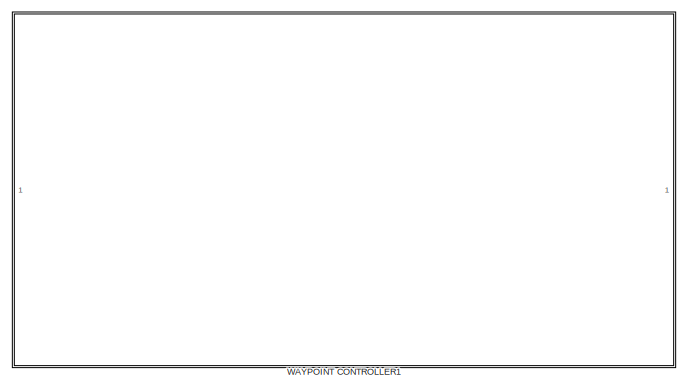
[diagram: root canvas - part 1/4, top center region]
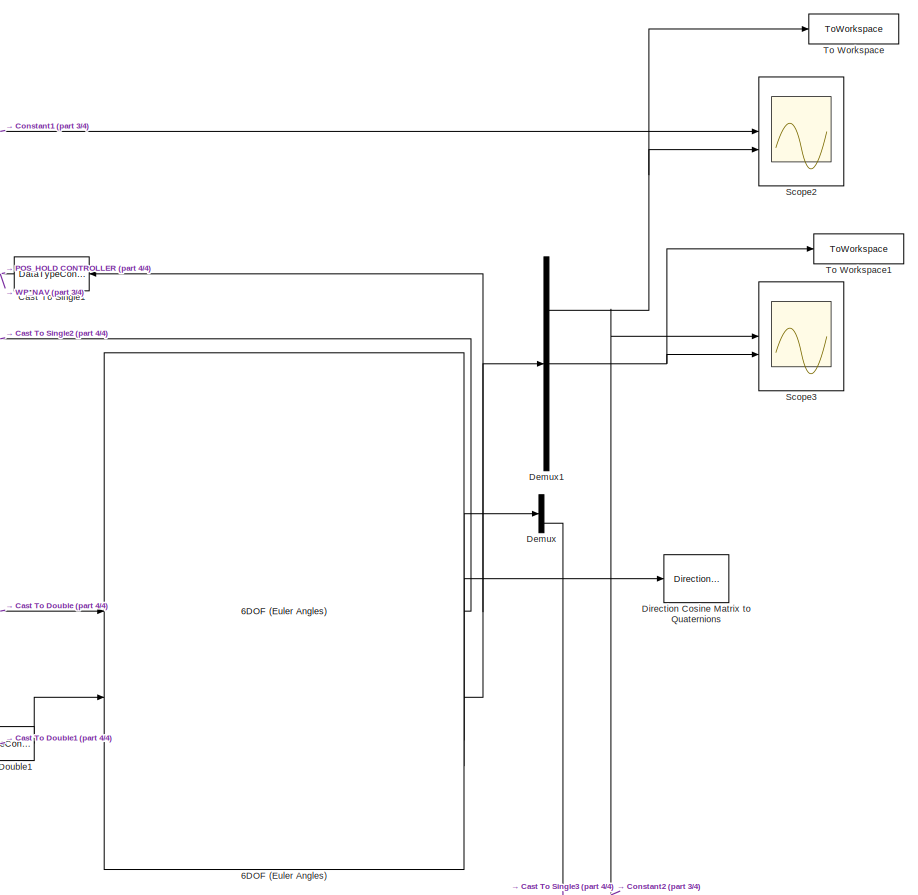
[diagram: root canvas - part 2/4, bottom right region]
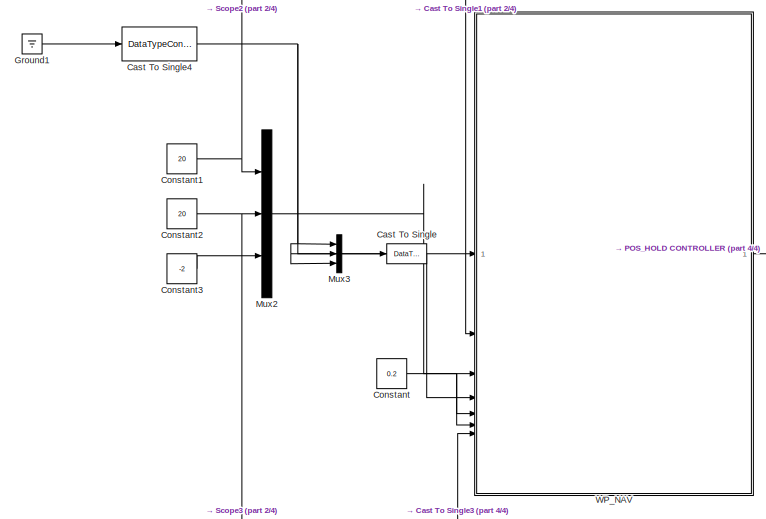
[diagram: root canvas - part 3/4, bottom left region]
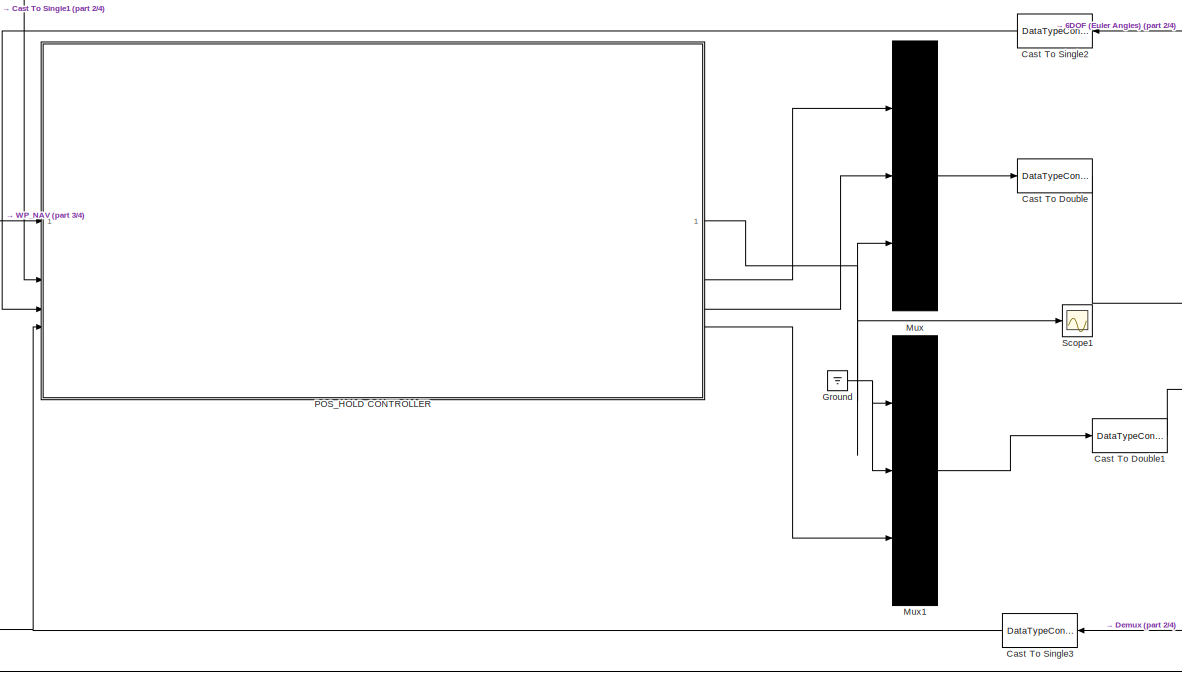
[diagram: root canvas - part 4/4, bottom center region]
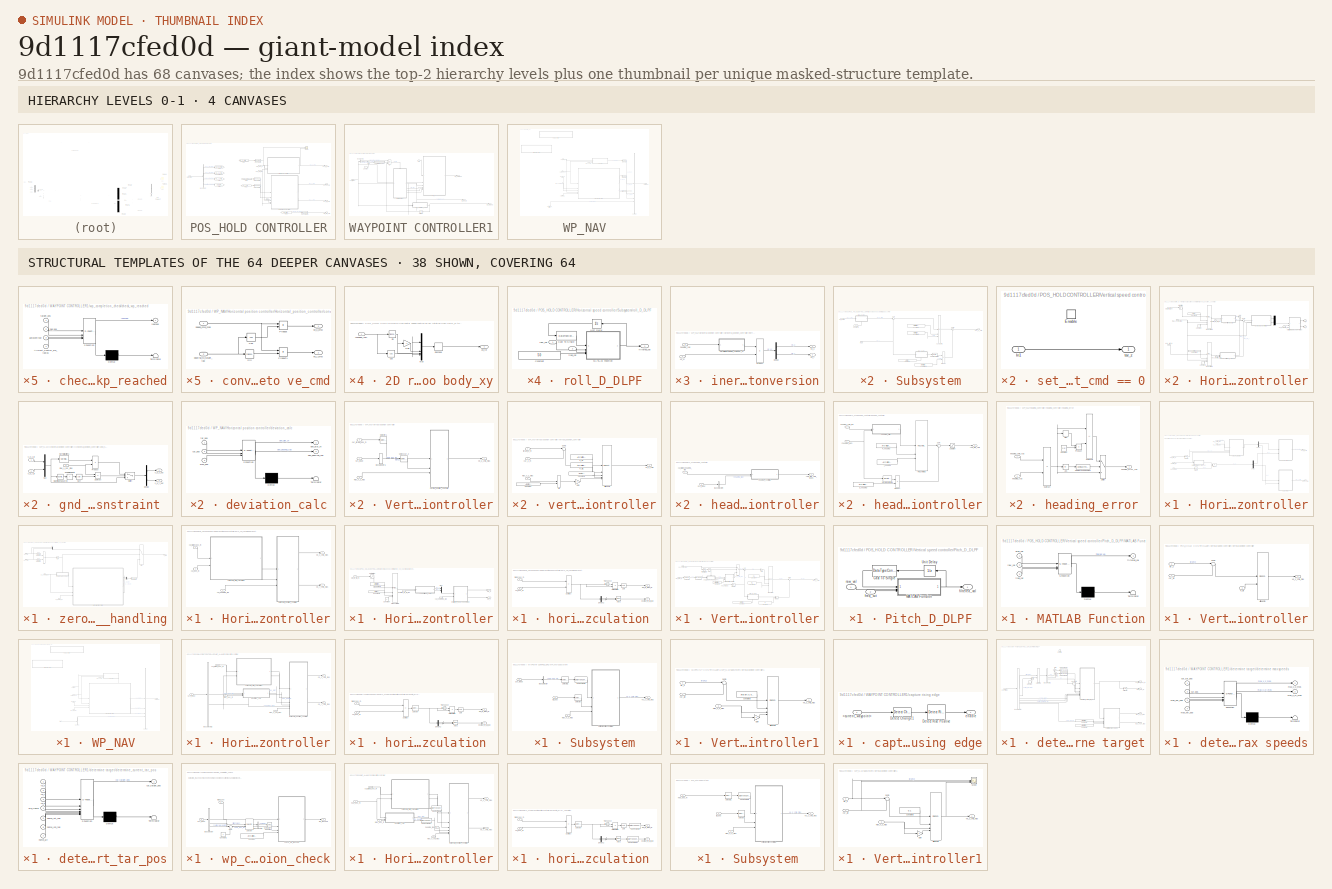
[diagram: thumbnail index - top-2 hierarchy levels (4 canvases) + 38 structural-template representatives of the remaining 64 canvases]
MODEL slx_9d1117cfed0d
KIND model
CONFIG AbsTol = auto
CONFIG EnableMultiTasking = off
CONFIG FixedStep = 0.0001
CONFIG MaxStep = auto
CONFIG MinStep = auto
CONFIG RelTol = 1e-9
CONFIG SampleTimeConstraint = Unconstrained
CONFIG SolverName = VariableStepAuto
CONFIG StartTime = 0.0
CONFIG StopTime = 200
BLOCK [Reference] 6DOF (Euler Angles)  REF=shared6dof/6DOF (Euler Angles)
  SourceBlock = shared6dof/6DOF (Euler Angles)
  SourceType = 6DOF EoM (Body Axis)
BLOCK [DataTypeConversion] Cast To Double
  OutDataTypeStr = double
  RndMeth = Floor
  SaturateOnIntegerOverflow = off
BLOCK [DataTypeConversion] Cast To Double1
  OutDataTypeStr = double
  RndMeth = Floor
  SaturateOnIntegerOverflow = off
BLOCK [DataTypeConversion] Cast To Single
  OutDataTypeStr = single
  RndMeth = Floor
  SaturateOnIntegerOverflow = off
BLOCK [DataTypeConversion] Cast To Single1
  NameLocation = top
  OutDataTypeStr = single
  RndMeth = Floor
  SaturateOnIntegerOverflow = off
BLOCK [DataTypeConversion] Cast To Single2
  NameLocation = top
  OutDataTypeStr = single
  RndMeth = Floor
  SaturateOnIntegerOverflow = off
BLOCK [DataTypeConversion] Cast To Single3
  NameLocation = top
  OutDataTypeStr = single
  RndMeth = Floor
  SaturateOnIntegerOverflow = off
BLOCK [DataTypeConversion] Cast To Single4
  OutDataTypeStr = single
  RndMeth = Floor
  SaturateOnIntegerOverflow = off
BLOCK [Constant] Constant
  OutDataTypeStr = single
  Value = 0.2
BLOCK [Constant] Constant1
  OutDataTypeStr = single
  Value = 20
BLOCK [Constant] Constant2
  OutDataTypeStr = single
  Value = 20
BLOCK [Constant] Constant3
  OutDataTypeStr = single
  Value = -2
BLOCK [Demux] Demux
  Outputs = 3
BLOCK [Demux] Demux1
  Outputs = 3
BLOCK [Reference] Direction Cosine Matrix to Quaternions  REF=sharedtransform/Direction Cosine Matrix 
to Quaternions
  SourceBlock = sharedtransform/Direction Cosine Matrix \nto Quaternions
  SourceType = DCM2Quaternion
BLOCK [Ground] Ground
BLOCK [Ground] Ground1
BLOCK [Mux] Mux
  DisplayOption = bar
  Inputs = 3
BLOCK [Mux] Mux1
  DisplayOption = bar
  Inputs = 3
BLOCK [Mux] Mux2
  DisplayOption = bar
  Inputs = 3
BLOCK [Mux] Mux3
  DisplayOption = bar
  Inputs = 3
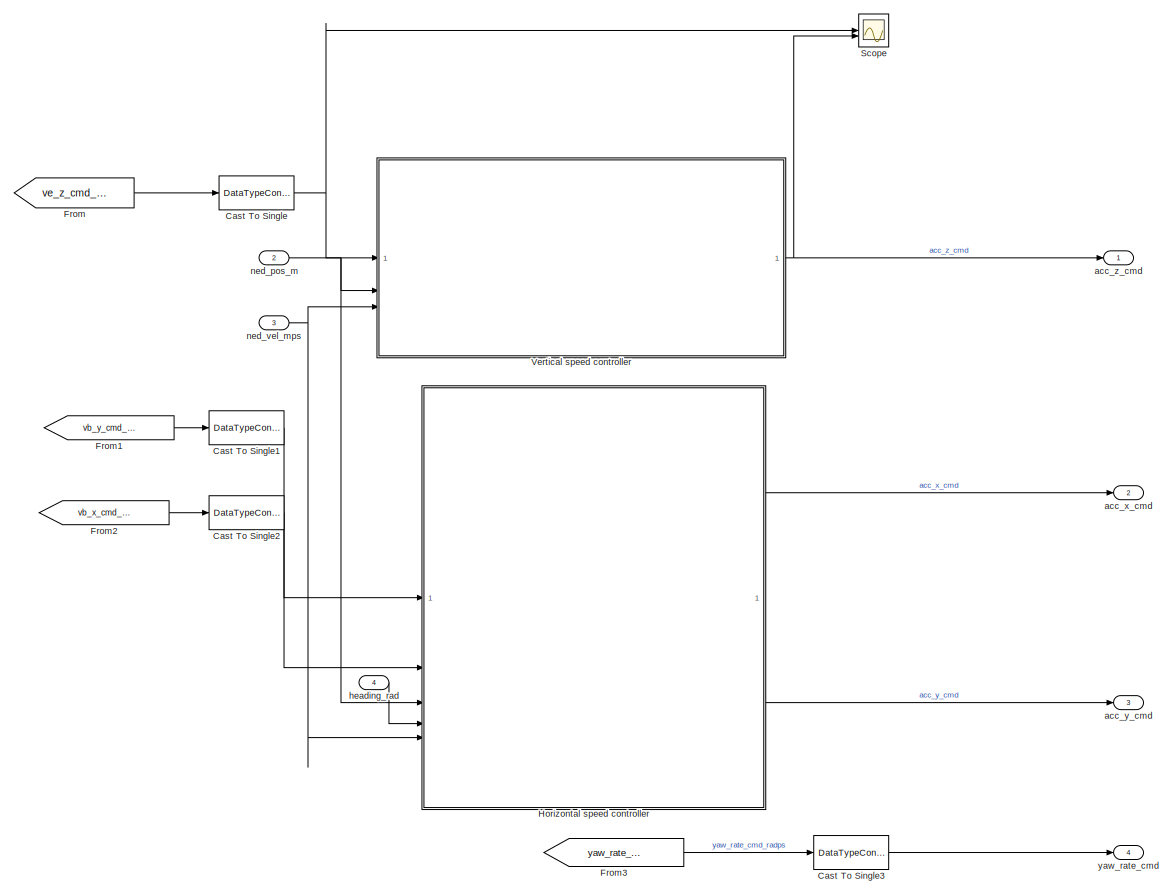
[diagram: POS_HOLD CONTROLLER - part 1/2, right side, full height]
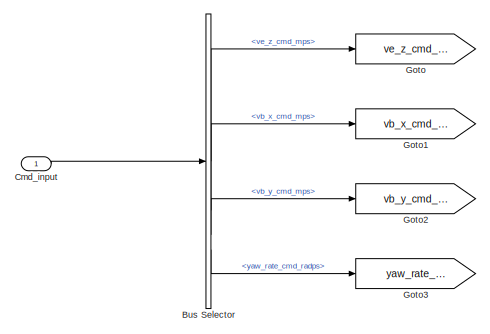
[diagram: POS_HOLD CONTROLLER - part 2/2, middle left region]
BLOCK [SubSystem] POS_HOLD CONTROLLER
BLOCK [BusSelector] POS_HOLD CONTROLLER/Bus Selector
  OutputSignals = ve_z_cmd_mps,vb_x_cmd_mps,vb_y_cmd_mps,yaw_rate_cmd_radps
BLOCK [DataTypeConversion] POS_HOLD CONTROLLER/Cast To Single
  OutDataTypeStr = single
  RndMeth = Floor
  SaturateOnIntegerOverflow = off
BLOCK [DataTypeConversion] POS_HOLD CONTROLLER/Cast To Single1
  OutDataTypeStr = single
  RndMeth = Floor
  SaturateOnIntegerOverflow = off
BLOCK [DataTypeConversion] POS_HOLD CONTROLLER/Cast To Single2
  OutDataTypeStr = single
  RndMeth = Floor
  SaturateOnIntegerOverflow = off
BLOCK [DataTypeConversion] POS_HOLD CONTROLLER/Cast To Single3
  OutDataTypeStr = single
  RndMeth = Floor
  SaturateOnIntegerOverflow = off
BLOCK [Inport] POS_HOLD CONTROLLER/Cmd_input
BLOCK [From] POS_HOLD CONTROLLER/From
  GotoTag = ve_z_cmd_mps
BLOCK [From] POS_HOLD CONTROLLER/From1
  GotoTag = vb_y_cmd_mps
BLOCK [From] POS_HOLD CONTROLLER/From2
  GotoTag = vb_x_cmd_mps
BLOCK [From] POS_HOLD CONTROLLER/From3
  GotoTag = yaw_rate_cmd_radps
BLOCK [Goto] POS_HOLD CONTROLLER/Goto
  GotoTag = ve_z_cmd_mps
BLOCK [Goto] POS_HOLD CONTROLLER/Goto1
  GotoTag = vb_x_cmd_mps
BLOCK [Goto] POS_HOLD CONTROLLER/Goto2
  GotoTag = vb_y_cmd_mps
BLOCK [Goto] POS_HOLD CONTROLLER/Goto3
  GotoTag = yaw_rate_cmd_radps
BLOCK [SubSystem] POS_HOLD CONTROLLER/Horizontal speed controller
BLOCK [SubSystem] POS_HOLD CONTROLLER/Horizontal speed controller/2D rotation from NED_xy to body_xy
BLOCK [Outport] POS_HOLD CONTROLLER/Horizontal speed controller/2D rotation from NED_xy to body_xy/2D_rot
BLOCK [Inport] POS_HOLD CONTROLLER/Horizontal speed controller/2D rotation from NED_xy to body_xy/<heading_rad>
BLOCK [Trigonometry] POS_HOLD CONTROLLER/Horizontal speed controller/2D rotation from NED_xy to body_xy/Cos
  Operator = cos
  OutputSignalType = real
BLOCK [Gain] POS_HOLD CONTROLLER/Horizontal speed controller/2D rotation from NED_xy to body_xy/Gain
  Gain = -1
BLOCK [Mux] POS_HOLD CONTROLLER/Horizontal speed controller/2D rotation from NED_xy to body_xy/Mux
  DisplayOption = bar
BLOCK [Reshape] POS_HOLD CONTROLLER/Horizontal speed controller/2D rotation from NED_xy to body_xy/Reshape
  OutputDimensionality = Customize
  OutputDimensions = [2,2]
BLOCK [Trigonometry] POS_HOLD CONTROLLER/Horizontal speed controller/2D rotation from NED_xy to body_xy/Sin
  OutputSignalType = real
BLOCK [Demux] POS_HOLD CONTROLLER/Horizontal speed controller/Demux
  Outputs = 2
BLOCK [Demux] POS_HOLD CONTROLLER/Horizontal speed controller/Demux2
  Outputs = 2
BLOCK [Product] POS_HOLD CONTROLLER/Horizontal speed controller/Product
  Multiplication = Matrix(*)
BLOCK [Selector] POS_HOLD CONTROLLER/Horizontal speed controller/Selector
  IndexOptions = Index vector (dialog)
  Indices = [1 2]
  InputPortWidth = 3
  OutputSizes = 1
BLOCK [Selector] POS_HOLD CONTROLLER/Horizontal speed controller/Selector1
  IndexOptions = Index vector (dialog)
  Indices = [1 2]
  InputPortWidth = 3
  OutputSizes = 1
BLOCK [SubSystem] POS_HOLD CONTROLLER/Horizontal speed controller/Subsystem
BLOCK [Reference] POS_HOLD CONTROLLER/Horizontal speed controller/Subsystem/Acc_x_PID  REF=slpidlib/PID Controller
  SourceBlock = slpidlib/PID Controller
  SourceType = PID 1dof
BLOCK [Constant] POS_HOLD CONTROLLER/Horizontal speed controller/Subsystem/Constant
  OutDataTypeStr = single
  Value = Aircraft.Control.D_hor_vel_FLTR_CTOFF
BLOCK [Constant] POS_HOLD CONTROLLER/Horizontal speed controller/Subsystem/Constant1
  OutDataTypeStr = single
  Value = 40
BLOCK [Constant] POS_HOLD CONTROLLER/Horizontal speed controller/Subsystem/Constant2
  OutDataTypeStr = single
  Value = Aircraft.Control.P_v_hor
BLOCK [Constant] POS_HOLD CONTROLLER/Horizontal speed controller/Subsystem/Constant3
  OutDataTypeStr = single
  Value = Aircraft.Control.I_v_hor
BLOCK [Constant] POS_HOLD CONTROLLER/Horizontal speed controller/Subsystem/Constant4
  OutDataTypeStr = single
  Value = Aircraft.Control.D_v_hor
BLOCK [Reference] POS_HOLD CONTROLLER/Horizontal speed controller/Subsystem/Discrete Derivative  REF=simulink/Discrete/Discrete Derivative
  SourceBlock = simulink/Discrete/Discrete Derivative
  SourceType = Discrete Derivative
BLOCK [Product] POS_HOLD CONTROLLER/Horizontal speed controller/Subsystem/Product
BLOCK [Sum] POS_HOLD CONTROLLER/Horizontal speed controller/Subsystem/Sum
  Inputs = |+-
BLOCK [Sum] POS_HOLD CONTROLLER/Horizontal speed controller/Subsystem/Sum1
  Inputs = |+-
BLOCK [Outport] POS_HOLD CONTROLLER/Horizontal speed controller/Subsystem/acc_x_cmd
BLOCK [SubSystem] POS_HOLD CONTROLLER/Horizontal speed controller/Subsystem/roll_D_DLPF
  NameLocation = top
  PortSchema = {"entries":[{"content":{"sides":[{"content":{"connectorIds":["In1"]},"type":"ConnectorPlacement.EquallySpacedRectSide","uuid":"20236834-aeb3-4c5b-bb2e-f84447e752b5"},{"content":{"connectorIds":["Out1"],"side":"RIGHT"},"type":"ConnectorPlacement.EquallySpacedRectSide","uuid":"d668f9a1-a3df-4207-8bf1-99fb838e59b2"},{"content":{"connectorIds":[],"side":"TOP"},"type":"ConnectorPlacement.EquallySpacedR...<+389ch>  <repeated x5 — deduplicated; at blocks: roll_D_DLPF, roll_D_DLPF1, Pitch_D_DLPF>
BLOCK [DataTypeConversion] POS_HOLD CONTROLLER/Horizontal speed controller/Subsystem/roll_D_DLPF/Cast To Single
  OutDataTypeStr = single
  RndMeth = Floor
  SaturateOnIntegerOverflow = off
BLOCK [Constant] POS_HOLD CONTROLLER/Horizontal speed controller/Subsystem/roll_D_DLPF/Constant
  OutDataTypeStr = single
  Value = 50
BLOCK [SubSystem] POS_HOLD CONTROLLER/Horizontal speed controller/Subsystem/roll_D_DLPF/MATLAB Function
  ErrorFcn = Stateflow.Translate.translate
  PermitHierarchicalResolution = ExplicitOnly
  SFBlockType = MATLAB Function
  TreatAsAtomicUnit = on
BLOCK [Demux] POS_HOLD CONTROLLER/Horizontal speed controller/Subsystem/roll_D_DLPF/MATLAB Function/ Demux 
  Outputs = 1
BLOCK [S-Function] POS_HOLD CONTROLLER/Horizontal speed controller/Subsystem/roll_D_DLPF/MATLAB Function/ SFunction 
  EnableBusSupport = on
  FunctionName = sf_sfun
  PortCounts = [4 2]
  SFcnIsStateOwnerBlock = off
  SFunctionDeploymentMode = off
  Tag = Stateflow S-Function 13
BLOCK [Terminator] POS_HOLD CONTROLLER/Horizontal speed controller/Subsystem/roll_D_DLPF/MATLAB Function/ Terminator 
BLOCK [Outport] POS_HOLD CONTROLLER/Horizontal speed controller/Subsystem/roll_D_DLPF/MATLAB Function/filtered_val
BLOCK [Inport] POS_HOLD CONTROLLER/Horizontal speed controller/Subsystem/roll_D_DLPF/MATLAB Function/freq_cut
  Port = 3
BLOCK [Inport] POS_HOLD CONTROLLER/Horizontal speed controller/Subsystem/roll_D_DLPF/MATLAB Function/prev_val
BLOCK [Inport] POS_HOLD CONTROLLER/Horizontal speed controller/Subsystem/roll_D_DLPF/MATLAB Function/raw_val
  Port = 2
BLOCK [Inport] POS_HOLD CONTROLLER/Horizontal speed controller/Subsystem/roll_D_DLPF/MATLAB Function/samp_freq
  Port = 4
BLOCK [UnitDelay] POS_HOLD CONTROLLER/Horizontal speed controller/Subsystem/roll_D_DLPF/Unit Delay
  HasFrameUpgradeWarning = on
  NameLocation = top
  SampleTime = -1
BLOCK [Outport] POS_HOLD CONTROLLER/Horizontal speed controller/Subsystem/roll_D_DLPF/filtered_val
BLOCK [Inport] POS_HOLD CONTROLLER/Horizontal speed controller/Subsystem/roll_D_DLPF/freq_cut
  Port = 2
BLOCK [Inport] POS_HOLD CONTROLLER/Horizontal speed controller/Subsystem/roll_D_DLPF/raw_val
BLOCK [SubSystem] POS_HOLD CONTROLLER/Horizontal speed controller/Subsystem/roll_D_DLPF1
  NameLocation = top
BLOCK [DataTypeConversion] POS_HOLD CONTROLLER/Horizontal speed controller/Subsystem/roll_D_DLPF1/Cast To Single
  OutDataTypeStr = single
  RndMeth = Floor
  SaturateOnIntegerOverflow = off
BLOCK [Constant] POS_HOLD CONTROLLER/Horizontal speed controller/Subsystem/roll_D_DLPF1/Constant
  OutDataTypeStr = single
  Value = 50
BLOCK [SubSystem] POS_HOLD CONTROLLER/Horizontal speed controller/Subsystem/roll_D_DLPF1/MATLAB Function
  ErrorFcn = Stateflow.Translate.translate
  PermitHierarchicalResolution = ExplicitOnly
  SFBlockType = MATLAB Function
  TreatAsAtomicUnit = on
BLOCK [Demux] POS_HOLD CONTROLLER/Horizontal speed controller/Subsystem/roll_D_DLPF1/MATLAB Function/ Demux 
  Outputs = 1
BLOCK [S-Function] POS_HOLD CONTROLLER/Horizontal speed controller/Subsystem/roll_D_DLPF1/MATLAB Function/ SFunction 
  EnableBusSupport = on
  FunctionName = sf_sfun
  PortCounts = [4 2]
  SFcnIsStateOwnerBlock = off
  SFunctionDeploymentMode = off
  Tag = Stateflow S-Function 16
BLOCK [Terminator] POS_HOLD CONTROLLER/Horizontal speed controller/Subsystem/roll_D_DLPF1/MATLAB Function/ Terminator 
BLOCK [Outport] POS_HOLD CONTROLLER/Horizontal speed controller/Subsystem/roll_D_DLPF1/MATLAB Function/filtered_val
BLOCK [Inport] POS_HOLD CONTROLLER/Horizontal speed controller/Subsystem/roll_D_DLPF1/MATLAB Function/freq_cut
  Port = 3
BLOCK [Inport] POS_HOLD CONTROLLER/Horizontal speed controller/Subsystem/roll_D_DLPF1/MATLAB Function/prev_val
BLOCK [Inport] POS_HOLD CONTROLLER/Horizontal speed controller/Subsystem/roll_D_DLPF1/MATLAB Function/raw_val
  Port = 2
BLOCK [Inport] POS_HOLD CONTROLLER/Horizontal speed controller/Subsystem/roll_D_DLPF1/MATLAB Function/samp_freq
  Port = 4
BLOCK [UnitDelay] POS_HOLD CONTROLLER/Horizontal speed controller/Subsystem/roll_D_DLPF1/Unit Delay
  HasFrameUpgradeWarning = on
  NameLocation = top
  SampleTime = -1
BLOCK [Outport] POS_HOLD CONTROLLER/Horizontal speed controller/Subsystem/roll_D_DLPF1/filtered_val
BLOCK [Inport] POS_HOLD CONTROLLER/Horizontal speed controller/Subsystem/roll_D_DLPF1/freq_cut
  Port = 2
BLOCK [Inport] POS_HOLD CONTROLLER/Horizontal speed controller/Subsystem/roll_D_DLPF1/raw_val
BLOCK [Inport] POS_HOLD CONTROLLER/Horizontal speed controller/Subsystem/vb_x
  Port = 2
BLOCK [Inport] POS_HOLD CONTROLLER/Horizontal speed controller/Subsystem/vb_x cmd
BLOCK [SubSystem] POS_HOLD CONTROLLER/Horizontal speed controller/Subsystem1
BLOCK [Reference] POS_HOLD CONTROLLER/Horizontal speed controller/Subsystem1/Acc Y Controller  REF=slpidlib/PID Controller
  SourceBlock = slpidlib/PID Controller
  SourceType = PID 1dof
BLOCK [Constant] POS_HOLD CONTROLLER/Horizontal speed controller/Subsystem1/Constant
  OutDataTypeStr = single
  Value = Aircraft.Control.D_hor_vel_FLTR_CTOFF
BLOCK [Constant] POS_HOLD CONTROLLER/Horizontal speed controller/Subsystem1/Constant1
  OutDataTypeStr = single
  Value = 40
BLOCK [Constant] POS_HOLD CONTROLLER/Horizontal speed controller/Subsystem1/Constant2
  OutDataTypeStr = single
  Value = Aircraft.Control.P_v_hor
BLOCK [Constant] POS_HOLD CONTROLLER/Horizontal speed controller/Subsystem1/Constant3
  OutDataTypeStr = single
  Value = Aircraft.Control.I_v_hor
BLOCK [Constant] POS_HOLD CONTROLLER/Horizontal speed controller/Subsystem1/Constant5
  OutDataTypeStr = single
  Value = Aircraft.Control.D_v_hor
BLOCK [Reference] POS_HOLD CONTROLLER/Horizontal speed controller/Subsystem1/Discrete Derivative  REF=simulink/Discrete/Discrete Derivative
  SourceBlock = simulink/Discrete/Discrete Derivative
  SourceType = Discrete Derivative
BLOCK [Product] POS_HOLD CONTROLLER/Horizontal speed controller/Subsystem1/Product
BLOCK [Sum] POS_HOLD CONTROLLER/Horizontal speed controller/Subsystem1/Sum
  Inputs = |+-
BLOCK [Sum] POS_HOLD CONTROLLER/Horizontal speed controller/Subsystem1/Sum1
  Inputs = |+-
BLOCK [Outport] POS_HOLD CONTROLLER/Horizontal speed controller/Subsystem1/acc_y_cmd
BLOCK [SubSystem] POS_HOLD CONTROLLER/Horizontal speed controller/Subsystem1/roll_D_DLPF
  NameLocation = top
BLOCK [DataTypeConversion] POS_HOLD CONTROLLER/Horizontal speed controller/Subsystem1/roll_D_DLPF/Cast To Single
  OutDataTypeStr = single
  RndMeth = Floor
  SaturateOnIntegerOverflow = off
BLOCK [Constant] POS_HOLD CONTROLLER/Horizontal speed controller/Subsystem1/roll_D_DLPF/Constant
  OutDataTypeStr = single
  Value = 50
BLOCK [SubSystem] POS_HOLD CONTROLLER/Horizontal speed controller/Subsystem1/roll_D_DLPF/MATLAB Function
  ErrorFcn = Stateflow.Translate.translate
  PermitHierarchicalResolution = ExplicitOnly
  SFBlockType = MATLAB Function
  TreatAsAtomicUnit = on
BLOCK [Demux] POS_HOLD CONTROLLER/Horizontal speed controller/Subsystem1/roll_D_DLPF/MATLAB Function/ Demux 
  Outputs = 1
BLOCK [S-Function] POS_HOLD CONTROLLER/Horizontal speed controller/Subsystem1/roll_D_DLPF/MATLAB Function/ SFunction 
  EnableBusSupport = on
  FunctionName = sf_sfun
  PortCounts = [4 2]
  SFcnIsStateOwnerBlock = off
  SFunctionDeploymentMode = off
  Tag = Stateflow S-Function 14
BLOCK [Terminator] POS_HOLD CONTROLLER/Horizontal speed controller/Subsystem1/roll_D_DLPF/MATLAB Function/ Terminator 
BLOCK [Outport] POS_HOLD CONTROLLER/Horizontal speed controller/Subsystem1/roll_D_DLPF/MATLAB Function/filtered_val
BLOCK [Inport] POS_HOLD CONTROLLER/Horizontal speed controller/Subsystem1/roll_D_DLPF/MATLAB Function/freq_cut
  Port = 3
BLOCK [Inport] POS_HOLD CONTROLLER/Horizontal speed controller/Subsystem1/roll_D_DLPF/MATLAB Function/prev_val
BLOCK [Inport] POS_HOLD CONTROLLER/Horizontal speed controller/Subsystem1/roll_D_DLPF/MATLAB Function/raw_val
  Port = 2
BLOCK [Inport] POS_HOLD CONTROLLER/Horizontal speed controller/Subsystem1/roll_D_DLPF/MATLAB Function/samp_freq
  Port = 4
BLOCK [UnitDelay] POS_HOLD CONTROLLER/Horizontal speed controller/Subsystem1/roll_D_DLPF/Unit Delay
  HasFrameUpgradeWarning = on
  NameLocation = top
  SampleTime = -1
BLOCK [Outport] POS_HOLD CONTROLLER/Horizontal speed controller/Subsystem1/roll_D_DLPF/filtered_val
BLOCK [Inport] POS_HOLD CONTROLLER/Horizontal speed controller/Subsystem1/roll_D_DLPF/freq_cut
  Port = 2
BLOCK [Inport] POS_HOLD CONTROLLER/Horizontal speed controller/Subsystem1/roll_D_DLPF/raw_val
BLOCK [SubSystem] POS_HOLD CONTROLLER/Horizontal speed controller/Subsystem1/roll_D_DLPF1
  NameLocation = top
BLOCK [DataTypeConversion] POS_HOLD CONTROLLER/Horizontal speed controller/Subsystem1/roll_D_DLPF1/Cast To Single
  OutDataTypeStr = single
  RndMeth = Floor
  SaturateOnIntegerOverflow = off
BLOCK [Constant] POS_HOLD CONTROLLER/Horizontal speed controller/Subsystem1/roll_D_DLPF1/Constant
  OutDataTypeStr = single
  Value = 50
BLOCK [SubSystem] POS_HOLD CONTROLLER/Horizontal speed controller/Subsystem1/roll_D_DLPF1/MATLAB Function
  ErrorFcn = Stateflow.Translate.translate
  PermitHierarchicalResolution = ExplicitOnly
  SFBlockType = MATLAB Function
  TreatAsAtomicUnit = on
BLOCK [Demux] POS_HOLD CONTROLLER/Horizontal speed controller/Subsystem1/roll_D_DLPF1/MATLAB Function/ Demux 
  Outputs = 1
BLOCK [S-Function] POS_HOLD CONTROLLER/Horizontal speed controller/Subsystem1/roll_D_DLPF1/MATLAB Function/ SFunction 
  EnableBusSupport = on
  FunctionName = sf_sfun
  PortCounts = [4 2]
  SFcnIsStateOwnerBlock = off
  SFunctionDeploymentMode = off
  Tag = Stateflow S-Function 17
BLOCK [Terminator] POS_HOLD CONTROLLER/Horizontal speed controller/Subsystem1/roll_D_DLPF1/MATLAB Function/ Terminator 
BLOCK [Outport] POS_HOLD CONTROLLER/Horizontal speed controller/Subsystem1/roll_D_DLPF1/MATLAB Function/filtered_val
BLOCK [Inport] POS_HOLD CONTROLLER/Horizontal speed controller/Subsystem1/roll_D_DLPF1/MATLAB Function/freq_cut
  Port = 3
BLOCK [Inport] POS_HOLD CONTROLLER/Horizontal speed controller/Subsystem1/roll_D_DLPF1/MATLAB Function/prev_val
BLOCK [Inport] POS_HOLD CONTROLLER/Horizontal speed controller/Subsystem1/roll_D_DLPF1/MATLAB Function/raw_val
  Port = 2
BLOCK [Inport] POS_HOLD CONTROLLER/Horizontal speed controller/Subsystem1/roll_D_DLPF1/MATLAB Function/samp_freq
  Port = 4
BLOCK [UnitDelay] POS_HOLD CONTROLLER/Horizontal speed controller/Subsystem1/roll_D_DLPF1/Unit Delay
  HasFrameUpgradeWarning = on
  NameLocation = top
  SampleTime = -1
BLOCK [Outport] POS_HOLD CONTROLLER/Horizontal speed controller/Subsystem1/roll_D_DLPF1/filtered_val
BLOCK [Inport] POS_HOLD CONTROLLER/Horizontal speed controller/Subsystem1/roll_D_DLPF1/freq_cut
  Port = 2
BLOCK [Inport] POS_HOLD CONTROLLER/Horizontal speed controller/Subsystem1/roll_D_DLPF1/raw_val
BLOCK [Inport] POS_HOLD CONTROLLER/Horizontal speed controller/Subsystem1/vb_y
  Port = 2
BLOCK [Inport] POS_HOLD CONTROLLER/Horizontal speed controller/Subsystem1/vb_y cmd
BLOCK [Outport] POS_HOLD CONTROLLER/Horizontal speed controller/acc_x_cmd
BLOCK [Outport] POS_HOLD CONTROLLER/Horizontal speed controller/acc_y_cmd
  Port = 2
BLOCK [Inport] POS_HOLD CONTROLLER/Horizontal speed controller/heading_rad
  Port = 4
BLOCK [Inport] POS_HOLD CONTROLLER/Horizontal speed controller/ned_pos_m
  Port = 3
BLOCK [Inport] POS_HOLD CONTROLLER/Horizontal speed controller/ned_vel_mps
  Port = 5
BLOCK [Inport] POS_HOLD CONTROLLER/Horizontal speed controller/vb_x_cmd_mps
  Port = 2
BLOCK [Inport] POS_HOLD CONTROLLER/Horizontal speed controller/vb_y_cmd_mps
BLOCK [SubSystem] POS_HOLD CONTROLLER/Horizontal speed controller/zero_vel_handling
BLOCK [Logic] POS_HOLD CONTROLLER/Horizontal speed controller/zero_vel_handling/AND
  AllPortsSameDT = off
  IconShape = distinctive
  OutDataTypeStr = boolean
BLOCK [DataTypeConversion] POS_HOLD CONTROLLER/Horizontal speed controller/zero_vel_handling/Cast To Single
  OutDataTypeStr = single
  RndMeth = Floor
  SaturateOnIntegerOverflow = off
BLOCK [Reference] POS_HOLD CONTROLLER/Horizontal speed controller/zero_vel_handling/Compare To Constant  REF=simulink/Logic and Bit
Operations/Compare
To Constant
  SourceBlock = simulink/Logic and Bit\nOperations/Compare\nTo Constant
  SourceType = Compare To Constant
BLOCK [Reference] POS_HOLD CONTROLLER/Horizontal speed controller/zero_vel_handling/Compare To Constant1  REF=simulink/Logic and Bit
Operations/Compare
To Constant
  SourceBlock = simulink/Logic and Bit\nOperations/Compare\nTo Constant
  SourceType = Compare To Constant
BLOCK [SubSystem] POS_HOLD CONTROLLER/Horizontal speed controller/zero_vel_handling/Horizontal position controller
BLOCK [SubSystem] POS_HOLD CONTROLLER/Horizontal speed controller/zero_vel_handling/Horizontal position controller/Horizontal_position_controller
BLOCK [Constant] POS_HOLD CONTROLLER/Horizontal speed controller/zero_vel_handling/Horizontal position controller/Horizontal_position_controller/Constant
  OutDataTypeStr = single
  Value = 0
BLOCK [Constant] POS_HOLD CONTROLLER/Horizontal speed controller/zero_vel_handling/Horizontal position controller/Horizontal_position_controller/Constant1
  OutDataTypeStr = single
  Value = Aircraft.Control.v_hor_max
BLOCK [Constant] POS_HOLD CONTROLLER/Horizontal speed controller/zero_vel_handling/Horizontal position controller/Horizontal_position_controller/Constant2
  OutDataTypeStr = single
  Value = Aircraft.Control.P_xy
BLOCK [Mux] POS_HOLD CONTROLLER/Horizontal speed controller/zero_vel_handling/Horizontal position controller/Horizontal_position_controller/Mux
  DisplayOption = bar
  Inputs = 2
BLOCK [Reference] POS_HOLD CONTROLLER/Horizontal speed controller/zero_vel_handling/Horizontal position controller/Horizontal_position_controller/PID Controller2  REF=slpidlib/PID Controller
  SourceBlock = slpidlib/PID Controller
  SourceType = PID 1dof
BLOCK [Saturate] POS_HOLD CONTROLLER/Horizontal speed controller/zero_vel_handling/Horizontal position controller/Horizontal_position_controller/Saturation
  LowerLimit = 0
  UpperLimit = 1
BLOCK [Inport] POS_HOLD CONTROLLER/Horizontal speed controller/zero_vel_handling/Horizontal position controller/Horizontal_position_controller/bearing_to_tar_rad
  Port = 2
BLOCK [SubSystem] POS_HOLD CONTROLLER/Horizontal speed controller/zero_vel_handling/Horizontal position controller/Horizontal_position_controller/convert to ve_cmd
BLOCK [Trigonometry] POS_HOLD CONTROLLER/Horizontal speed controller/zero_vel_handling/Horizontal position controller/Horizontal_position_controller/convert to ve_cmd/Cos
  Operator = cos
BLOCK [Product] POS_HOLD CONTROLLER/Horizontal speed controller/zero_vel_handling/Horizontal position controller/Horizontal_position_controller/convert to ve_cmd/Product
BLOCK [Product] POS_HOLD CONTROLLER/Horizontal speed controller/zero_vel_handling/Horizontal position controller/Horizontal_position_controller/convert to ve_cmd/Product1
BLOCK [Trigonometry] POS_HOLD CONTROLLER/Horizontal speed controller/zero_vel_handling/Horizontal position controller/Horizontal_position_controller/convert to ve_cmd/Sin
BLOCK [Inport] POS_HOLD CONTROLLER/Horizontal speed controller/zero_vel_handling/Horizontal position controller/Horizontal_position_controller/convert to ve_cmd/bearing_to_target_rad
  Port = 2
BLOCK [Inport] POS_HOLD CONTROLLER/Horizontal speed controller/zero_vel_handling/Horizontal position controller/Horizontal_position_controller/convert to ve_cmd/speed_cmd_mps
BLOCK [Outport] POS_HOLD CONTROLLER/Horizontal speed controller/zero_vel_handling/Horizontal position controller/Horizontal_position_controller/convert to ve_cmd/ve_x_cmd
BLOCK [Outport] POS_HOLD CONTROLLER/Horizontal speed controller/zero_vel_handling/Horizontal position controller/Horizontal_position_controller/convert to ve_cmd/ve_y_cmd
  Port = 2
BLOCK [Inport] POS_HOLD CONTROLLER/Horizontal speed controller/zero_vel_handling/Horizontal position controller/Horizontal_position_controller/cur_heading_rad
  Port = 3
BLOCK [Inport] POS_HOLD CONTROLLER/Horizontal speed controller/zero_vel_handling/Horizontal position controller/Horizontal_position_controller/dist_to_tar_m
BLOCK [SubSystem] POS_HOLD CONTROLLER/Horizontal speed controller/zero_vel_handling/Horizontal position controller/Horizontal_position_controller/inertial_to_body conversion
BLOCK [SubSystem] POS_HOLD CONTROLLER/Horizontal speed controller/zero_vel_handling/Horizontal position controller/Horizontal_position_controller/inertial_to_body conversion/2D rotation from NED_xy to body_xy
BLOCK [Outport] POS_HOLD CONTROLLER/Horizontal speed controller/zero_vel_handling/Horizontal position controller/Horizontal_position_controller/inertial_to_body conversion/2D rotation from NED_xy to body_xy/2D_rot
BLOCK [Inport] POS_HOLD CONTROLLER/Horizontal speed controller/zero_vel_handling/Horizontal position controller/Horizontal_position_controller/inertial_to_body conversion/2D rotation from NED_xy to body_xy/<heading_rad>
BLOCK [Trigonometry] POS_HOLD CONTROLLER/Horizontal speed controller/zero_vel_handling/Horizontal position controller/Horizontal_position_controller/inertial_to_body conversion/2D rotation from NED_xy to body_xy/Cos
  Operator = cos
BLOCK [Gain] POS_HOLD CONTROLLER/Horizontal speed controller/zero_vel_handling/Horizontal position controller/Horizontal_position_controller/inertial_to_body conversion/2D rotation from NED_xy to body_xy/Gain
  Gain = -1
BLOCK [Mux] POS_HOLD CONTROLLER/Horizontal speed controller/zero_vel_handling/Horizontal position controller/Horizontal_position_controller/inertial_to_body conversion/2D rotation from NED_xy to body_xy/Mux
  DisplayOption = bar
BLOCK [Reshape] POS_HOLD CONTROLLER/Horizontal speed controller/zero_vel_handling/Horizontal position controller/Horizontal_position_controller/inertial_to_body conversion/2D rotation from NED_xy to body_xy/Reshape
  OutputDimensionality = Customize
  OutputDimensions = [2,2]
BLOCK [Trigonometry] POS_HOLD CONTROLLER/Horizontal speed controller/zero_vel_handling/Horizontal position controller/Horizontal_position_controller/inertial_to_body conversion/2D rotation from NED_xy to body_xy/Sin
BLOCK [Demux] POS_HOLD CONTROLLER/Horizontal speed controller/zero_vel_handling/Horizontal position controller/Horizontal_position_controller/inertial_to_body conversion/Demux
  Outputs = 2
BLOCK [Product] POS_HOLD CONTROLLER/Horizontal speed controller/zero_vel_handling/Horizontal position controller/Horizontal_position_controller/inertial_to_body conversion/Product
  Multiplication = Matrix(*)
BLOCK [Inport] POS_HOLD CONTROLLER/Horizontal speed controller/zero_vel_handling/Horizontal position controller/Horizontal_position_controller/inertial_to_body conversion/heading_rad
  Port = 2
BLOCK [Outport] POS_HOLD CONTROLLER/Horizontal speed controller/zero_vel_handling/Horizontal position controller/Horizontal_position_controller/inertial_to_body conversion/vb_x
BLOCK [Outport] POS_HOLD CONTROLLER/Horizontal speed controller/zero_vel_handling/Horizontal position controller/Horizontal_position_controller/inertial_to_body conversion/vb_y
  Port = 2
BLOCK [Inport] POS_HOLD CONTROLLER/Horizontal speed controller/zero_vel_handling/Horizontal position controller/Horizontal_position_controller/inertial_to_body conversion/ve_xy
BLOCK [Outport] POS_HOLD CONTROLLER/Horizontal speed controller/zero_vel_handling/Horizontal position controller/Horizontal_position_controller/vb_x
BLOCK [Outport] POS_HOLD CONTROLLER/Horizontal speed controller/zero_vel_handling/Horizontal position controller/Horizontal_position_controller/vb_y
  Port = 2
BLOCK [Inport] POS_HOLD CONTROLLER/Horizontal speed controller/zero_vel_handling/Horizontal position controller/cur_heading_rad
  Port = 3
BLOCK [Inport] POS_HOLD CONTROLLER/Horizontal speed controller/zero_vel_handling/Horizontal position controller/cur_pos_m
  Port = 2
BLOCK [Inport] POS_HOLD CONTROLLER/Horizontal speed controller/zero_vel_handling/Horizontal position controller/cur_target_pos_m
BLOCK [SubSystem] POS_HOLD CONTROLLER/Horizontal speed controller/zero_vel_handling/Horizontal position controller/horizontal_error_calculation 
BLOCK [Trigonometry] POS_HOLD CONTROLLER/Horizontal speed controller/zero_vel_handling/Horizontal position controller/horizontal_error_calculation /Atan2
  Operator = atan2
BLOCK [Demux] POS_HOLD CONTROLLER/Horizontal speed controller/zero_vel_handling/Horizontal position controller/horizontal_error_calculation /Demux2
  Outputs = 2
BLOCK [Product] POS_HOLD CONTROLLER/Horizontal speed controller/zero_vel_handling/Horizontal position controller/horizontal_error_calculation /MatrixMultiply
  Multiplication = Matrix(*)
BLOCK [Sqrt] POS_HOLD CONTROLLER/Horizontal speed controller/zero_vel_handling/Horizontal position controller/horizontal_error_calculation /Sqrt
BLOCK [Sum] POS_HOLD CONTROLLER/Horizontal speed controller/zero_vel_handling/Horizontal position controller/horizontal_error_calculation /Subtract
  IconShape = rectangular
  Inputs = +-
BLOCK [Math] POS_HOLD CONTROLLER/Horizontal speed controller/zero_vel_handling/Horizontal position controller/horizontal_error_calculation /Transpose
  Operator = transpose
BLOCK [Outport] POS_HOLD CONTROLLER/Horizontal speed controller/zero_vel_handling/Horizontal position controller/horizontal_error_calculation /bearing_to_tar_rad
  Port = 2
BLOCK [Inport] POS_HOLD CONTROLLER/Horizontal speed controller/zero_vel_handling/Horizontal position controller/horizontal_error_calculation /cur_pos_m
  Port = 2
BLOCK [Outport] POS_HOLD CONTROLLER/Horizontal speed controller/zero_vel_handling/Horizontal position controller/horizontal_error_calculation /dist_to_target_m
BLOCK [Inport] POS_HOLD CONTROLLER/Horizontal speed controller/zero_vel_handling/Horizontal position controller/horizontal_error_calculation /target_pos_m
BLOCK [Outport] POS_HOLD CONTROLLER/Horizontal speed controller/zero_vel_handling/Horizontal position controller/vb_x_cmd_mps
BLOCK [Outport] POS_HOLD CONTROLLER/Horizontal speed controller/zero_vel_handling/Horizontal position controller/vb_y_cmd_mps
  Port = 2
BLOCK [Mux] POS_HOLD CONTROLLER/Horizontal speed controller/zero_vel_handling/Mux
  DisplayOption = bar
  Inputs = 2
BLOCK [Mux] POS_HOLD CONTROLLER/Horizontal speed controller/zero_vel_handling/Mux1
  DisplayOption = bar
  Inputs = 2
BLOCK [Logic] POS_HOLD CONTROLLER/Horizontal speed controller/zero_vel_handling/NOT
  AllPortsSameDT = off
  IconShape = distinctive
  Operator = NOT
  OutDataTypeStr = boolean
BLOCK [Switch] POS_HOLD CONTROLLER/Horizontal speed controller/zero_vel_handling/Switch
  Criteria = u2 > Threshold
  InputSameDT = off
  SaturateOnIntegerOverflow = off
BLOCK [Inport] POS_HOLD CONTROLLER/Horizontal speed controller/zero_vel_handling/cur_heading_rad
  Port = 4
BLOCK [Inport] POS_HOLD CONTROLLER/Horizontal speed controller/zero_vel_handling/pos_e_feedback
  Port = 3
BLOCK [SubSystem] POS_HOLD CONTROLLER/Horizontal speed controller/zero_vel_handling/set_tar_pos when vel_cmd == 0
  TreatAsAtomicUnit = on
BLOCK [EnablePort] POS_HOLD CONTROLLER/Horizontal speed controller/zero_vel_handling/set_tar_pos when vel_cmd == 0/Enable
BLOCK [Inport] POS_HOLD CONTROLLER/Horizontal speed controller/zero_vel_handling/set_tar_pos when vel_cmd == 0/pos_xy_m
BLOCK [Outport] POS_HOLD CONTROLLER/Horizontal speed controller/zero_vel_handling/set_tar_pos when vel_cmd == 0/target_pos_xy_m
BLOCK [Outport] POS_HOLD CONTROLLER/Horizontal speed controller/zero_vel_handling/v_cmd
BLOCK [Inport] POS_HOLD CONTROLLER/Horizontal speed controller/zero_vel_handling/vb_x cmd
BLOCK [Inport] POS_HOLD CONTROLLER/Horizontal speed controller/zero_vel_handling/vb_y_cmd
  Port = 2
BLOCK [Scope] POS_HOLD CONTROLLER/Scope
  Floating = off
  NumInputPorts = 2
  ScopeSpecificationString = Simulink.scopes.TimeScopeBlockCfg('CurrentConfiguration', extmgr.ConfigurationSet(extmgr.Configuration('Core','General UI',true),extmgr.Configuration('Core','Source UI',true),extmgr.Configuration('Sources','WiredSimulink',true,'DataLoggingVariableName','ScopeData3'),extmgr.Configuration('Visuals','Time Domain',true,'SerializedDisplays',{struct('MinYLimReal','-0.35','MaxYLimReal','1.15','YLabelReal...<+1397ch>
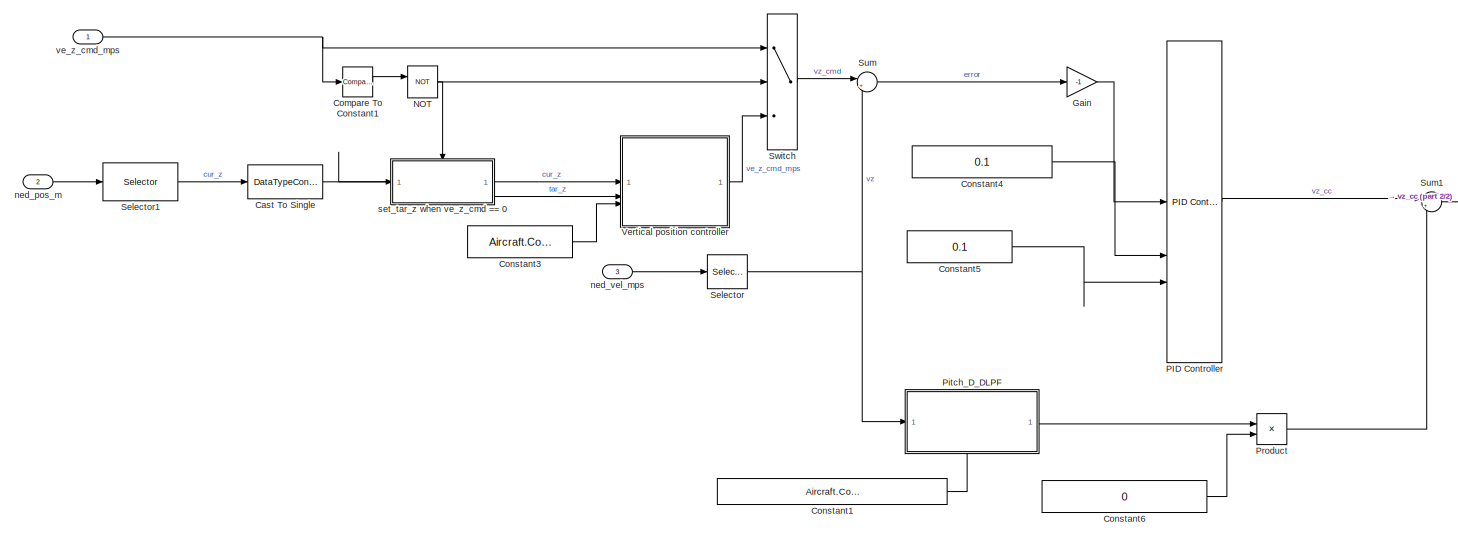
[diagram: POS_HOLD CONTROLLER/Vertical speed controller - part 1/2, most of the canvas]
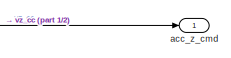
[diagram: POS_HOLD CONTROLLER/Vertical speed controller - part 2/2, middle right region]
BLOCK [SubSystem] POS_HOLD CONTROLLER/Vertical speed controller
BLOCK [DataTypeConversion] POS_HOLD CONTROLLER/Vertical speed controller/Cast To Single
  OutDataTypeStr = single
  RndMeth = Floor
  SaturateOnIntegerOverflow = off
BLOCK [Reference] POS_HOLD CONTROLLER/Vertical speed controller/Compare To Constant1  REF=simulink/Logic and Bit
Operations/Compare
To Constant
  SourceBlock = simulink/Logic and Bit\nOperations/Compare\nTo Constant
  SourceType = Compare To Constant
BLOCK [Constant] POS_HOLD CONTROLLER/Vertical speed controller/Constant1
  OutDataTypeStr = single
  Value = Aircraft.Control.D_ver_vel_FLTR_CTOFF
BLOCK [Constant] POS_HOLD CONTROLLER/Vertical speed controller/Constant3
  OutDataTypeStr = single
  Value = Aircraft.Control.P_alt
BLOCK [Constant] POS_HOLD CONTROLLER/Vertical speed controller/Constant4
  OutDataTypeStr = single
  Value = 0.1
BLOCK [Constant] POS_HOLD CONTROLLER/Vertical speed controller/Constant5
  OutDataTypeStr = single
  Value = 0.1
BLOCK [Constant] POS_HOLD CONTROLLER/Vertical speed controller/Constant6
  OutDataTypeStr = single
  Value = 0
BLOCK [Gain] POS_HOLD CONTROLLER/Vertical speed controller/Gain
  Gain = -1
BLOCK [Logic] POS_HOLD CONTROLLER/Vertical speed controller/NOT
  AllPortsSameDT = off
  IconShape = distinctive
  Operator = NOT
  OutDataTypeStr = boolean
BLOCK [Reference] POS_HOLD CONTROLLER/Vertical speed controller/PID Controller  REF=slpidlib/PID Controller
  SourceBlock = slpidlib/PID Controller
  SourceType = PID 1dof
BLOCK [SubSystem] POS_HOLD CONTROLLER/Vertical speed controller/Pitch_D_DLPF
  NameLocation = top
BLOCK [DataTypeConversion] POS_HOLD CONTROLLER/Vertical speed controller/Pitch_D_DLPF/Cast To Single
  OutDataTypeStr = single
  RndMeth = Floor
  SaturateOnIntegerOverflow = off
BLOCK [SubSystem] POS_HOLD CONTROLLER/Vertical speed controller/Pitch_D_DLPF/MATLAB Function
  ErrorFcn = Stateflow.Translate.translate
  PermitHierarchicalResolution = ExplicitOnly
  SFBlockType = MATLAB Function
  TreatAsAtomicUnit = on
BLOCK [Demux] POS_HOLD CONTROLLER/Vertical speed controller/Pitch_D_DLPF/MATLAB Function/ Demux 
  Outputs = 1
BLOCK [S-Function] POS_HOLD CONTROLLER/Vertical speed controller/Pitch_D_DLPF/MATLAB Function/ SFunction 
  EnableBusSupport = on
  FunctionName = sf_sfun
  PortCounts = [3 2]
  SFcnIsStateOwnerBlock = off
  SFunctionDeploymentMode = off
  Tag = Stateflow S-Function 5
BLOCK [Terminator] POS_HOLD CONTROLLER/Vertical speed controller/Pitch_D_DLPF/MATLAB Function/ Terminator 
BLOCK [Outport] POS_HOLD CONTROLLER/Vertical speed controller/Pitch_D_DLPF/MATLAB Function/filtered_val
BLOCK [Inport] POS_HOLD CONTROLLER/Vertical speed controller/Pitch_D_DLPF/MATLAB Function/freq_cut
  Port = 3
BLOCK [Inport] POS_HOLD CONTROLLER/Vertical speed controller/Pitch_D_DLPF/MATLAB Function/prev_val
BLOCK [Inport] POS_HOLD CONTROLLER/Vertical speed controller/Pitch_D_DLPF/MATLAB Function/raw_val
  Port = 2
BLOCK [UnitDelay] POS_HOLD CONTROLLER/Vertical speed controller/Pitch_D_DLPF/Unit Delay
  HasFrameUpgradeWarning = on
  NameLocation = top
  SampleTime = -1
BLOCK [Outport] POS_HOLD CONTROLLER/Vertical speed controller/Pitch_D_DLPF/filtered_val
BLOCK [Inport] POS_HOLD CONTROLLER/Vertical speed controller/Pitch_D_DLPF/freq_cut
  Port = 2
BLOCK [Inport] POS_HOLD CONTROLLER/Vertical speed controller/Pitch_D_DLPF/raw_val
BLOCK [Product] POS_HOLD CONTROLLER/Vertical speed controller/Product
BLOCK [Selector] POS_HOLD CONTROLLER/Vertical speed controller/Selector
  IndexOptions = Index vector (dialog)
  Indices = [3]
  InputPortWidth = 3
  OutputSizes = 1
BLOCK [Selector] POS_HOLD CONTROLLER/Vertical speed controller/Selector1
  IndexOptions = Index vector (dialog)
  Indices = [3]
  InputPortWidth = 3
  OutputSizes = 1
BLOCK [Sum] POS_HOLD CONTROLLER/Vertical speed controller/Sum
  Inputs = |+-
BLOCK [Sum] POS_HOLD CONTROLLER/Vertical speed controller/Sum1
  Inputs = |+-
BLOCK [Switch] POS_HOLD CONTROLLER/Vertical speed controller/Switch
  Criteria = u2 > Threshold
  InputSameDT = off
  SaturateOnIntegerOverflow = off
BLOCK [SubSystem] POS_HOLD CONTROLLER/Vertical speed controller/Vertical position controller
BLOCK [Reference] POS_HOLD CONTROLLER/Vertical speed controller/Vertical position controller/Altitude PID  REF=slpidlib/PID Controller
  SourceBlock = slpidlib/PID Controller
  SourceType = PID 1dof
BLOCK [Inport] POS_HOLD CONTROLLER/Vertical speed controller/Vertical position controller/P_alt
  Port = 3
BLOCK [Sum] POS_HOLD CONTROLLER/Vertical speed controller/Vertical position controller/Sum3
  Inputs = |+-
BLOCK [Inport] POS_HOLD CONTROLLER/Vertical speed controller/Vertical position controller/cur_alt
BLOCK [Inport] POS_HOLD CONTROLLER/Vertical speed controller/Vertical position controller/tar_z
  Port = 2
BLOCK [Outport] POS_HOLD CONTROLLER/Vertical speed controller/Vertical position controller/ve_z_cmd_mps
BLOCK [Outport] POS_HOLD CONTROLLER/Vertical speed controller/acc_z_cmd
BLOCK [Inport] POS_HOLD CONTROLLER/Vertical speed controller/ned_pos_m
  Port = 2
BLOCK [Inport] POS_HOLD CONTROLLER/Vertical speed controller/ned_vel_mps
  Port = 3
BLOCK [SubSystem] POS_HOLD CONTROLLER/Vertical speed controller/set_tar_z when ve_z_cmd == 0
  TreatAsAtomicUnit = on
BLOCK [EnablePort] POS_HOLD CONTROLLER/Vertical speed controller/set_tar_z when ve_z_cmd == 0/Enable
BLOCK [Inport] POS_HOLD CONTROLLER/Vertical speed controller/set_tar_z when ve_z_cmd == 0/In1
BLOCK [Outport] POS_HOLD CONTROLLER/Vertical speed controller/set_tar_z when ve_z_cmd == 0/tar_z
BLOCK [Inport] POS_HOLD CONTROLLER/Vertical speed controller/ve_z_cmd_mps
BLOCK [Outport] POS_HOLD CONTROLLER/acc_x_cmd
  Port = 2
BLOCK [Outport] POS_HOLD CONTROLLER/acc_y_cmd
  Port = 3
BLOCK [Outport] POS_HOLD CONTROLLER/acc_z_cmd
BLOCK [Inport] POS_HOLD CONTROLLER/heading_rad
  Port = 4
BLOCK [Inport] POS_HOLD CONTROLLER/ned_pos_m
  Port = 2
BLOCK [Inport] POS_HOLD CONTROLLER/ned_vel_mps
  Port = 3
BLOCK [Outport] POS_HOLD CONTROLLER/yaw_rate_cmd
  Port = 4
BLOCK [Scope] Scope1
  Floating = off
  NumInputPorts = 1
  ScopeSpecificationString = Simulink.scopes.TimeScopeBlockCfg('CurrentConfiguration', extmgr.ConfigurationSet(extmgr.Configuration('Core','General UI',true),extmgr.Configuration('Core','Source UI',true),extmgr.Configuration('Sources','WiredSimulink',true,'DataLoggingVariableName','ScopeData2'),extmgr.Configuration('Visuals','Time Domain',true,'SerializedDisplays',{struct('MinYLimReal','-0.11375','MaxYLimReal','1.12375','YLab...<+1418ch>
BLOCK [Scope] Scope2
  Floating = off
  NumInputPorts = 2
  ScopeSpecificationString = Simulink.scopes.TimeScopeBlockCfg('CurrentConfiguration', extmgr.ConfigurationSet(extmgr.Configuration('Core','General UI',true),extmgr.Configuration('Core','Source UI',true),extmgr.Configuration('Sources','WiredSimulink',true,'DataLoggingVariableName','ScopeData4'),extmgr.Configuration('Visuals','Time Domain',true,'SerializedDisplays',{struct('MinYLimReal','-0.25','MaxYLimReal','22.25','YLabelRea...<+1394ch>
BLOCK [Scope] Scope3
  Floating = off
  NumInputPorts = 2
  ScopeSpecificationString = Simulink.scopes.TimeScopeBlockCfg('CurrentConfiguration', extmgr.ConfigurationSet(extmgr.Configuration('Core','General UI',true),extmgr.Configuration('Core','Source UI',true),extmgr.Configuration('Sources','WiredSimulink',true),extmgr.Configuration('Visuals','Time Domain',true,'SerializedDisplays',{struct('MinYLimReal','0.86467','MaxYLimReal','22.21793','YLabelReal','','MinYLimMag','0.86467','MaxY...<+1371ch>
BLOCK [ToWorkspace] To Workspace
  FixptAsFi = on
  MaxDataPoints = inf
  SampleTime = -1
  VariableName = x_traj
BLOCK [ToWorkspace] To Workspace1
  FixptAsFi = on
  MaxDataPoints = inf
  SampleTime = -1
  VariableName = y_traj
BLOCK [SubSystem] WAYPOINT CONTROLLER1
  Commented = on
BLOCK [BusSelector] WAYPOINT CONTROLLER1/Bus Selector1
  OutputSignals = Telemetry Data.waypoints_updated,Telemetry Data.current_waypoint
BLOCK [Constant] WAYPOINT CONTROLLER1/Constant
  OutDataTypeStr = int16
BLOCK [Logic] WAYPOINT CONTROLLER1/OR
  AllPortsSameDT = off
  IconShape = distinctive
  Inputs = 3
  Operator = OR
  OutDataTypeStr = boolean
BLOCK [Sum] WAYPOINT CONTROLLER1/Sum
  Inputs = |++
BLOCK [Inport] WAYPOINT CONTROLLER1/Sys_input
  Port = 2
BLOCK [UnitDelay] WAYPOINT CONTROLLER1/Unit Delay
  HasFrameUpgradeWarning = on
  SampleTime = -1
BLOCK [SubSystem] WAYPOINT CONTROLLER1/WP_NAV
BLOCK [BusCreator] WAYPOINT CONTROLLER1/WP_NAV/Bus Creator4
  DisplayOption = bar
  InheritFromInputs = on
  Inputs = 4
BLOCK [BusSelector] WAYPOINT CONTROLLER1/WP_NAV/Bus Selector
  OutputSignals = yaw_rate_cmd_radps
BLOCK [Inport] WAYPOINT CONTROLLER1/WP_NAV/Cmd
BLOCK [Outport] WAYPOINT CONTROLLER1/WP_NAV/Command out
BLOCK [SubSystem] WAYPOINT CONTROLLER1/WP_NAV/Horizontal position controller
BLOCK [BusSelector] WAYPOINT CONTROLLER1/WP_NAV/Horizontal position controller/Bus Selector2
  OutputSignals = StateEstData.aux_ins.ned_pos_m,StateEstData.bfs_ins.heading_rad
BLOCK [SubSystem] WAYPOINT CONTROLLER1/WP_NAV/Horizontal position controller/Horizontal_position_controller
BLOCK [Constant] WAYPOINT CONTROLLER1/WP_NAV/Horizontal position controller/Horizontal_position_controller/Constant
  OutDataTypeStr = single
  Value = 0
BLOCK [Constant] WAYPOINT CONTROLLER1/WP_NAV/Horizontal position controller/Horizontal_position_controller/Constant2
  OutDataTypeStr = single
  Value = Aircraft.Control.P_wp_dist
BLOCK [Constant] WAYPOINT CONTROLLER1/WP_NAV/Horizontal position controller/Horizontal_position_controller/Constant3
  OutDataTypeStr = single
  Value = 0
BLOCK [Constant] WAYPOINT CONTROLLER1/WP_NAV/Horizontal position controller/Horizontal_position_controller/Constant5
  OutDataTypeStr = single
  Value = Aircraft.Control.P_dev_dist
BLOCK [Mux] WAYPOINT CONTROLLER1/WP_NAV/Horizontal position controller/Horizontal_position_controller/Mux
  DisplayOption = bar
  Inputs = 2
BLOCK [Reference] WAYPOINT CONTROLLER1/WP_NAV/Horizontal position controller/Horizontal_position_controller/PID Controller1  REF=slpidlib/PID Controller
  SourceBlock = slpidlib/PID Controller
  SourceType = PID 1dof
BLOCK [Reference] WAYPOINT CONTROLLER1/WP_NAV/Horizontal position controller/Horizontal_position_controller/PID Controller2  REF=slpidlib/PID Controller
  SourceBlock = slpidlib/PID Controller
  SourceType = PID 1dof
BLOCK [Saturate] WAYPOINT CONTROLLER1/WP_NAV/Horizontal position controller/Horizontal_position_controller/Saturation
  LowerLimit = 0
  UpperLimit = 1
BLOCK [Sum] WAYPOINT CONTROLLER1/WP_NAV/Horizontal position controller/Horizontal_position_controller/Sum
  Inputs = |++
BLOCK [Sum] WAYPOINT CONTROLLER1/WP_NAV/Horizontal position controller/Horizontal_position_controller/Sum1
  Inputs = |++
BLOCK [Inport] WAYPOINT CONTROLLER1/WP_NAV/Horizontal position controller/Horizontal_position_controller/bearing_to_tar_rad
  Port = 2
BLOCK [SubSystem] WAYPOINT CONTROLLER1/WP_NAV/Horizontal position controller/Horizontal_position_controller/convert to ve_cmd
BLOCK [Trigonometry] WAYPOINT CONTROLLER1/WP_NAV/Horizontal position controller/Horizontal_position_controller/convert to ve_cmd/Cos
  Operator = cos
BLOCK [Product] WAYPOINT CONTROLLER1/WP_NAV/Horizontal position controller/Horizontal_position_controller/convert to ve_cmd/Product
BLOCK [Product] WAYPOINT CONTROLLER1/WP_NAV/Horizontal position controller/Horizontal_position_controller/convert to ve_cmd/Product1
BLOCK [Trigonometry] WAYPOINT CONTROLLER1/WP_NAV/Horizontal position controller/Horizontal_position_controller/convert to ve_cmd/Sin
BLOCK [Inport] WAYPOINT CONTROLLER1/WP_NAV/Horizontal position controller/Horizontal_position_controller/convert to ve_cmd/bearing_to_target_rad
  Port = 2
BLOCK [Inport] WAYPOINT CONTROLLER1/WP_NAV/Horizontal position controller/Horizontal_position_controller/convert to ve_cmd/speed_cmd_mps
BLOCK [Outport] WAYPOINT CONTROLLER1/WP_NAV/Horizontal position controller/Horizontal_position_controller/convert to ve_cmd/ve_x_cmd
BLOCK [Outport] WAYPOINT CONTROLLER1/WP_NAV/Horizontal position controller/Horizontal_position_controller/convert to ve_cmd/ve_y_cmd
  Port = 2
BLOCK [SubSystem] WAYPOINT CONTROLLER1/WP_NAV/Horizontal position controller/Horizontal_position_controller/convert to ve_cmd1
BLOCK [Trigonometry] WAYPOINT CONTROLLER1/WP_NAV/Horizontal position controller/Horizontal_position_controller/convert to ve_cmd1/Cos
  Operator = cos
BLOCK [Product] WAYPOINT CONTROLLER1/WP_NAV/Horizontal position controller/Horizontal_position_controller/convert to ve_cmd1/Product
BLOCK [Product] WAYPOINT CONTROLLER1/WP_NAV/Horizontal position controller/Horizontal_position_controller/convert to ve_cmd1/Product1
BLOCK [Trigonometry] WAYPOINT CONTROLLER1/WP_NAV/Horizontal position controller/Horizontal_position_controller/convert to ve_cmd1/Sin
BLOCK [Inport] WAYPOINT CONTROLLER1/WP_NAV/Horizontal position controller/Horizontal_position_controller/convert to ve_cmd1/bearing_to_target_rad
  Port = 2
BLOCK [Inport] WAYPOINT CONTROLLER1/WP_NAV/Horizontal position controller/Horizontal_position_controller/convert to ve_cmd1/speed_cmd_mps
BLOCK [Outport] WAYPOINT CONTROLLER1/WP_NAV/Horizontal position controller/Horizontal_position_controller/convert to ve_cmd1/ve_x_cmd
BLOCK [Outport] WAYPOINT CONTROLLER1/WP_NAV/Horizontal position controller/Horizontal_position_controller/convert to ve_cmd1/ve_y_cmd
  Port = 2
BLOCK [Inport] WAYPOINT CONTROLLER1/WP_NAV/Horizontal position controller/Horizontal_position_controller/cur_heading_rad
  Port = 5
BLOCK [Inport] WAYPOINT CONTROLLER1/WP_NAV/Horizontal position controller/Horizontal_position_controller/dev_bearing_rad
  Port = 4
BLOCK [Inport] WAYPOINT CONTROLLER1/WP_NAV/Horizontal position controller/Horizontal_position_controller/dev_dist_m
  Port = 3
BLOCK [Inport] WAYPOINT CONTROLLER1/WP_NAV/Horizontal position controller/Horizontal_position_controller/dist_to_tar_m
BLOCK [SubSystem] WAYPOINT CONTROLLER1/WP_NAV/Horizontal position controller/Horizontal_position_controller/gnd_spd_constraint 
BLOCK [Demux] WAYPOINT CONTROLLER1/WP_NAV/Horizontal position controller/Horizontal_position_controller/gnd_spd_constraint /Demux
  Outputs = 2
BLOCK [Math] WAYPOINT CONTROLLER1/WP_NAV/Horizontal position controller/Horizontal_position_controller/gnd_spd_constraint /Magnitude Squared
  Operator = magnitude^2
BLOCK [Mux] WAYPOINT CONTROLLER1/WP_NAV/Horizontal position controller/Horizontal_position_controller/gnd_spd_constraint /Mux
  DisplayOption = bar
  Inputs = 2
BLOCK [Reference] WAYPOINT CONTROLLER1/WP_NAV/Horizontal position controller/Horizontal_position_controller/gnd_spd_constraint /Normalization1  REF=dspmathops/Normalization
  SourceBlock = dspmathops/Normalization
  SourceType = Normalization
BLOCK [Product] WAYPOINT CONTROLLER1/WP_NAV/Horizontal position controller/Horizontal_position_controller/gnd_spd_constraint /Product
BLOCK [Sqrt] WAYPOINT CONTROLLER1/WP_NAV/Horizontal position controller/Horizontal_position_controller/gnd_spd_constraint /Sqrt
BLOCK [Sum] WAYPOINT CONTROLLER1/WP_NAV/Horizontal position controller/Horizontal_position_controller/gnd_spd_constraint /Subtract
  IconShape = rectangular
  Inputs = -+
BLOCK [Sum] WAYPOINT CONTROLLER1/WP_NAV/Horizontal position controller/Horizontal_position_controller/gnd_spd_constraint /Sum of Elements
  IconShape = rectangular
  Inputs = +
BLOCK [Switch] WAYPOINT CONTROLLER1/WP_NAV/Horizontal position controller/Horizontal_position_controller/gnd_spd_constraint /Switch
  Criteria = u2 > Threshold
  InputSameDT = off
  SaturateOnIntegerOverflow = off
BLOCK [Inport] WAYPOINT CONTROLLER1/WP_NAV/Horizontal position controller/Horizontal_position_controller/gnd_spd_constraint /max_v_hor_mps
  Port = 3
BLOCK [Inport] WAYPOINT CONTROLLER1/WP_NAV/Horizontal position controller/Horizontal_position_controller/gnd_spd_constraint /v_e_x_in
BLOCK [Outport] WAYPOINT CONTROLLER1/WP_NAV/Horizontal position controller/Horizontal_position_controller/gnd_spd_constraint /v_e_x_out
BLOCK [Inport] WAYPOINT CONTROLLER1/WP_NAV/Horizontal position controller/Horizontal_position_controller/gnd_spd_constraint /v_e_y_in
  Port = 2
BLOCK [Outport] WAYPOINT CONTROLLER1/WP_NAV/Horizontal position controller/Horizontal_position_controller/gnd_spd_constraint /v_e_y_out
  Port = 2
BLOCK [SubSystem] WAYPOINT CONTROLLER1/WP_NAV/Horizontal position controller/Horizontal_position_controller/inertial_to_body conversion
BLOCK [SubSystem] WAYPOINT CONTROLLER1/WP_NAV/Horizontal position controller/Horizontal_position_controller/inertial_to_body conversion/2D rotation from NED_xy to body_xy
BLOCK [Outport] WAYPOINT CONTROLLER1/WP_NAV/Horizontal position controller/Horizontal_position_controller/inertial_to_body conversion/2D rotation from NED_xy to body_xy/2D_rot
BLOCK [Inport] WAYPOINT CONTROLLER1/WP_NAV/Horizontal position controller/Horizontal_position_controller/inertial_to_body conversion/2D rotation from NED_xy to body_xy/<heading_rad>
BLOCK [Trigonometry] WAYPOINT CONTROLLER1/WP_NAV/Horizontal position controller/Horizontal_position_controller/inertial_to_body conversion/2D rotation from NED_xy to body_xy/Cos
  Operator = cos
BLOCK [Gain] WAYPOINT CONTROLLER1/WP_NAV/Horizontal position controller/Horizontal_position_controller/inertial_to_body conversion/2D rotation from NED_xy to body_xy/Gain
  Gain = -1
BLOCK [Mux] WAYPOINT CONTROLLER1/WP_NAV/Horizontal position controller/Horizontal_position_controller/inertial_to_body conversion/2D rotation from NED_xy to body_xy/Mux
  DisplayOption = bar
BLOCK [Reshape] WAYPOINT CONTROLLER1/WP_NAV/Horizontal position controller/Horizontal_position_controller/inertial_to_body conversion/2D rotation from NED_xy to body_xy/Reshape
  OutputDimensionality = Customize
  OutputDimensions = [2,2]
BLOCK [Trigonometry] WAYPOINT CONTROLLER1/WP_NAV/Horizontal position controller/Horizontal_position_controller/inertial_to_body conversion/2D rotation from NED_xy to body_xy/Sin
BLOCK [Demux] WAYPOINT CONTROLLER1/WP_NAV/Horizontal position controller/Horizontal_position_controller/inertial_to_body conversion/Demux
  Outputs = 2
BLOCK [Product] WAYPOINT CONTROLLER1/WP_NAV/Horizontal position controller/Horizontal_position_controller/inertial_to_body conversion/Product
  Multiplication = Matrix(*)
BLOCK [Inport] WAYPOINT CONTROLLER1/WP_NAV/Horizontal position controller/Horizontal_position_controller/inertial_to_body conversion/heading_rad
  Port = 2
BLOCK [Outport] WAYPOINT CONTROLLER1/WP_NAV/Horizontal position controller/Horizontal_position_controller/inertial_to_body conversion/vb_x
BLOCK [Outport] WAYPOINT CONTROLLER1/WP_NAV/Horizontal position controller/Horizontal_position_controller/inertial_to_body conversion/vb_y
  Port = 2
BLOCK [Inport] WAYPOINT CONTROLLER1/WP_NAV/Horizontal position controller/Horizontal_position_controller/inertial_to_body conversion/ve_xy
BLOCK [Inport] WAYPOINT CONTROLLER1/WP_NAV/Horizontal position controller/Horizontal_position_controller/max_v_hor_mps
  Port = 6
BLOCK [Outport] WAYPOINT CONTROLLER1/WP_NAV/Horizontal position controller/Horizontal_position_controller/vb_x
BLOCK [Outport] WAYPOINT CONTROLLER1/WP_NAV/Horizontal position controller/Horizontal_position_controller/vb_y
  Port = 2
BLOCK [Inport] WAYPOINT CONTROLLER1/WP_NAV/Horizontal position controller/Sys_input
BLOCK [Inport] WAYPOINT CONTROLLER1/WP_NAV/Horizontal position controller/cur_target_pos_m
  Port = 2
BLOCK [SubSystem] WAYPOINT CONTROLLER1/WP_NAV/Horizontal position controller/deviation_calc
  ErrorFcn = Stateflow.Translate.translate
  PermitHierarchicalResolution = ExplicitOnly
  SFBlockType = MATLAB Function
  TreatAsAtomicUnit = on
BLOCK [Demux] WAYPOINT CONTROLLER1/WP_NAV/Horizontal position controller/deviation_calc/ Demux 
  Outputs = 1
BLOCK [S-Function] WAYPOINT CONTROLLER1/WP_NAV/Horizontal position controller/deviation_calc/ SFunction 
  EnableBusSupport = on
  FunctionName = sf_sfun
  PortCounts = [3 3]
  SFcnIsStateOwnerBlock = off
  SFunctionDeploymentMode = off
  Tag = Stateflow S-Function 29
BLOCK [Terminator] WAYPOINT CONTROLLER1/WP_NAV/Horizontal position controller/deviation_calc/ Terminator 
BLOCK [Inport] WAYPOINT CONTROLLER1/WP_NAV/Horizontal position controller/deviation_calc/cur_pos
  Port = 2
BLOCK [Outport] WAYPOINT CONTROLLER1/WP_NAV/Horizontal position controller/deviation_calc/dev_bearing_rad
  Port = 2
BLOCK [Outport] WAYPOINT CONTROLLER1/WP_NAV/Horizontal position controller/deviation_calc/dev_dist_m
BLOCK [Inport] WAYPOINT CONTROLLER1/WP_NAV/Horizontal position controller/deviation_calc/prev_pos
  Port = 3
BLOCK [Inport] WAYPOINT CONTROLLER1/WP_NAV/Horizontal position controller/deviation_calc/tar_pos
BLOCK [SubSystem] WAYPOINT CONTROLLER1/WP_NAV/Horizontal position controller/horizontal_error_calculation 
BLOCK [Trigonometry] WAYPOINT CONTROLLER1/WP_NAV/Horizontal position controller/horizontal_error_calculation /Atan2
  Operator = atan2
BLOCK [Demux] WAYPOINT CONTROLLER1/WP_NAV/Horizontal position controller/horizontal_error_calculation /Demux2
  Outputs = 2
BLOCK [Product] WAYPOINT CONTROLLER1/WP_NAV/Horizontal position controller/horizontal_error_calculation /MatrixMultiply
  Multiplication = Matrix(*)
BLOCK [Selector] WAYPOINT CONTROLLER1/WP_NAV/Horizontal position controller/horizontal_error_calculation /Selector
  IndexOptions = Index vector (dialog)
  Indices = [1 2]
  InputPortWidth = 3
  OutputSizes = 1
BLOCK [Sqrt] WAYPOINT CONTROLLER1/WP_NAV/Horizontal position controller/horizontal_error_calculation /Sqrt
BLOCK [Sum] WAYPOINT CONTROLLER1/WP_NAV/Horizontal position controller/horizontal_error_calculation /Subtract
  IconShape = rectangular
  Inputs = +-
BLOCK [Math] WAYPOINT CONTROLLER1/WP_NAV/Horizontal position controller/horizontal_error_calculation /Transpose
  Operator = transpose
BLOCK [Outport] WAYPOINT CONTROLLER1/WP_NAV/Horizontal position controller/horizontal_error_calculation /bearing_to_tar_rad
  Port = 2
BLOCK [Inport] WAYPOINT CONTROLLER1/WP_NAV/Horizontal position controller/horizontal_error_calculation /cur_pos_m
  Port = 2
BLOCK [Outport] WAYPOINT CONTROLLER1/WP_NAV/Horizontal position controller/horizontal_error_calculation /dist_to_target_m
BLOCK [Inport] WAYPOINT CONTROLLER1/WP_NAV/Horizontal position controller/horizontal_error_calculation /target_pos_m
BLOCK [Inport] WAYPOINT CONTROLLER1/WP_NAV/Horizontal position controller/max_v_hor_mps
  Port = 4
BLOCK [Inport] WAYPOINT CONTROLLER1/WP_NAV/Horizontal position controller/prev_pos_m
  Port = 3
BLOCK [Outport] WAYPOINT CONTROLLER1/WP_NAV/Horizontal position controller/vb_x_cmd_mps
BLOCK [Outport] WAYPOINT CONTROLLER1/WP_NAV/Horizontal position controller/vb_y_cmd_mps
  Port = 2
BLOCK [SubSystem] WAYPOINT CONTROLLER1/WP_NAV/Subsystem
BLOCK [BusSelector] WAYPOINT CONTROLLER1/WP_NAV/Subsystem/Bus Selector
  OutputSignals = StateEstData.aux_ins.ned_pos_m
BLOCK [DataTypeConversion] WAYPOINT CONTROLLER1/WP_NAV/Subsystem/Cast To Single
  OutDataTypeStr = single
  RndMeth = Floor
  SaturateOnIntegerOverflow = off
BLOCK [Selector] WAYPOINT CONTROLLER1/WP_NAV/Subsystem/Selector
  IndexOptions = Index vector (dialog)
  Indices = 3
  InputPortWidth = 3
  OutputSizes = 1
BLOCK [Selector] WAYPOINT CONTROLLER1/WP_NAV/Subsystem/Selector1
  IndexOptions = Index vector (dialog)
  Indices = 3
  InputPortWidth = 3
  OutputSizes = 1
BLOCK [Inport] WAYPOINT CONTROLLER1/WP_NAV/Subsystem/Sys_input
BLOCK [SubSystem] WAYPOINT CONTROLLER1/WP_NAV/Subsystem/Vertical position controller1
BLOCK [Reference] WAYPOINT CONTROLLER1/WP_NAV/Subsystem/Vertical position controller1/Altitude PID  REF=slpidlib/PID Controller
  SourceBlock = slpidlib/PID Controller
  SourceType = PID 1dof
BLOCK [Constant] WAYPOINT CONTROLLER1/WP_NAV/Subsystem/Vertical position controller1/Constant3
  OutDataTypeStr = single
  Value = Aircraft.Control.P_alt
BLOCK [Gain] WAYPOINT CONTROLLER1/WP_NAV/Subsystem/Vertical position controller1/Gain
  Gain = -1
BLOCK [Sum] WAYPOINT CONTROLLER1/WP_NAV/Subsystem/Vertical position controller1/Sum3
  Inputs = |+-
BLOCK [Inport] WAYPOINT CONTROLLER1/WP_NAV/Subsystem/Vertical position controller1/cur_alt
BLOCK [Inport] WAYPOINT CONTROLLER1/WP_NAV/Subsystem/Vertical position controller1/max_v_z_mps
  Port = 3
BLOCK [Inport] WAYPOINT CONTROLLER1/WP_NAV/Subsystem/Vertical position controller1/tar_z
  Port = 2
BLOCK [Outport] WAYPOINT CONTROLLER1/WP_NAV/Subsystem/Vertical position controller1/ve_z_cmd_mps
BLOCK [Inport] WAYPOINT CONTROLLER1/WP_NAV/Subsystem/max_v_z_mps
  Port = 3
BLOCK [Inport] WAYPOINT CONTROLLER1/WP_NAV/Subsystem/tar_pos
  Port = 2
BLOCK [Outport] WAYPOINT CONTROLLER1/WP_NAV/Subsystem/ve_z_cmd_mps
BLOCK [Inport] WAYPOINT CONTROLLER1/WP_NAV/Sys_input
  Port = 2
BLOCK [SubSystem] WAYPOINT CONTROLLER1/WP_NAV/Vertical position controller
  Commented = on
BLOCK [BusSelector] WAYPOINT CONTROLLER1/WP_NAV/Vertical position controller/Bus Selector6
  OutputSignals = Navigation Filter Data.bfs_ekf.ned_pos_m
BLOCK [Selector] WAYPOINT CONTROLLER1/WP_NAV/Vertical position controller/Selector1
  IndexOptions = Index vector (dialog)
  Indices = 3
  InputPortWidth = 3
  OutputSizes = 1
BLOCK [Inport] WAYPOINT CONTROLLER1/WP_NAV/Vertical position controller/Sys_input
BLOCK [Inport] WAYPOINT CONTROLLER1/WP_NAV/Vertical position controller/cur_target_pos_m
  Port = 3
BLOCK [Inport] WAYPOINT CONTROLLER1/WP_NAV/Vertical position controller/max_v_z_mps
  Port = 2
BLOCK [Selector] WAYPOINT CONTROLLER1/WP_NAV/Vertical position controller/select_cur_z
  IndexOptions = Index vector (dialog)
  Indices = 3
  InputPortWidth = 3
  OutputSizes = 1
BLOCK [Outport] WAYPOINT CONTROLLER1/WP_NAV/Vertical position controller/ve_z_cmd_mps
BLOCK [SubSystem] WAYPOINT CONTROLLER1/WP_NAV/Vertical position controller/vertical_position_controller
BLOCK [Reference] WAYPOINT CONTROLLER1/WP_NAV/Vertical position controller/vertical_position_controller/Altitude PID  REF=slpidlib/PID Controller
  SourceBlock = slpidlib/PID Controller
  SourceType = PID 1dof
BLOCK [Constant] WAYPOINT CONTROLLER1/WP_NAV/Vertical position controller/vertical_position_controller/Constant
  OutDataTypeStr = single
  Value = Aircraft.Control.v_z_up_max
BLOCK [Constant] WAYPOINT CONTROLLER1/WP_NAV/Vertical position controller/vertical_position_controller/Constant1
  OutDataTypeStr = single
  Value = Aircraft.Control.v_z_down_max
BLOCK [Gain] WAYPOINT CONTROLLER1/WP_NAV/Vertical position controller/vertical_position_controller/Gain
  Gain = -1
BLOCK [MinMax] WAYPOINT CONTROLLER1/WP_NAV/Vertical position controller/vertical_position_controller/Min
  Inputs = 2
BLOCK [Constant] WAYPOINT CONTROLLER1/WP_NAV/Vertical position controller/vertical_position_controller/P_alt
  OutDataTypeStr = single
  Value = Aircraft.Control.P_alt
BLOCK [Constant] WAYPOINT CONTROLLER1/WP_NAV/Vertical position controller/vertical_position_controller/P_alt1
  OutDataTypeStr = single
  Value = Aircraft.Control.I_alt
BLOCK [Sum] WAYPOINT CONTROLLER1/WP_NAV/Vertical position controller/vertical_position_controller/Sum3
  Inputs = |+-
BLOCK [Inport] WAYPOINT CONTROLLER1/WP_NAV/Vertical position controller/vertical_position_controller/cur_z_m
  Port = 2
BLOCK [Inport] WAYPOINT CONTROLLER1/WP_NAV/Vertical position controller/vertical_position_controller/max_v_z_mps
  Port = 3
BLOCK [Inport] WAYPOINT CONTROLLER1/WP_NAV/Vertical position controller/vertical_position_controller/target_z_m
BLOCK [Outport] WAYPOINT CONTROLLER1/WP_NAV/Vertical position controller/vertical_position_controller/ve_z_cmd
BLOCK [Inport] WAYPOINT CONTROLLER1/WP_NAV/cur_target_pos_m
  Port = 3
BLOCK [SubSystem] WAYPOINT CONTROLLER1/WP_NAV/heading_controller
  Commented = on
BLOCK [BusSelector] WAYPOINT CONTROLLER1/WP_NAV/heading_controller/Bus Selector4
  OutputSignals = Navigation Filter Data.bfs_ekf.heading_rad
BLOCK [Inport] WAYPOINT CONTROLLER1/WP_NAV/heading_controller/Sys_input
BLOCK [Inport] WAYPOINT CONTROLLER1/WP_NAV/heading_controller/cur_target_heading_rad
  Port = 2
BLOCK [SubSystem] WAYPOINT CONTROLLER1/WP_NAV/heading_controller/heading_controller
BLOCK [Inport] WAYPOINT CONTROLLER1/WP_NAV/heading_controller/heading_controller/<heading_rad>
  Port = 2
BLOCK [Constant] WAYPOINT CONTROLLER1/WP_NAV/heading_controller/heading_controller/D_heading
  OutDataTypeStr = single
  Value = Aircraft.Control.D_heading
BLOCK [Reference] WAYPOINT CONTROLLER1/WP_NAV/heading_controller/heading_controller/Discrete Derivative  REF=simulink/Discrete/Discrete Derivative
  SourceBlock = simulink/Discrete/Discrete Derivative
  SourceType = Discrete Derivative
BLOCK [Constant] WAYPOINT CONTROLLER1/WP_NAV/heading_controller/heading_controller/I_heading
  OutDataTypeStr = single
  Value = Aircraft.Control.I_heading
BLOCK [Reference] WAYPOINT CONTROLLER1/WP_NAV/heading_controller/heading_controller/PID Controller2  REF=slpidlib/PID Controller
  SourceBlock = slpidlib/PID Controller
  SourceType = PID 1dof
BLOCK [Constant] WAYPOINT CONTROLLER1/WP_NAV/heading_controller/heading_controller/P_heading
  OutDataTypeStr = single
  Value = Aircraft.Control.P_heading
BLOCK [Product] WAYPOINT CONTROLLER1/WP_NAV/heading_controller/heading_controller/Product
BLOCK [Saturate] WAYPOINT CONTROLLER1/WP_NAV/heading_controller/heading_controller/Saturation
  LowerLimit = -Aircraft.Control.yaw_rate_max
  UpperLimit = Aircraft.Control.yaw_rate_max
BLOCK [Sum] WAYPOINT CONTROLLER1/WP_NAV/heading_controller/heading_controller/Sum
  Inputs = |+-
BLOCK [Inport] WAYPOINT CONTROLLER1/WP_NAV/heading_controller/heading_controller/heading_cmd_rad
BLOCK [SubSystem] WAYPOINT CONTROLLER1/WP_NAV/heading_controller/heading_controller/heading_error
BLOCK [Abs] WAYPOINT CONTROLLER1/WP_NAV/heading_controller/heading_controller/heading_error/Abs
  SaturateOnIntegerOverflow = off
BLOCK [Reference] WAYPOINT CONTROLLER1/WP_NAV/heading_controller/heading_controller/heading_error/Compare To Constant  REF=simulink/Logic and Bit
Operations/Compare
To Constant
  SourceBlock = simulink/Logic and Bit\nOperations/Compare\nTo Constant
  SourceType = Compare To Constant
BLOCK [Constant] WAYPOINT CONTROLLER1/WP_NAV/heading_controller/heading_controller/heading_error/Constant
  OutDataTypeStr = single
  Value = 2*pi
BLOCK [Product] WAYPOINT CONTROLLER1/WP_NAV/heading_controller/heading_controller/heading_error/Product
BLOCK [Signum] WAYPOINT CONTROLLER1/WP_NAV/heading_controller/heading_controller/heading_error/Sign
BLOCK [Sum] WAYPOINT CONTROLLER1/WP_NAV/heading_controller/heading_controller/heading_error/Subtract
  IconShape = rectangular
  Inputs = +-
BLOCK [Sum] WAYPOINT CONTROLLER1/WP_NAV/heading_controller/heading_controller/heading_error/Subtract1
  IconShape = rectangular
  Inputs = +-
BLOCK [Switch] WAYPOINT CONTROLLER1/WP_NAV/heading_controller/heading_controller/heading_error/Switch
  Criteria = u2 > Threshold
  InputSameDT = off
  SaturateOnIntegerOverflow = off
BLOCK [Inport] WAYPOINT CONTROLLER1/WP_NAV/heading_controller/heading_controller/heading_error/heading_cmd_rad
BLOCK [Outport] WAYPOINT CONTROLLER1/WP_NAV/heading_controller/heading_controller/heading_error/heading_error_rad
BLOCK [Inport] WAYPOINT CONTROLLER1/WP_NAV/heading_controller/heading_controller/heading_error/heading_rad
  Port = 2
BLOCK [Outport] WAYPOINT CONTROLLER1/WP_NAV/heading_controller/heading_controller/yaw_rate_cmd
BLOCK [Outport] WAYPOINT CONTROLLER1/WP_NAV/heading_controller/yaw_rate_cmd_radps
BLOCK [Inport] WAYPOINT CONTROLLER1/WP_NAV/max_v_hor_mps
  Port = 5
BLOCK [Inport] WAYPOINT CONTROLLER1/WP_NAV/max_v_z_mps
  Port = 6
BLOCK [Inport] WAYPOINT CONTROLLER1/WP_NAV/prev_pos_m
  Port = 4
BLOCK [SubSystem] WAYPOINT CONTROLLER1/capture rising edge
BLOCK [Inport] WAYPOINT CONTROLLER1/capture rising edge/<current_waypoint>
BLOCK [Reference] WAYPOINT CONTROLLER1/capture rising edge/Detect Change1  REF=simulink/Logic and Bit
Operations/Detect
Change
  SourceBlock = simulink/Logic and Bit\nOperations/Detect\nChange
  SourceType = Detect Change
BLOCK [Reference] WAYPOINT CONTROLLER1/capture rising edge/Detect Rise Positive  REF=simulink/Logic and Bit
Operations/Detect Rise
Positive
  Commented = through
  SourceBlock = simulink/Logic and Bit\nOperations/Detect Rise\nPositive
  SourceType = Detect Rise Positive
BLOCK [Outport] WAYPOINT CONTROLLER1/capture rising edge/enable
BLOCK [Inport] WAYPOINT CONTROLLER1/cmd
BLOCK [SubSystem] WAYPOINT CONTROLLER1/determine target
BLOCK [BusSelector] WAYPOINT CONTROLLER1/determine target/Bus Selector
  OutputSignals = Telemetry Data.flight_plan,Telemetry Data.current_waypoint,StateEstData.aux_ins.home_lat_rad,StateEstData.aux_ins.home_lon_rad,StateEstData.aux_ins.home_alt_wgs84_m,StateEstData.aux_ins.ned_pos_m
BLOCK [BusSelector] WAYPOINT CONTROLLER1/determine target/Bus Selector1
  OutputSignals = x,y,z,frame
BLOCK [DataTypeConversion] WAYPOINT CONTROLLER1/determine target/Cast To Single1
  OutDataTypeStr = single
  RndMeth = Floor
  SaturateOnIntegerOverflow = off
BLOCK [DataTypeConversion] WAYPOINT CONTROLLER1/determine target/Cast To Single2
  OutDataTypeStr = single
  RndMeth = Floor
  SaturateOnIntegerOverflow = off
BLOCK [Constant] WAYPOINT CONTROLLER1/determine target/Constant
  OutDataTypeStr = int16
BLOCK [Constant] WAYPOINT CONTROLLER1/determine target/Constant1
  OutDataTypeStr = uint8
  Value = 4
BLOCK [Constant] WAYPOINT CONTROLLER1/determine target/Constant2
  OutDataTypeStr = single
  Value = Aircraft.Control.nav_speed
BLOCK [Constant] WAYPOINT CONTROLLER1/determine target/Constant3
  OutDataTypeStr = single
  Value = Aircraft.Control.v_z_max
BLOCK [EnablePort] WAYPOINT CONTROLLER1/determine target/Enable
  PropagateVarSize = During execution
BLOCK [Gain] WAYPOINT CONTROLLER1/determine target/Gain
  Gain = 0.0000001
  OutDataTypeStr = double
BLOCK [Gain] WAYPOINT CONTROLLER1/determine target/Gain1
  Gain = 0.0000001
  OutDataTypeStr = double
BLOCK [Selector] WAYPOINT CONTROLLER1/determine target/Selector1
  IndexMode = Zero-based
  IndexOptions = Index vector (port)
  Indices = [1 3]
  InputPortWidth = 500
  OutputSizes = 1
BLOCK [Sum] WAYPOINT CONTROLLER1/determine target/Sum
  Inputs = |++
BLOCK [UnitDelay] WAYPOINT CONTROLLER1/determine target/Unit Delay
  HasFrameUpgradeWarning = on
  InitialCondition = [0 0 0]
  SampleTime = -1
BLOCK [Outport] WAYPOINT CONTROLLER1/determine target/cur_target_pos_m
BLOCK [SubSystem] WAYPOINT CONTROLLER1/determine target/determine max speeds
  ErrorFcn = Stateflow.Translate.translate
  PermitHierarchicalResolution = ExplicitOnly
  SFBlockType = MATLAB Function
  TreatAsAtomicUnit = on
BLOCK [Demux] WAYPOINT CONTROLLER1/determine target/determine max speeds/ Demux 
  Outputs = 1
BLOCK [S-Function] WAYPOINT CONTROLLER1/determine target/determine max speeds/ SFunction 
  EnableBusSupport = on
  FunctionName = sf_sfun
  PortCounts = [4 3]
  SFcnIsStateOwnerBlock = off
  SFunctionDeploymentMode = off
  Tag = Stateflow S-Function 22
BLOCK [Terminator] WAYPOINT CONTROLLER1/determine target/determine max speeds/ Terminator 
BLOCK [Inport] WAYPOINT CONTROLLER1/determine target/determine max speeds/cur_pos
  Port = 2
BLOCK [Inport] WAYPOINT CONTROLLER1/determine target/determine max speeds/cur_tar_pos
BLOCK [Inport] WAYPOINT CONTROLLER1/determine target/determine max speeds/max_hor_spd
  Port = 3
BLOCK [Outport] WAYPOINT CONTROLLER1/determine target/determine max speeds/max_v_xy_mps
  Port = 2
BLOCK [Outport] WAYPOINT CONTROLLER1/determine target/determine max speeds/max_v_z_mps
BLOCK [Inport] WAYPOINT CONTROLLER1/determine target/determine max speeds/max_ver_spd
  Port = 4
BLOCK [SubSystem] WAYPOINT CONTROLLER1/determine target/determine_current_tar_pos
  ErrorFcn = Stateflow.Translate.translate
  PermitHierarchicalResolution = ExplicitOnly
  SFBlockType = MATLAB Function
  TreatAsAtomicUnit = on
BLOCK [Demux] WAYPOINT CONTROLLER1/determine target/determine_current_tar_pos/ Demux 
  Outputs = 1
BLOCK [S-Function] WAYPOINT CONTROLLER1/determine target/determine_current_tar_pos/ SFunction 
  EnableBusSupport = on
  FunctionName = sf_sfun
  PortCounts = [7 2]
  SFcnIsStateOwnerBlock = off
  SFunctionDeploymentMode = off
  Tag = Stateflow S-Function 30
BLOCK [Terminator] WAYPOINT CONTROLLER1/determine target/determine_current_tar_pos/ Terminator 
BLOCK [Outport] WAYPOINT CONTROLLER1/determine target/determine_current_tar_pos/cur_target_pos
BLOCK [Inport] WAYPOINT CONTROLLER1/determine target/determine_current_tar_pos/fp_x
BLOCK [Inport] WAYPOINT CONTROLLER1/determine target/determine_current_tar_pos/fp_y
  Port = 2
BLOCK [Inport] WAYPOINT CONTROLLER1/determine target/determine_current_tar_pos/fp_z
  Port = 3
BLOCK [Inport] WAYPOINT CONTROLLER1/determine target/determine_current_tar_pos/home_alt
  Port = 7
BLOCK [Inport] WAYPOINT CONTROLLER1/determine target/determine_current_tar_pos/home_lat_rad
  Port = 5
BLOCK [Inport] WAYPOINT CONTROLLER1/determine target/determine_current_tar_pos/home_lon_rad
  Port = 6
BLOCK [Inport] WAYPOINT CONTROLLER1/determine target/determine_current_tar_pos/wp_frame
  Port = 4
BLOCK [Outport] WAYPOINT CONTROLLER1/determine target/max_v_xy_mps
  Port = 3
BLOCK [Outport] WAYPOINT CONTROLLER1/determine target/max_v_z_mps
  Port = 4
BLOCK [Outport] WAYPOINT CONTROLLER1/determine target/prev_pos_m
  Port = 2
BLOCK [Inport] WAYPOINT CONTROLLER1/determine target/sys_input
BLOCK [Outport] WAYPOINT CONTROLLER1/tar_pos_m
  Port = 3
BLOCK [Outport] WAYPOINT CONTROLLER1/wp_command
  Port = 2
BLOCK [SubSystem] WAYPOINT CONTROLLER1/wp_completion_check
BLOCK [BusSelector] WAYPOINT CONTROLLER1/wp_completion_check/Bus Selector
  OutputSignals = StateEstData.aux_ins.ned_pos_m,Telemetry Data.flight_plan,Telemetry Data.current_waypoint
BLOCK [BusSelector] WAYPOINT CONTROLLER1/wp_completion_check/Bus Selector1
  OutputSignals = param1
BLOCK [Reference] WAYPOINT CONTROLLER1/wp_completion_check/Compare To Constant  REF=simulink/Logic and Bit
Operations/Compare
To Constant
  SourceBlock = simulink/Logic and Bit\nOperations/Compare\nTo Constant
  SourceType = Compare To Constant
BLOCK [Constant] WAYPOINT CONTROLLER1/wp_completion_check/Constant
  OutDataTypeStr = single
  Value = Aircraft.Control.wp_radius
BLOCK [Constant] WAYPOINT CONTROLLER1/wp_completion_check/Constant1
  OutDataTypeStr = int16
BLOCK [Selector] WAYPOINT CONTROLLER1/wp_completion_check/Selector
  IndexMode = Zero-based
  IndexOptions = Index vector (port)
  Indices = [1 3]
  InputPortWidth = 500
  OutputSizes = 1
BLOCK [Sum] WAYPOINT CONTROLLER1/wp_completion_check/Sum
  Inputs = |++
BLOCK [Inport] WAYPOINT CONTROLLER1/wp_completion_check/Sys_input
  Port = 2
BLOCK [SubSystem] WAYPOINT CONTROLLER1/wp_completion_check/check_wp_reached
  ErrorFcn = Stateflow.Translate.translate
  PermitHierarchicalResolution = ExplicitOnly
  SFBlockType = MATLAB Function
  TreatAsAtomicUnit = on
BLOCK [Demux] WAYPOINT CONTROLLER1/wp_completion_check/check_wp_reached/ Demux 
  Outputs = 1
BLOCK [S-Function] WAYPOINT CONTROLLER1/wp_completion_check/check_wp_reached/ SFunction 
  EnableBusSupport = on
  FunctionName = sf_sfun
  PortCounts = [4 2]
  SFcnIsStateOwnerBlock = off
  SFunctionDeploymentMode = off
  Tag = Stateflow S-Function 31
BLOCK [Terminator] WAYPOINT CONTROLLER1/wp_completion_check/check_wp_reached/ Terminator 
BLOCK [Inport] WAYPOINT CONTROLLER1/wp_completion_check/check_wp_reached/Aircraft_Control_wp_radius
  Port = 4
BLOCK [Inport] WAYPOINT CONTROLLER1/wp_completion_check/check_wp_reached/autocontinue
  Port = 3
BLOCK [Inport] WAYPOINT CONTROLLER1/wp_completion_check/check_wp_reached/ned_pos
  Port = 2
BLOCK [Outport] WAYPOINT CONTROLLER1/wp_completion_check/check_wp_reached/reached
BLOCK [Inport] WAYPOINT CONTROLLER1/wp_completion_check/check_wp_reached/target_pos
BLOCK [Inport] WAYPOINT CONTROLLER1/wp_completion_check/target_pos
BLOCK [Outport] WAYPOINT CONTROLLER1/wp_completion_check/wp_reached
BLOCK [Outport] WAYPOINT CONTROLLER1/wp_reached
BLOCK [SubSystem] WP_NAV
BLOCK [BusCreator] WP_NAV/Bus Creator4
  DisplayOption = bar
  InheritFromInputs = on
  Inputs = 4
BLOCK [DataTypeConversion] WP_NAV/Cast To Single
  OutDataTypeStr = single
  RndMeth = Floor
  SaturateOnIntegerOverflow = off
BLOCK [DataTypeConversion] WP_NAV/Cast To Single1
  OutDataTypeStr = single
  RndMeth = Floor
  SaturateOnIntegerOverflow = off
BLOCK [DataTypeConversion] WP_NAV/Cast To Single2
  OutDataTypeStr = single
  RndMeth = Floor
  SaturateOnIntegerOverflow = off
BLOCK [Outport] WP_NAV/Command out
BLOCK [SubSystem] WP_NAV/Horizontal position controller
BLOCK [DataTypeConversion] WP_NAV/Horizontal position controller/Cast To Single
  OutDataTypeStr = single
  RndMeth = Floor
  SaturateOnIntegerOverflow = off
BLOCK [DataTypeConversion] WP_NAV/Horizontal position controller/Cast To Single1
  OutDataTypeStr = single
  RndMeth = Floor
  SaturateOnIntegerOverflow = off
BLOCK [SubSystem] WP_NAV/Horizontal position controller/Horizontal_position_controller
BLOCK [Constant] WP_NAV/Horizontal position controller/Horizontal_position_controller/Constant
  OutDataTypeStr = single
  Value = 0
BLOCK [Constant] WP_NAV/Horizontal position controller/Horizontal_position_controller/Constant2
  OutDataTypeStr = single
  Value = Aircraft.Control.P_wp_dist
BLOCK [Constant] WP_NAV/Horizontal position controller/Horizontal_position_controller/Constant3
  OutDataTypeStr = single
  Value = 0
BLOCK [Constant] WP_NAV/Horizontal position controller/Horizontal_position_controller/Constant5
  OutDataTypeStr = single
  Value = Aircraft.Control.P_dev_dist
BLOCK [Mux] WP_NAV/Horizontal position controller/Horizontal_position_controller/Mux
  DisplayOption = bar
  Inputs = 2
BLOCK [Reference] WP_NAV/Horizontal position controller/Horizontal_position_controller/PID Controller1  REF=slpidlib/PID Controller
  SourceBlock = slpidlib/PID Controller
  SourceType = PID 1dof
BLOCK [Reference] WP_NAV/Horizontal position controller/Horizontal_position_controller/PID Controller2  REF=slpidlib/PID Controller
  SourceBlock = slpidlib/PID Controller
  SourceType = PID 1dof
BLOCK [Saturate] WP_NAV/Horizontal position controller/Horizontal_position_controller/Saturation
  LowerLimit = 0
  UpperLimit = 1
BLOCK [Sum] WP_NAV/Horizontal position controller/Horizontal_position_controller/Sum
  Inputs = |++
BLOCK [Sum] WP_NAV/Horizontal position controller/Horizontal_position_controller/Sum1
  Inputs = |++
BLOCK [Inport] WP_NAV/Horizontal position controller/Horizontal_position_controller/bearing_to_tar_rad
  Port = 2
BLOCK [SubSystem] WP_NAV/Horizontal position controller/Horizontal_position_controller/convert to ve_cmd
BLOCK [Trigonometry] WP_NAV/Horizontal position controller/Horizontal_position_controller/convert to ve_cmd/Cos
  Operator = cos
BLOCK [Product] WP_NAV/Horizontal position controller/Horizontal_position_controller/convert to ve_cmd/Product
BLOCK [Product] WP_NAV/Horizontal position controller/Horizontal_position_controller/convert to ve_cmd/Product1
BLOCK [Trigonometry] WP_NAV/Horizontal position controller/Horizontal_position_controller/convert to ve_cmd/Sin
BLOCK [Inport] WP_NAV/Horizontal position controller/Horizontal_position_controller/convert to ve_cmd/bearing_to_target_rad
  Port = 2
BLOCK [Inport] WP_NAV/Horizontal position controller/Horizontal_position_controller/convert to ve_cmd/speed_cmd_mps
BLOCK [Outport] WP_NAV/Horizontal position controller/Horizontal_position_controller/convert to ve_cmd/ve_x_cmd
BLOCK [Outport] WP_NAV/Horizontal position controller/Horizontal_position_controller/convert to ve_cmd/ve_y_cmd
  Port = 2
BLOCK [SubSystem] WP_NAV/Horizontal position controller/Horizontal_position_controller/convert to ve_cmd1
BLOCK [Trigonometry] WP_NAV/Horizontal position controller/Horizontal_position_controller/convert to ve_cmd1/Cos
  Operator = cos
BLOCK [Product] WP_NAV/Horizontal position controller/Horizontal_position_controller/convert to ve_cmd1/Product
BLOCK [Product] WP_NAV/Horizontal position controller/Horizontal_position_controller/convert to ve_cmd1/Product1
BLOCK [Trigonometry] WP_NAV/Horizontal position controller/Horizontal_position_controller/convert to ve_cmd1/Sin
BLOCK [Inport] WP_NAV/Horizontal position controller/Horizontal_position_controller/convert to ve_cmd1/bearing_to_target_rad
  Port = 2
BLOCK [Inport] WP_NAV/Horizontal position controller/Horizontal_position_controller/convert to ve_cmd1/speed_cmd_mps
BLOCK [Outport] WP_NAV/Horizontal position controller/Horizontal_position_controller/convert to ve_cmd1/ve_x_cmd
BLOCK [Outport] WP_NAV/Horizontal position controller/Horizontal_position_controller/convert to ve_cmd1/ve_y_cmd
  Port = 2
BLOCK [Inport] WP_NAV/Horizontal position controller/Horizontal_position_controller/cur_heading_rad
  Port = 5
BLOCK [Inport] WP_NAV/Horizontal position controller/Horizontal_position_controller/dev_bearing_rad
  Port = 4
BLOCK [Inport] WP_NAV/Horizontal position controller/Horizontal_position_controller/dev_dist_m
  Port = 3
BLOCK [Inport] WP_NAV/Horizontal position controller/Horizontal_position_controller/dist_to_tar_m
BLOCK [SubSystem] WP_NAV/Horizontal position controller/Horizontal_position_controller/gnd_spd_constraint 
BLOCK [Demux] WP_NAV/Horizontal position controller/Horizontal_position_controller/gnd_spd_constraint /Demux
  Outputs = 2
BLOCK [Math] WP_NAV/Horizontal position controller/Horizontal_position_controller/gnd_spd_constraint /Magnitude Squared
  Operator = magnitude^2
BLOCK [Mux] WP_NAV/Horizontal position controller/Horizontal_position_controller/gnd_spd_constraint /Mux
  DisplayOption = bar
  Inputs = 2
BLOCK [Reference] WP_NAV/Horizontal position controller/Horizontal_position_controller/gnd_spd_constraint /Normalization1  REF=dspmathops/Normalization
  SourceBlock = dspmathops/Normalization
  SourceType = Normalization
BLOCK [Product] WP_NAV/Horizontal position controller/Horizontal_position_controller/gnd_spd_constraint /Product
BLOCK [Sqrt] WP_NAV/Horizontal position controller/Horizontal_position_controller/gnd_spd_constraint /Sqrt
BLOCK [Sum] WP_NAV/Horizontal position controller/Horizontal_position_controller/gnd_spd_constraint /Subtract
  IconShape = rectangular
  Inputs = -+
BLOCK [Sum] WP_NAV/Horizontal position controller/Horizontal_position_controller/gnd_spd_constraint /Sum of Elements
  IconShape = rectangular
  Inputs = +
BLOCK [Switch] WP_NAV/Horizontal position controller/Horizontal_position_controller/gnd_spd_constraint /Switch
  Criteria = u2 > Threshold
  InputSameDT = off
  SaturateOnIntegerOverflow = off
BLOCK [Inport] WP_NAV/Horizontal position controller/Horizontal_position_controller/gnd_spd_constraint /max_v_hor_mps
  Port = 3
BLOCK [Inport] WP_NAV/Horizontal position controller/Horizontal_position_controller/gnd_spd_constraint /v_e_x_in
BLOCK [Outport] WP_NAV/Horizontal position controller/Horizontal_position_controller/gnd_spd_constraint /v_e_x_out
BLOCK [Inport] WP_NAV/Horizontal position controller/Horizontal_position_controller/gnd_spd_constraint /v_e_y_in
  Port = 2
BLOCK [Outport] WP_NAV/Horizontal position controller/Horizontal_position_controller/gnd_spd_constraint /v_e_y_out
  Port = 2
BLOCK [SubSystem] WP_NAV/Horizontal position controller/Horizontal_position_controller/inertial_to_body conversion
BLOCK [SubSystem] WP_NAV/Horizontal position controller/Horizontal_position_controller/inertial_to_body conversion/2D rotation from NED_xy to body_xy
BLOCK [Outport] WP_NAV/Horizontal position controller/Horizontal_position_controller/inertial_to_body conversion/2D rotation from NED_xy to body_xy/2D_rot
BLOCK [Inport] WP_NAV/Horizontal position controller/Horizontal_position_controller/inertial_to_body conversion/2D rotation from NED_xy to body_xy/<heading_rad>
BLOCK [Trigonometry] WP_NAV/Horizontal position controller/Horizontal_position_controller/inertial_to_body conversion/2D rotation from NED_xy to body_xy/Cos
  Operator = cos
BLOCK [Gain] WP_NAV/Horizontal position controller/Horizontal_position_controller/inertial_to_body conversion/2D rotation from NED_xy to body_xy/Gain
  Gain = -1
BLOCK [Mux] WP_NAV/Horizontal position controller/Horizontal_position_controller/inertial_to_body conversion/2D rotation from NED_xy to body_xy/Mux
  DisplayOption = bar
BLOCK [Reshape] WP_NAV/Horizontal position controller/Horizontal_position_controller/inertial_to_body conversion/2D rotation from NED_xy to body_xy/Reshape
  OutputDimensionality = Customize
  OutputDimensions = [2,2]
BLOCK [Trigonometry] WP_NAV/Horizontal position controller/Horizontal_position_controller/inertial_to_body conversion/2D rotation from NED_xy to body_xy/Sin
BLOCK [Demux] WP_NAV/Horizontal position controller/Horizontal_position_controller/inertial_to_body conversion/Demux
  Outputs = 2
BLOCK [Product] WP_NAV/Horizontal position controller/Horizontal_position_controller/inertial_to_body conversion/Product
  Multiplication = Matrix(*)
BLOCK [Inport] WP_NAV/Horizontal position controller/Horizontal_position_controller/inertial_to_body conversion/heading_rad
  Port = 2
BLOCK [Outport] WP_NAV/Horizontal position controller/Horizontal_position_controller/inertial_to_body conversion/vb_x
BLOCK [Outport] WP_NAV/Horizontal position controller/Horizontal_position_controller/inertial_to_body conversion/vb_y
  Port = 2
BLOCK [Inport] WP_NAV/Horizontal position controller/Horizontal_position_controller/inertial_to_body conversion/ve_xy
BLOCK [Inport] WP_NAV/Horizontal position controller/Horizontal_position_controller/max_v_hor_mps
  Port = 6
BLOCK [Outport] WP_NAV/Horizontal position controller/Horizontal_position_controller/vb_x
BLOCK [Outport] WP_NAV/Horizontal position controller/Horizontal_position_controller/vb_y
  Port = 2
BLOCK [Inport] WP_NAV/Horizontal position controller/cur_target_pos_m
BLOCK [SubSystem] WP_NAV/Horizontal position controller/deviation_calc
  ErrorFcn = Stateflow.Translate.translate
  PermitHierarchicalResolution = ExplicitOnly
  SFBlockType = MATLAB Function
  TreatAsAtomicUnit = on
BLOCK [Demux] WP_NAV/Horizontal position controller/deviation_calc/ Demux 
  Outputs = 1
BLOCK [S-Function] WP_NAV/Horizontal position controller/deviation_calc/ SFunction 
  EnableBusSupport = on
  FunctionName = sf_sfun
  PortCounts = [3 3]
  SFcnIsStateOwnerBlock = off
  SFunctionDeploymentMode = off
  Tag = Stateflow S-Function 1
BLOCK [Terminator] WP_NAV/Horizontal position controller/deviation_calc/ Terminator 
BLOCK [Inport] WP_NAV/Horizontal position controller/deviation_calc/cur_pos
  Port = 2
BLOCK [Outport] WP_NAV/Horizontal position controller/deviation_calc/dev_bearing_rad
  Port = 2
BLOCK [Outport] WP_NAV/Horizontal position controller/deviation_calc/dev_dist_m
BLOCK [Inport] WP_NAV/Horizontal position controller/deviation_calc/prev_pos
  Port = 3
BLOCK [Inport] WP_NAV/Horizontal position controller/deviation_calc/tar_pos
BLOCK [Inport] WP_NAV/Horizontal position controller/heading_rad
  Port = 5
BLOCK [SubSystem] WP_NAV/Horizontal position controller/horizontal_error_calculation 
BLOCK [Trigonometry] WP_NAV/Horizontal position controller/horizontal_error_calculation /Atan2
  Operator = atan2
BLOCK [DataTypeConversion] WP_NAV/Horizontal position controller/horizontal_error_calculation /Cast To Single
  OutDataTypeStr = single
  RndMeth = Floor
  SaturateOnIntegerOverflow = off
BLOCK [DataTypeConversion] WP_NAV/Horizontal position controller/horizontal_error_calculation /Cast To Single1
  OutDataTypeStr = single
  RndMeth = Floor
  SaturateOnIntegerOverflow = off
BLOCK [Demux] WP_NAV/Horizontal position controller/horizontal_error_calculation /Demux2
  Outputs = 2
BLOCK [Product] WP_NAV/Horizontal position controller/horizontal_error_calculation /MatrixMultiply
  Multiplication = Matrix(*)
BLOCK [Selector] WP_NAV/Horizontal position controller/horizontal_error_calculation /Selector
  IndexOptions = Index vector (dialog)
  Indices = [1 2]
  InputPortWidth = 3
  OutputSizes = 1
BLOCK [Sqrt] WP_NAV/Horizontal position controller/horizontal_error_calculation /Sqrt
BLOCK [Sum] WP_NAV/Horizontal position controller/horizontal_error_calculation /Subtract
  IconShape = rectangular
  Inputs = +-
BLOCK [Math] WP_NAV/Horizontal position controller/horizontal_error_calculation /Transpose
  Operator = transpose
BLOCK [Outport] WP_NAV/Horizontal position controller/horizontal_error_calculation /bearing_to_tar_rad
  Port = 2
BLOCK [Inport] WP_NAV/Horizontal position controller/horizontal_error_calculation /cur_pos_m
  Port = 2
BLOCK [Outport] WP_NAV/Horizontal position controller/horizontal_error_calculation /dist_to_target_m
BLOCK [Inport] WP_NAV/Horizontal position controller/horizontal_error_calculation /target_pos_m
BLOCK [Inport] WP_NAV/Horizontal position controller/max_v_hor_mps
  Port = 3
BLOCK [Inport] WP_NAV/Horizontal position controller/ned_pos_m
  Port = 4
BLOCK [Inport] WP_NAV/Horizontal position controller/prev_pos_m
  Port = 2
BLOCK [Outport] WP_NAV/Horizontal position controller/vb_x_cmd_mps
BLOCK [Outport] WP_NAV/Horizontal position controller/vb_y_cmd_mps
  Port = 2
BLOCK [SubSystem] WP_NAV/Subsystem
BLOCK [DataTypeConversion] WP_NAV/Subsystem/Cast To Single
  OutDataTypeStr = single
  RndMeth = Floor
  SaturateOnIntegerOverflow = off
BLOCK [Selector] WP_NAV/Subsystem/Selector
  IndexOptions = Index vector (dialog)
  Indices = 3
  InputPortWidth = 3
  OutputSizes = 1
BLOCK [Selector] WP_NAV/Subsystem/Selector1
  IndexOptions = Index vector (dialog)
  Indices = 3
  InputPortWidth = 3
  OutputSizes = 1
BLOCK [SubSystem] WP_NAV/Subsystem/Vertical position controller1
BLOCK [Reference] WP_NAV/Subsystem/Vertical position controller1/Altitude PID  REF=slpidlib/PID Controller
  SourceBlock = slpidlib/PID Controller
  SourceType = PID 1dof
BLOCK [Constant] WP_NAV/Subsystem/Vertical position controller1/Constant3
  OutDataTypeStr = single
  Value = 0.1
BLOCK [Gain] WP_NAV/Subsystem/Vertical position controller1/Gain
  Gain = -1
BLOCK [Scope] WP_NAV/Subsystem/Vertical position controller1/Scope
  Floating = off
  NumInputPorts = 3
  ScopeSpecificationString = Simulink.scopes.TimeScopeBlockCfg('CurrentConfiguration', extmgr.ConfigurationSet(extmgr.Configuration('Core','General UI',true),extmgr.Configuration('Core','Source UI',true),extmgr.Configuration('Sources','WiredSimulink',true,'DataLoggingVariableName','ScopeData1'),extmgr.Configuration('Visuals','Time Domain',true,'SerializedDisplays',{struct('MinYLimReal','-538.31573','MaxYLimReal','4824.84161',...<+1437ch>
BLOCK [Sum] WP_NAV/Subsystem/Vertical position controller1/Sum3
  Inputs = |+-
BLOCK [Inport] WP_NAV/Subsystem/Vertical position controller1/cur_alt
BLOCK [Inport] WP_NAV/Subsystem/Vertical position controller1/max_v_z_mps
  Port = 3
BLOCK [Inport] WP_NAV/Subsystem/Vertical position controller1/tar_z
  Port = 2
BLOCK [Outport] WP_NAV/Subsystem/Vertical position controller1/ve_z_cmd_mps
BLOCK [Inport] WP_NAV/Subsystem/max_v_z_mps
  Port = 3
BLOCK [Inport] WP_NAV/Subsystem/ned_pos_m
BLOCK [Inport] WP_NAV/Subsystem/tar_pos
  Port = 2
BLOCK [Outport] WP_NAV/Subsystem/ve_z_cmd_mps
BLOCK [SubSystem] WP_NAV/Vertical position controller
  Commented = on
BLOCK [BusSelector] WP_NAV/Vertical position controller/Bus Selector6
  OutputSignals = Navigation Filter Data.bfs_ekf.ned_pos_m
BLOCK [Selector] WP_NAV/Vertical position controller/Selector1
  IndexOptions = Index vector (dialog)
  Indices = 3
  InputPortWidth = 3
  OutputSizes = 1
BLOCK [Inport] WP_NAV/Vertical position controller/Sys_input
BLOCK [Inport] WP_NAV/Vertical position controller/cur_target_pos_m
  Port = 3
BLOCK [Inport] WP_NAV/Vertical position controller/max_v_z_mps
  Port = 2
BLOCK [Selector] WP_NAV/Vertical position controller/select_cur_z
  IndexOptions = Index vector (dialog)
  Indices = 3
  InputPortWidth = 3
  OutputSizes = 1
BLOCK [Outport] WP_NAV/Vertical position controller/ve_z_cmd_mps
BLOCK [SubSystem] WP_NAV/Vertical position controller/vertical_position_controller
BLOCK [Reference] WP_NAV/Vertical position controller/vertical_position_controller/Altitude PID  REF=slpidlib/PID Controller
  SourceBlock = slpidlib/PID Controller
  SourceType = PID 1dof
BLOCK [Constant] WP_NAV/Vertical position controller/vertical_position_controller/Constant
  OutDataTypeStr = single
  Value = Aircraft.Control.v_z_up_max
BLOCK [Constant] WP_NAV/Vertical position controller/vertical_position_controller/Constant1
  OutDataTypeStr = single
  Value = Aircraft.Control.v_z_down_max
BLOCK [Gain] WP_NAV/Vertical position controller/vertical_position_controller/Gain
  Gain = -1
BLOCK [MinMax] WP_NAV/Vertical position controller/vertical_position_controller/Min
  Inputs = 2
BLOCK [Constant] WP_NAV/Vertical position controller/vertical_position_controller/P_alt
  OutDataTypeStr = single
  Value = Aircraft.Control.P_alt
BLOCK [Constant] WP_NAV/Vertical position controller/vertical_position_controller/P_alt1
  OutDataTypeStr = single
  Value = Aircraft.Control.I_alt
BLOCK [Sum] WP_NAV/Vertical position controller/vertical_position_controller/Sum3
  Inputs = |+-
BLOCK [Inport] WP_NAV/Vertical position controller/vertical_position_controller/cur_z_m
  Port = 2
BLOCK [Inport] WP_NAV/Vertical position controller/vertical_position_controller/max_v_z_mps
  Port = 3
BLOCK [Inport] WP_NAV/Vertical position controller/vertical_position_controller/target_z_m
BLOCK [Outport] WP_NAV/Vertical position controller/vertical_position_controller/ve_z_cmd
BLOCK [Inport] WP_NAV/cur_target_pos_m
  Port = 3
BLOCK [SubSystem] WP_NAV/heading_controller
  Commented = on
BLOCK [BusSelector] WP_NAV/heading_controller/Bus Selector4
  OutputSignals = Navigation Filter Data.bfs_ekf.heading_rad
BLOCK [Inport] WP_NAV/heading_controller/Sys_input
BLOCK [Inport] WP_NAV/heading_controller/cur_target_heading_rad
  Port = 2
BLOCK [SubSystem] WP_NAV/heading_controller/heading_controller
BLOCK [Inport] WP_NAV/heading_controller/heading_controller/<heading_rad>
  Port = 2
BLOCK [Constant] WP_NAV/heading_controller/heading_controller/D_heading
  OutDataTypeStr = single
  Value = Aircraft.Control.D_heading
BLOCK [Reference] WP_NAV/heading_controller/heading_controller/Discrete Derivative  REF=simulink/Discrete/Discrete Derivative
  SourceBlock = simulink/Discrete/Discrete Derivative
  SourceType = Discrete Derivative
BLOCK [Constant] WP_NAV/heading_controller/heading_controller/I_heading
  OutDataTypeStr = single
  Value = Aircraft.Control.I_heading
BLOCK [Reference] WP_NAV/heading_controller/heading_controller/PID Controller2  REF=slpidlib/PID Controller
  SourceBlock = slpidlib/PID Controller
  SourceType = PID 1dof
BLOCK [Constant] WP_NAV/heading_controller/heading_controller/P_heading
  OutDataTypeStr = single
  Value = Aircraft.Control.P_heading
BLOCK [Product] WP_NAV/heading_controller/heading_controller/Product
BLOCK [Saturate] WP_NAV/heading_controller/heading_controller/Saturation
  LowerLimit = -Aircraft.Control.yaw_rate_max
  UpperLimit = Aircraft.Control.yaw_rate_max
BLOCK [Sum] WP_NAV/heading_controller/heading_controller/Sum
  Inputs = |+-
BLOCK [Inport] WP_NAV/heading_controller/heading_controller/heading_cmd_rad
BLOCK [SubSystem] WP_NAV/heading_controller/heading_controller/heading_error
BLOCK [Abs] WP_NAV/heading_controller/heading_controller/heading_error/Abs
  SaturateOnIntegerOverflow = off
BLOCK [Reference] WP_NAV/heading_controller/heading_controller/heading_error/Compare To Constant  REF=simulink/Logic and Bit
Operations/Compare
To Constant
  SourceBlock = simulink/Logic and Bit\nOperations/Compare\nTo Constant
  SourceType = Compare To Constant
BLOCK [Constant] WP_NAV/heading_controller/heading_controller/heading_error/Constant
  OutDataTypeStr = single
  Value = 2*pi
BLOCK [Product] WP_NAV/heading_controller/heading_controller/heading_error/Product
BLOCK [Signum] WP_NAV/heading_controller/heading_controller/heading_error/Sign
BLOCK [Sum] WP_NAV/heading_controller/heading_controller/heading_error/Subtract
  IconShape = rectangular
  Inputs = +-
BLOCK [Sum] WP_NAV/heading_controller/heading_controller/heading_error/Subtract1
  IconShape = rectangular
  Inputs = +-
BLOCK [Switch] WP_NAV/heading_controller/heading_controller/heading_error/Switch
  Criteria = u2 > Threshold
  InputSameDT = off
  SaturateOnIntegerOverflow = off
BLOCK [Inport] WP_NAV/heading_controller/heading_controller/heading_error/heading_cmd_rad
BLOCK [Outport] WP_NAV/heading_controller/heading_controller/heading_error/heading_error_rad
BLOCK [Inport] WP_NAV/heading_controller/heading_controller/heading_error/heading_rad
  Port = 2
BLOCK [Outport] WP_NAV/heading_controller/heading_controller/yaw_rate_cmd
BLOCK [Outport] WP_NAV/heading_controller/yaw_rate_cmd_radps
BLOCK [Inport] WP_NAV/heading_rad
  Port = 7
BLOCK [Inport] WP_NAV/max_v_hor_mps
  Port = 5
BLOCK [Inport] WP_NAV/max_v_z_mps
  Port = 6
BLOCK [Inport] WP_NAV/ned_pos_m
  Port = 2
BLOCK [Inport] WP_NAV/prev_pos_m
  Port = 4
BLOCK [Inport] WP_NAV/yaw_rate_cmd_radps
ANNOTATION POS_HOLD CONTROLLER/Horizontal speed controller: Assume small roll and pitch angles so translation in Earth frame can be rotated to body frame by rotating by heading only
ANNOTATION WAYPOINT CONTROLLER1/wp_completion_check: Output wp_reached cmd only when distance between current pos and target pos is less than wp_radius.
LINE 6DOF (Euler Angles):1 -> Cast To Single2:1
NET 6DOF (Euler Angles):2 -> Cast To Single1:1, Demux1:1
LINE 6DOF (Euler Angles):3 -> Demux:1
LINE 6DOF (Euler Angles):4 -> Direction Cosine Matrix to Quaternions:1
LINE Cast To Double1:1 -> 6DOF (Euler Angles):2
LINE Cast To Double:1 -> 6DOF (Euler Angles):1
NET Cast To Single1:1 -> POS_HOLD CONTROLLER:2, WP_NAV:2
LINE Cast To Single2:1 -> POS_HOLD CONTROLLER:3
NET Cast To Single3:1 -> POS_HOLD CONTROLLER:4, WP_NAV:7
NET Cast To Single4:1 -> Mux3:1, Mux3:2, Mux3:3, WP_NAV:1
LINE Cast To Single:1 -> WP_NAV:4
NET Constant1:1 -> Mux2:1, Scope2:1
NET Constant2:1 -> Mux2:2, Scope3:1
LINE Constant3:1 -> Mux2:3
NET Constant:1 -> WP_NAV:5, WP_NAV:6
NET Demux1:1 -> Scope2:2, To Workspace:1
NET Demux1:2 -> Scope3:2, To Workspace1:1
LINE Demux:3 -> Cast To Single3:1
LINE Ground1:1 -> Cast To Single4:1
NET Ground:1 -> Mux1:1, Mux1:2
LINE Mux1:1 -> Cast To Double1:1
LINE Mux2:1 -> WP_NAV:3
LINE Mux3:1 -> Cast To Single:1
LINE Mux:1 -> Cast To Double:1
LINE POS_HOLD CONTROLLER/Bus Selector:1 -> POS_HOLD CONTROLLER/Goto:1
LINE POS_HOLD CONTROLLER/Bus Selector:2 -> POS_HOLD CONTROLLER/Goto1:1
LINE POS_HOLD CONTROLLER/Bus Selector:3 -> POS_HOLD CONTROLLER/Goto2:1
LINE POS_HOLD CONTROLLER/Bus Selector:4 -> POS_HOLD CONTROLLER/Goto3:1
LINE POS_HOLD CONTROLLER/Cast To Single1:1 -> POS_HOLD CONTROLLER/Horizontal speed controller:1
LINE POS_HOLD CONTROLLER/Cast To Single2:1 -> POS_HOLD CONTROLLER/Horizontal speed controller:2
LINE POS_HOLD CONTROLLER/Cast To Single3:1 -> POS_HOLD CONTROLLER/yaw_rate_cmd:1
NET POS_HOLD CONTROLLER/Cast To Single:1 -> POS_HOLD CONTROLLER/Scope:1, POS_HOLD CONTROLLER/Vertical speed controller:1
LINE POS_HOLD CONTROLLER/Cmd_input:1 -> POS_HOLD CONTROLLER/Bus Selector:1
LINE POS_HOLD CONTROLLER/From1:1 -> POS_HOLD CONTROLLER/Cast To Single1:1
LINE POS_HOLD CONTROLLER/From2:1 -> POS_HOLD CONTROLLER/Cast To Single2:1
LINE POS_HOLD CONTROLLER/From3:1 -> POS_HOLD CONTROLLER/Cast To Single3:1
LINE POS_HOLD CONTROLLER/From:1 -> POS_HOLD CONTROLLER/Cast To Single:1
NET POS_HOLD CONTROLLER/Horizontal speed controller/2D rotation from NED_xy to body_xy/<heading_rad>:1 -> POS_HOLD CONTROLLER/Horizontal speed controller/2D rotation from NED_xy to body_xy/Cos:1, POS_HOLD CONTROLLER/Horizontal speed controller/2D rotation from NED_xy to body_xy/Sin:1
NET POS_HOLD CONTROLLER/Horizontal speed controller/2D rotation from NED_xy to body_xy/Cos:1 -> POS_HOLD CONTROLLER/Horizontal speed controller/2D rotation from NED_xy to body_xy/Mux:1, POS_HOLD CONTROLLER/Horizontal speed controller/2D rotation from NED_xy to body_xy/Mux:4
LINE POS_HOLD CONTROLLER/Horizontal speed controller/2D rotation from NED_xy to body_xy/Gain:1 -> POS_HOLD CONTROLLER/Horizontal speed controller/2D rotation from NED_xy to body_xy/Mux:2
LINE POS_HOLD CONTROLLER/Horizontal speed controller/2D rotation from NED_xy to body_xy/Mux:1 -> POS_HOLD CONTROLLER/Horizontal speed controller/2D rotation from NED_xy to body_xy/Reshape:1
LINE POS_HOLD CONTROLLER/Horizontal speed controller/2D rotation from NED_xy to body_xy/Reshape:1 -> POS_HOLD CONTROLLER/Horizontal speed controller/2D rotation from NED_xy to body_xy/2D_rot:1
NET POS_HOLD CONTROLLER/Horizontal speed controller/2D rotation from NED_xy to body_xy/Sin:1 -> POS_HOLD CONTROLLER/Horizontal speed controller/2D rotation from NED_xy to body_xy/Gain:1, POS_HOLD CONTROLLER/Horizontal speed controller/2D rotation from NED_xy to body_xy/Mux:3
LINE POS_HOLD CONTROLLER/Horizontal speed controller/2D rotation from NED_xy to body_xy:1 -> POS_HOLD CONTROLLER/Horizontal speed controller/Product:1
LINE POS_HOLD CONTROLLER/Horizontal speed controller/Demux2:1 -> POS_HOLD CONTROLLER/Horizontal speed controller/Subsystem:1
LINE POS_HOLD CONTROLLER/Horizontal speed controller/Demux2:2 -> POS_HOLD CONTROLLER/Horizontal speed controller/Subsystem1:1
LINE POS_HOLD CONTROLLER/Horizontal speed controller/Demux:1 -> POS_HOLD CONTROLLER/Horizontal speed controller/Subsystem:2
LINE POS_HOLD CONTROLLER/Horizontal speed controller/Demux:2 -> POS_HOLD CONTROLLER/Horizontal speed controller/Subsystem1:2
LINE POS_HOLD CONTROLLER/Horizontal speed controller/Product:1 -> POS_HOLD CONTROLLER/Horizontal speed controller/Demux:1
LINE POS_HOLD CONTROLLER/Horizontal speed controller/Selector1:1 -> POS_HOLD CONTROLLER/Horizontal speed controller/zero_vel_handling:3
LINE POS_HOLD CONTROLLER/Horizontal speed controller/Selector:1 -> POS_HOLD CONTROLLER/Horizontal speed controller/Product:2
LINE POS_HOLD CONTROLLER/Horizontal speed controller/Subsystem/Acc_x_PID:1 -> POS_HOLD CONTROLLER/Horizontal speed controller/Subsystem/Sum1:1
LINE POS_HOLD CONTROLLER/Horizontal speed controller/Subsystem/Constant1:1 -> POS_HOLD CONTROLLER/Horizontal speed controller/Subsystem/roll_D_DLPF1:2
LINE POS_HOLD CONTROLLER/Horizontal speed controller/Subsystem/Constant2:1 -> POS_HOLD CONTROLLER/Horizontal speed controller/Subsystem/Acc_x_PID:2
LINE POS_HOLD CONTROLLER/Horizontal speed controller/Subsystem/Constant3:1 -> POS_HOLD CONTROLLER/Horizontal speed controller/Subsystem/Acc_x_PID:3
LINE POS_HOLD CONTROLLER/Horizontal speed controller/Subsystem/Constant4:1 -> POS_HOLD CONTROLLER/Horizontal speed controller/Subsystem/Product:2
LINE POS_HOLD CONTROLLER/Horizontal speed controller/Subsystem/Constant:1 -> POS_HOLD CONTROLLER/Horizontal speed controller/Subsystem/roll_D_DLPF:2
LINE POS_HOLD CONTROLLER/Horizontal speed controller/Subsystem/Discrete Derivative:1 -> POS_HOLD CONTROLLER/Horizontal speed controller/Subsystem/Product:1
LINE POS_HOLD CONTROLLER/Horizontal speed controller/Subsystem/Product:1 -> POS_HOLD CONTROLLER/Horizontal speed controller/Subsystem/Sum1:2
LINE POS_HOLD CONTROLLER/Horizontal speed controller/Subsystem/Sum1:1 -> POS_HOLD CONTROLLER/Horizontal speed controller/Subsystem/acc_x_cmd:1
LINE POS_HOLD CONTROLLER/Horizontal speed controller/Subsystem/Sum:1 -> POS_HOLD CONTROLLER/Horizontal speed controller/Subsystem/Acc_x_PID:1
LINE POS_HOLD CONTROLLER/Horizontal speed controller/Subsystem/roll_D_DLPF/Cast To Single:1 -> POS_HOLD CONTROLLER/Horizontal speed controller/Subsystem/roll_D_DLPF/MATLAB Function:1
LINE POS_HOLD CONTROLLER/Horizontal speed controller/Subsystem/roll_D_DLPF/Constant:1 -> POS_HOLD CONTROLLER/Horizontal speed controller/Subsystem/roll_D_DLPF/MATLAB Function:4
NET POS_HOLD CONTROLLER/Horizontal speed controller/Subsystem/roll_D_DLPF/MATLAB Function:1 -> POS_HOLD CONTROLLER/Horizontal speed controller/Subsystem/roll_D_DLPF/Unit Delay:1, POS_HOLD CONTROLLER/Horizontal speed controller/Subsystem/roll_D_DLPF/filtered_val:1
LINE POS_HOLD CONTROLLER/Horizontal speed controller/Subsystem/roll_D_DLPF/Unit Delay:1 -> POS_HOLD CONTROLLER/Horizontal speed controller/Subsystem/roll_D_DLPF/Cast To Single:1
LINE POS_HOLD CONTROLLER/Horizontal speed controller/Subsystem/roll_D_DLPF/freq_cut:1 -> POS_HOLD CONTROLLER/Horizontal speed controller/Subsystem/roll_D_DLPF/MATLAB Function:3
LINE POS_HOLD CONTROLLER/Horizontal speed controller/Subsystem/roll_D_DLPF/raw_val:1 -> POS_HOLD CONTROLLER/Horizontal speed controller/Subsystem/roll_D_DLPF/MATLAB Function:2
LINE POS_HOLD CONTROLLER/Horizontal speed controller/Subsystem/roll_D_DLPF1/Cast To Single:1 -> POS_HOLD CONTROLLER/Horizontal speed controller/Subsystem/roll_D_DLPF1/MATLAB Function:1
LINE POS_HOLD CONTROLLER/Horizontal speed controller/Subsystem/roll_D_DLPF1/Constant:1 -> POS_HOLD CONTROLLER/Horizontal speed controller/Subsystem/roll_D_DLPF1/MATLAB Function:4
NET POS_HOLD CONTROLLER/Horizontal speed controller/Subsystem/roll_D_DLPF1/MATLAB Function:1 -> POS_HOLD CONTROLLER/Horizontal speed controller/Subsystem/roll_D_DLPF1/Unit Delay:1, POS_HOLD CONTROLLER/Horizontal speed controller/Subsystem/roll_D_DLPF1/filtered_val:1
LINE POS_HOLD CONTROLLER/Horizontal speed controller/Subsystem/roll_D_DLPF1/Unit Delay:1 -> POS_HOLD CONTROLLER/Horizontal speed controller/Subsystem/roll_D_DLPF1/Cast To Single:1
LINE POS_HOLD CONTROLLER/Horizontal speed controller/Subsystem/roll_D_DLPF1/freq_cut:1 -> POS_HOLD CONTROLLER/Horizontal speed controller/Subsystem/roll_D_DLPF1/MATLAB Function:3
LINE POS_HOLD CONTROLLER/Horizontal speed controller/Subsystem/roll_D_DLPF1/raw_val:1 -> POS_HOLD CONTROLLER/Horizontal speed controller/Subsystem/roll_D_DLPF1/MATLAB Function:2
LINE POS_HOLD CONTROLLER/Horizontal speed controller/Subsystem/roll_D_DLPF1:1 -> POS_HOLD CONTROLLER/Horizontal speed controller/Subsystem/Sum:1
LINE POS_HOLD CONTROLLER/Horizontal speed controller/Subsystem/roll_D_DLPF:1 -> POS_HOLD CONTROLLER/Horizontal speed controller/Subsystem/Discrete Derivative:1
LINE POS_HOLD CONTROLLER/Horizontal speed controller/Subsystem/vb_x cmd:1 -> POS_HOLD CONTROLLER/Horizontal speed controller/Subsystem/roll_D_DLPF1:1
NET POS_HOLD CONTROLLER/Horizontal speed controller/Subsystem/vb_x:1 -> POS_HOLD CONTROLLER/Horizontal speed controller/Subsystem/Sum:2, POS_HOLD CONTROLLER/Horizontal speed controller/Subsystem/roll_D_DLPF:1
LINE POS_HOLD CONTROLLER/Horizontal speed controller/Subsystem1/Acc Y Controller:1 -> POS_HOLD CONTROLLER/Horizontal speed controller/Subsystem1/Sum1:1
LINE POS_HOLD CONTROLLER/Horizontal speed controller/Subsystem1/Constant1:1 -> POS_HOLD CONTROLLER/Horizontal speed controller/Subsystem1/roll_D_DLPF1:2
LINE POS_HOLD CONTROLLER/Horizontal speed controller/Subsystem1/Constant2:1 -> POS_HOLD CONTROLLER/Horizontal speed controller/Subsystem1/Acc Y Controller:2
LINE POS_HOLD CONTROLLER/Horizontal speed controller/Subsystem1/Constant3:1 -> POS_HOLD CONTROLLER/Horizontal speed controller/Subsystem1/Acc Y Controller:3
LINE POS_HOLD CONTROLLER/Horizontal speed controller/Subsystem1/Constant5:1 -> POS_HOLD CONTROLLER/Horizontal speed controller/Subsystem1/Product:2
LINE POS_HOLD CONTROLLER/Horizontal speed controller/Subsystem1/Constant:1 -> POS_HOLD CONTROLLER/Horizontal speed controller/Subsystem1/roll_D_DLPF:2
LINE POS_HOLD CONTROLLER/Horizontal speed controller/Subsystem1/Discrete Derivative:1 -> POS_HOLD CONTROLLER/Horizontal speed controller/Subsystem1/Product:1
LINE POS_HOLD CONTROLLER/Horizontal speed controller/Subsystem1/Product:1 -> POS_HOLD CONTROLLER/Horizontal speed controller/Subsystem1/Sum1:2
LINE POS_HOLD CONTROLLER/Horizontal speed controller/Subsystem1/Sum1:1 -> POS_HOLD CONTROLLER/Horizontal speed controller/Subsystem1/acc_y_cmd:1
LINE POS_HOLD CONTROLLER/Horizontal speed controller/Subsystem1/Sum:1 -> POS_HOLD CONTROLLER/Horizontal speed controller/Subsystem1/Acc Y Controller:1
LINE POS_HOLD CONTROLLER/Horizontal speed controller/Subsystem1/roll_D_DLPF/Cast To Single:1 -> POS_HOLD CONTROLLER/Horizontal speed controller/Subsystem1/roll_D_DLPF/MATLAB Function:1
LINE POS_HOLD CONTROLLER/Horizontal speed controller/Subsystem1/roll_D_DLPF/Constant:1 -> POS_HOLD CONTROLLER/Horizontal speed controller/Subsystem1/roll_D_DLPF/MATLAB Function:4
NET POS_HOLD CONTROLLER/Horizontal speed controller/Subsystem1/roll_D_DLPF/MATLAB Function:1 -> POS_HOLD CONTROLLER/Horizontal speed controller/Subsystem1/roll_D_DLPF/Unit Delay:1, POS_HOLD CONTROLLER/Horizontal speed controller/Subsystem1/roll_D_DLPF/filtered_val:1
LINE POS_HOLD CONTROLLER/Horizontal speed controller/Subsystem1/roll_D_DLPF/Unit Delay:1 -> POS_HOLD CONTROLLER/Horizontal speed controller/Subsystem1/roll_D_DLPF/Cast To Single:1
LINE POS_HOLD CONTROLLER/Horizontal speed controller/Subsystem1/roll_D_DLPF/freq_cut:1 -> POS_HOLD CONTROLLER/Horizontal speed controller/Subsystem1/roll_D_DLPF/MATLAB Function:3
LINE POS_HOLD CONTROLLER/Horizontal speed controller/Subsystem1/roll_D_DLPF/raw_val:1 -> POS_HOLD CONTROLLER/Horizontal speed controller/Subsystem1/roll_D_DLPF/MATLAB Function:2
LINE POS_HOLD CONTROLLER/Horizontal speed controller/Subsystem1/roll_D_DLPF1/Cast To Single:1 -> POS_HOLD CONTROLLER/Horizontal speed controller/Subsystem1/roll_D_DLPF1/MATLAB Function:1
LINE POS_HOLD CONTROLLER/Horizontal speed controller/Subsystem1/roll_D_DLPF1/Constant:1 -> POS_HOLD CONTROLLER/Horizontal speed controller/Subsystem1/roll_D_DLPF1/MATLAB Function:4
NET POS_HOLD CONTROLLER/Horizontal speed controller/Subsystem1/roll_D_DLPF1/MATLAB Function:1 -> POS_HOLD CONTROLLER/Horizontal speed controller/Subsystem1/roll_D_DLPF1/Unit Delay:1, POS_HOLD CONTROLLER/Horizontal speed controller/Subsystem1/roll_D_DLPF1/filtered_val:1
LINE POS_HOLD CONTROLLER/Horizontal speed controller/Subsystem1/roll_D_DLPF1/Unit Delay:1 -> POS_HOLD CONTROLLER/Horizontal speed controller/Subsystem1/roll_D_DLPF1/Cast To Single:1
LINE POS_HOLD CONTROLLER/Horizontal speed controller/Subsystem1/roll_D_DLPF1/freq_cut:1 -> POS_HOLD CONTROLLER/Horizontal speed controller/Subsystem1/roll_D_DLPF1/MATLAB Function:3
LINE POS_HOLD CONTROLLER/Horizontal speed controller/Subsystem1/roll_D_DLPF1/raw_val:1 -> POS_HOLD CONTROLLER/Horizontal speed controller/Subsystem1/roll_D_DLPF1/MATLAB Function:2
LINE POS_HOLD CONTROLLER/Horizontal speed controller/Subsystem1/roll_D_DLPF1:1 -> POS_HOLD CONTROLLER/Horizontal speed controller/Subsystem1/Sum:1
LINE POS_HOLD CONTROLLER/Horizontal speed controller/Subsystem1/roll_D_DLPF:1 -> POS_HOLD CONTROLLER/Horizontal speed controller/Subsystem1/Discrete Derivative:1
LINE POS_HOLD CONTROLLER/Horizontal speed controller/Subsystem1/vb_y cmd:1 -> POS_HOLD CONTROLLER/Horizontal speed controller/Subsystem1/roll_D_DLPF1:1
NET POS_HOLD CONTROLLER/Horizontal speed controller/Subsystem1/vb_y:1 -> POS_HOLD CONTROLLER/Horizontal speed controller/Subsystem1/Sum:2, POS_HOLD CONTROLLER/Horizontal speed controller/Subsystem1/roll_D_DLPF:1
LINE POS_HOLD CONTROLLER/Horizontal speed controller/Subsystem1:1 -> POS_HOLD CONTROLLER/Horizontal speed controller/acc_y_cmd:1
LINE POS_HOLD CONTROLLER/Horizontal speed controller/Subsystem:1 -> POS_HOLD CONTROLLER/Horizontal speed controller/acc_x_cmd:1
NET POS_HOLD CONTROLLER/Horizontal speed controller/heading_rad:1 -> POS_HOLD CONTROLLER/Horizontal speed controller/2D rotation from NED_xy to body_xy:1, POS_HOLD CONTROLLER/Horizontal speed controller/zero_vel_handling:4
LINE POS_HOLD CONTROLLER/Horizontal speed controller/ned_pos_m:1 -> POS_HOLD CONTROLLER/Horizontal speed controller/Selector1:1
LINE POS_HOLD CONTROLLER/Horizontal speed controller/ned_vel_mps:1 -> POS_HOLD CONTROLLER/Horizontal speed controller/Selector:1
LINE POS_HOLD CONTROLLER/Horizontal speed controller/vb_x_cmd_mps:1 -> POS_HOLD CONTROLLER/Horizontal speed controller/zero_vel_handling:1
LINE POS_HOLD CONTROLLER/Horizontal speed controller/vb_y_cmd_mps:1 -> POS_HOLD CONTROLLER/Horizontal speed controller/zero_vel_handling:2
LINE POS_HOLD CONTROLLER/Horizontal speed controller/zero_vel_handling/AND:1 -> POS_HOLD CONTROLLER/Horizontal speed controller/zero_vel_handling/NOT:1
LINE POS_HOLD CONTROLLER/Horizontal speed controller/zero_vel_handling/Cast To Single:1 -> POS_HOLD CONTROLLER/Horizontal speed controller/zero_vel_handling/Switch:3
LINE POS_HOLD CONTROLLER/Horizontal speed controller/zero_vel_handling/Compare To Constant1:1 -> POS_HOLD CONTROLLER/Horizontal speed controller/zero_vel_handling/AND:2
LINE POS_HOLD CONTROLLER/Horizontal speed controller/zero_vel_handling/Compare To Constant:1 -> POS_HOLD CONTROLLER/Horizontal speed controller/zero_vel_handling/AND:1
LINE POS_HOLD CONTROLLER/Horizontal speed controller/zero_vel_handling/Horizontal position controller/Horizontal_position_controller/Constant1:1 -> POS_HOLD CONTROLLER/Horizontal speed controller/zero_vel_handling/Horizontal position controller/Horizontal_position_controller/PID Controller2:3
LINE POS_HOLD CONTROLLER/Horizontal speed controller/zero_vel_handling/Horizontal position controller/Horizontal_position_controller/Constant2:1 -> POS_HOLD CONTROLLER/Horizontal speed controller/zero_vel_handling/Horizontal position controller/Horizontal_position_controller/PID Controller2:2
LINE POS_HOLD CONTROLLER/Horizontal speed controller/zero_vel_handling/Horizontal position controller/Horizontal_position_controller/Constant:1 -> POS_HOLD CONTROLLER/Horizontal speed controller/zero_vel_handling/Horizontal position controller/Horizontal_position_controller/PID Controller2:4
LINE POS_HOLD CONTROLLER/Horizontal speed controller/zero_vel_handling/Horizontal position controller/Horizontal_position_controller/Mux:1 -> POS_HOLD CONTROLLER/Horizontal speed controller/zero_vel_handling/Horizontal position controller/Horizontal_position_controller/inertial_to_body conversion:1
LINE POS_HOLD CONTROLLER/Horizontal speed controller/zero_vel_handling/Horizontal position controller/Horizontal_position_controller/PID Controller2:1 -> POS_HOLD CONTROLLER/Horizontal speed controller/zero_vel_handling/Horizontal position controller/Horizontal_position_controller/convert to ve_cmd:1
LINE POS_HOLD CONTROLLER/Horizontal speed controller/zero_vel_handling/Horizontal position controller/Horizontal_position_controller/Saturation:1 -> POS_HOLD CONTROLLER/Horizontal speed controller/zero_vel_handling/Horizontal position controller/Horizontal_position_controller/PID Controller2:1
LINE POS_HOLD CONTROLLER/Horizontal speed controller/zero_vel_handling/Horizontal position controller/Horizontal_position_controller/bearing_to_tar_rad:1 -> POS_HOLD CONTROLLER/Horizontal speed controller/zero_vel_handling/Horizontal position controller/Horizontal_position_controller/convert to ve_cmd:2
LINE POS_HOLD CONTROLLER/Horizontal speed controller/zero_vel_handling/Horizontal position controller/Horizontal_position_controller/convert to ve_cmd/Cos:1 -> POS_HOLD CONTROLLER/Horizontal speed controller/zero_vel_handling/Horizontal position controller/Horizontal_position_controller/convert to ve_cmd/Product:2
LINE POS_HOLD CONTROLLER/Horizontal speed controller/zero_vel_handling/Horizontal position controller/Horizontal_position_controller/convert to ve_cmd/Product1:1 -> POS_HOLD CONTROLLER/Horizontal speed controller/zero_vel_handling/Horizontal position controller/Horizontal_position_controller/convert to ve_cmd/ve_y_cmd:1
LINE POS_HOLD CONTROLLER/Horizontal speed controller/zero_vel_handling/Horizontal position controller/Horizontal_position_controller/convert to ve_cmd/Product:1 -> POS_HOLD CONTROLLER/Horizontal speed controller/zero_vel_handling/Horizontal position controller/Horizontal_position_controller/convert to ve_cmd/ve_x_cmd:1
LINE POS_HOLD CONTROLLER/Horizontal speed controller/zero_vel_handling/Horizontal position controller/Horizontal_position_controller/convert to ve_cmd/Sin:1 -> POS_HOLD CONTROLLER/Horizontal speed controller/zero_vel_handling/Horizontal position controller/Horizontal_position_controller/convert to ve_cmd/Product1:2
NET POS_HOLD CONTROLLER/Horizontal speed controller/zero_vel_handling/Horizontal position controller/Horizontal_position_controller/convert to ve_cmd/bearing_to_target_rad:1 -> POS_HOLD CONTROLLER/Horizontal speed controller/zero_vel_handling/Horizontal position controller/Horizontal_position_controller/convert to ve_cmd/Cos:1, POS_HOLD CONTROLLER/Horizontal speed controller/zero_vel_handling/Horizontal position controller/Horizontal_position_controller/convert to ve_cmd/Sin:1
NET POS_HOLD CONTROLLER/Horizontal speed controller/zero_vel_handling/Horizontal position controller/Horizontal_position_controller/convert to ve_cmd/speed_cmd_mps:1 -> POS_HOLD CONTROLLER/Horizontal speed controller/zero_vel_handling/Horizontal position controller/Horizontal_position_controller/convert to ve_cmd/Product1:1, POS_HOLD CONTROLLER/Horizontal speed controller/zero_vel_handling/Horizontal position controller/Horizontal_position_controller/convert to ve_cmd/Product:1
LINE POS_HOLD CONTROLLER/Horizontal speed controller/zero_vel_handling/Horizontal position controller/Horizontal_position_controller/convert to ve_cmd:1 -> POS_HOLD CONTROLLER/Horizontal speed controller/zero_vel_handling/Horizontal position controller/Horizontal_position_controller/Mux:1
LINE POS_HOLD CONTROLLER/Horizontal speed controller/zero_vel_handling/Horizontal position controller/Horizontal_position_controller/convert to ve_cmd:2 -> POS_HOLD CONTROLLER/Horizontal speed controller/zero_vel_handling/Horizontal position controller/Horizontal_position_controller/Mux:2
LINE POS_HOLD CONTROLLER/Horizontal speed controller/zero_vel_handling/Horizontal position controller/Horizontal_position_controller/cur_heading_rad:1 -> POS_HOLD CONTROLLER/Horizontal speed controller/zero_vel_handling/Horizontal position controller/Horizontal_position_controller/inertial_to_body conversion:2
LINE POS_HOLD CONTROLLER/Horizontal speed controller/zero_vel_handling/Horizontal position controller/Horizontal_position_controller/dist_to_tar_m:1 -> POS_HOLD CONTROLLER/Horizontal speed controller/zero_vel_handling/Horizontal position controller/Horizontal_position_controller/Saturation:1
NET POS_HOLD CONTROLLER/Horizontal speed controller/zero_vel_handling/Horizontal position controller/Horizontal_position_controller/inertial_to_body conversion/2D rotation from NED_xy to body_xy/<heading_rad>:1 -> POS_HOLD CONTROLLER/Horizontal speed controller/zero_vel_handling/Horizontal position controller/Horizontal_position_controller/inertial_to_body conversion/2D rotation from NED_xy to body_xy/Cos:1, POS_HOLD CONTROLLER/Horizontal speed controller/zero_vel_handling/Horizontal position controller/Horizontal_position_controller/inertial_to_body conversion/2D rotation from NED_xy to body_xy/Sin:1
NET POS_HOLD CONTROLLER/Horizontal speed controller/zero_vel_handling/Horizontal position controller/Horizontal_position_controller/inertial_to_body conversion/2D rotation from NED_xy to body_xy/Cos:1 -> POS_HOLD CONTROLLER/Horizontal speed controller/zero_vel_handling/Horizontal position controller/Horizontal_position_controller/inertial_to_body conversion/2D rotation from NED_xy to body_xy/Mux:1, POS_HOLD CONTROLLER/Horizontal speed controller/zero_vel_handling/Horizontal position controller/Horizontal_position_controller/inertial_to_body conversion/2D rotation from NED_xy to body_xy/Mux:4
LINE POS_HOLD CONTROLLER/Horizontal speed controller/zero_vel_handling/Horizontal position controller/Horizontal_position_controller/inertial_to_body conversion/2D rotation from NED_xy to body_xy/Gain:1 -> POS_HOLD CONTROLLER/Horizontal speed controller/zero_vel_handling/Horizontal position controller/Horizontal_position_controller/inertial_to_body conversion/2D rotation from NED_xy to body_xy/Mux:2
LINE POS_HOLD CONTROLLER/Horizontal speed controller/zero_vel_handling/Horizontal position controller/Horizontal_position_controller/inertial_to_body conversion/2D rotation from NED_xy to body_xy/Mux:1 -> POS_HOLD CONTROLLER/Horizontal speed controller/zero_vel_handling/Horizontal position controller/Horizontal_position_controller/inertial_to_body conversion/2D rotation from NED_xy to body_xy/Reshape:1
LINE POS_HOLD CONTROLLER/Horizontal speed controller/zero_vel_handling/Horizontal position controller/Horizontal_position_controller/inertial_to_body conversion/2D rotation from NED_xy to body_xy/Reshape:1 -> POS_HOLD CONTROLLER/Horizontal speed controller/zero_vel_handling/Horizontal position controller/Horizontal_position_controller/inertial_to_body conversion/2D rotation from NED_xy to body_xy/2D_rot:1
NET POS_HOLD CONTROLLER/Horizontal speed controller/zero_vel_handling/Horizontal position controller/Horizontal_position_controller/inertial_to_body conversion/2D rotation from NED_xy to body_xy/Sin:1 -> POS_HOLD CONTROLLER/Horizontal speed controller/zero_vel_handling/Horizontal position controller/Horizontal_position_controller/inertial_to_body conversion/2D rotation from NED_xy to body_xy/Gain:1, POS_HOLD CONTROLLER/Horizontal speed controller/zero_vel_handling/Horizontal position controller/Horizontal_position_controller/inertial_to_body conversion/2D rotation from NED_xy to body_xy/Mux:3
LINE POS_HOLD CONTROLLER/Horizontal speed controller/zero_vel_handling/Horizontal position controller/Horizontal_position_controller/inertial_to_body conversion/2D rotation from NED_xy to body_xy:1 -> POS_HOLD CONTROLLER/Horizontal speed controller/zero_vel_handling/Horizontal position controller/Horizontal_position_controller/inertial_to_body conversion/Product:1
LINE POS_HOLD CONTROLLER/Horizontal speed controller/zero_vel_handling/Horizontal position controller/Horizontal_position_controller/inertial_to_body conversion/Demux:1 -> POS_HOLD CONTROLLER/Horizontal speed controller/zero_vel_handling/Horizontal position controller/Horizontal_position_controller/inertial_to_body conversion/vb_x:1
LINE POS_HOLD CONTROLLER/Horizontal speed controller/zero_vel_handling/Horizontal position controller/Horizontal_position_controller/inertial_to_body conversion/Demux:2 -> POS_HOLD CONTROLLER/Horizontal speed controller/zero_vel_handling/Horizontal position controller/Horizontal_position_controller/inertial_to_body conversion/vb_y:1
LINE POS_HOLD CONTROLLER/Horizontal speed controller/zero_vel_handling/Horizontal position controller/Horizontal_position_controller/inertial_to_body conversion/Product:1 -> POS_HOLD CONTROLLER/Horizontal speed controller/zero_vel_handling/Horizontal position controller/Horizontal_position_controller/inertial_to_body conversion/Demux:1
LINE POS_HOLD CONTROLLER/Horizontal speed controller/zero_vel_handling/Horizontal position controller/Horizontal_position_controller/inertial_to_body conversion/heading_rad:1 -> POS_HOLD CONTROLLER/Horizontal speed controller/zero_vel_handling/Horizontal position controller/Horizontal_position_controller/inertial_to_body conversion/2D rotation from NED_xy to body_xy:1
LINE POS_HOLD CONTROLLER/Horizontal speed controller/zero_vel_handling/Horizontal position controller/Horizontal_position_controller/inertial_to_body conversion/ve_xy:1 -> POS_HOLD CONTROLLER/Horizontal speed controller/zero_vel_handling/Horizontal position controller/Horizontal_position_controller/inertial_to_body conversion/Product:2
LINE POS_HOLD CONTROLLER/Horizontal speed controller/zero_vel_handling/Horizontal position controller/Horizontal_position_controller/inertial_to_body conversion:1 -> POS_HOLD CONTROLLER/Horizontal speed controller/zero_vel_handling/Horizontal position controller/Horizontal_position_controller/vb_x:1
LINE POS_HOLD CONTROLLER/Horizontal speed controller/zero_vel_handling/Horizontal position controller/Horizontal_position_controller/inertial_to_body conversion:2 -> POS_HOLD CONTROLLER/Horizontal speed controller/zero_vel_handling/Horizontal position controller/Horizontal_position_controller/vb_y:1
LINE POS_HOLD CONTROLLER/Horizontal speed controller/zero_vel_handling/Horizontal position controller/Horizontal_position_controller:1 -> POS_HOLD CONTROLLER/Horizontal speed controller/zero_vel_handling/Horizontal position controller/vb_x_cmd_mps:1
LINE POS_HOLD CONTROLLER/Horizontal speed controller/zero_vel_handling/Horizontal position controller/Horizontal_position_controller:2 -> POS_HOLD CONTROLLER/Horizontal speed controller/zero_vel_handling/Horizontal position controller/vb_y_cmd_mps:1
LINE POS_HOLD CONTROLLER/Horizontal speed controller/zero_vel_handling/Horizontal position controller/cur_heading_rad:1 -> POS_HOLD CONTROLLER/Horizontal speed controller/zero_vel_handling/Horizontal position controller/Horizontal_position_controller:3
LINE POS_HOLD CONTROLLER/Horizontal speed controller/zero_vel_handling/Horizontal position controller/cur_pos_m:1 -> POS_HOLD CONTROLLER/Horizontal speed controller/zero_vel_handling/Horizontal position controller/horizontal_error_calculation :2
LINE POS_HOLD CONTROLLER/Horizontal speed controller/zero_vel_handling/Horizontal position controller/cur_target_pos_m:1 -> POS_HOLD CONTROLLER/Horizontal speed controller/zero_vel_handling/Horizontal position controller/horizontal_error_calculation :1
LINE POS_HOLD CONTROLLER/Horizontal speed controller/zero_vel_handling/Horizontal position controller/horizontal_error_calculation /Atan2:1 -> POS_HOLD CONTROLLER/Horizontal speed controller/zero_vel_handling/Horizontal position controller/horizontal_error_calculation /bearing_to_tar_rad:1
LINE POS_HOLD CONTROLLER/Horizontal speed controller/zero_vel_handling/Horizontal position controller/horizontal_error_calculation /Demux2:1 -> POS_HOLD CONTROLLER/Horizontal speed controller/zero_vel_handling/Horizontal position controller/horizontal_error_calculation /Atan2:2
LINE POS_HOLD CONTROLLER/Horizontal speed controller/zero_vel_handling/Horizontal position controller/horizontal_error_calculation /Demux2:2 -> POS_HOLD CONTROLLER/Horizontal speed controller/zero_vel_handling/Horizontal position controller/horizontal_error_calculation /Atan2:1
LINE POS_HOLD CONTROLLER/Horizontal speed controller/zero_vel_handling/Horizontal position controller/horizontal_error_calculation /MatrixMultiply:1 -> POS_HOLD CONTROLLER/Horizontal speed controller/zero_vel_handling/Horizontal position controller/horizontal_error_calculation /Sqrt:1
LINE POS_HOLD CONTROLLER/Horizontal speed controller/zero_vel_handling/Horizontal position controller/horizontal_error_calculation /Sqrt:1 -> POS_HOLD CONTROLLER/Horizontal speed controller/zero_vel_handling/Horizontal position controller/horizontal_error_calculation /dist_to_target_m:1
NET POS_HOLD CONTROLLER/Horizontal speed controller/zero_vel_handling/Horizontal position controller/horizontal_error_calculation /Subtract:1 -> POS_HOLD CONTROLLER/Horizontal speed controller/zero_vel_handling/Horizontal position controller/horizontal_error_calculation /Demux2:1, POS_HOLD CONTROLLER/Horizontal speed controller/zero_vel_handling/Horizontal position controller/horizontal_error_calculation /MatrixMultiply:2, POS_HOLD CONTROLLER/Horizontal speed controller/zero_vel_handling/Horizontal position controller/horizontal_error_calculation /Transpose:1
LINE POS_HOLD CONTROLLER/Horizontal speed controller/zero_vel_handling/Horizontal position controller/horizontal_error_calculation /Transpose:1 -> POS_HOLD CONTROLLER/Horizontal speed controller/zero_vel_handling/Horizontal position controller/horizontal_error_calculation /MatrixMultiply:1
LINE POS_HOLD CONTROLLER/Horizontal speed controller/zero_vel_handling/Horizontal position controller/horizontal_error_calculation /cur_pos_m:1 -> POS_HOLD CONTROLLER/Horizontal speed controller/zero_vel_handling/Horizontal position controller/horizontal_error_calculation /Subtract:2
LINE POS_HOLD CONTROLLER/Horizontal speed controller/zero_vel_handling/Horizontal position controller/horizontal_error_calculation /target_pos_m:1 -> POS_HOLD CONTROLLER/Horizontal speed controller/zero_vel_handling/Horizontal position controller/horizontal_error_calculation /Subtract:1
LINE POS_HOLD CONTROLLER/Horizontal speed controller/zero_vel_handling/Horizontal position controller/horizontal_error_calculation :1 -> POS_HOLD CONTROLLER/Horizontal speed controller/zero_vel_handling/Horizontal position controller/Horizontal_position_controller:1
LINE POS_HOLD CONTROLLER/Horizontal speed controller/zero_vel_handling/Horizontal position controller/horizontal_error_calculation :2 -> POS_HOLD CONTROLLER/Horizontal speed controller/zero_vel_handling/Horizontal position controller/Horizontal_position_controller:2
LINE POS_HOLD CONTROLLER/Horizontal speed controller/zero_vel_handling/Horizontal position controller:1 -> POS_HOLD CONTROLLER/Horizontal speed controller/zero_vel_handling/Mux1:1
LINE POS_HOLD CONTROLLER/Horizontal speed controller/zero_vel_handling/Horizontal position controller:2 -> POS_HOLD CONTROLLER/Horizontal speed controller/zero_vel_handling/Mux1:2
LINE POS_HOLD CONTROLLER/Horizontal speed controller/zero_vel_handling/Mux1:1 -> POS_HOLD CONTROLLER/Horizontal speed controller/zero_vel_handling/Cast To Single:1
LINE POS_HOLD CONTROLLER/Horizontal speed controller/zero_vel_handling/Mux:1 -> POS_HOLD CONTROLLER/Horizontal speed controller/zero_vel_handling/Switch:1
NET POS_HOLD CONTROLLER/Horizontal speed controller/zero_vel_handling/NOT:1 -> POS_HOLD CONTROLLER/Horizontal speed controller/zero_vel_handling/Switch:2, POS_HOLD CONTROLLER/Horizontal speed controller/zero_vel_handling/set_tar_pos when vel_cmd == 0:enable
LINE POS_HOLD CONTROLLER/Horizontal speed controller/zero_vel_handling/Switch:1 -> POS_HOLD CONTROLLER/Horizontal speed controller/zero_vel_handling/v_cmd:1
LINE POS_HOLD CONTROLLER/Horizontal speed controller/zero_vel_handling/cur_heading_rad:1 -> POS_HOLD CONTROLLER/Horizontal speed controller/zero_vel_handling/Horizontal position controller:3
NET POS_HOLD CONTROLLER/Horizontal speed controller/zero_vel_handling/pos_e_feedback:1 -> POS_HOLD CONTROLLER/Horizontal speed controller/zero_vel_handling/Horizontal position controller:2, POS_HOLD CONTROLLER/Horizontal speed controller/zero_vel_handling/set_tar_pos when vel_cmd == 0:1
LINE POS_HOLD CONTROLLER/Horizontal speed controller/zero_vel_handling/set_tar_pos when vel_cmd == 0/pos_xy_m:1 -> POS_HOLD CONTROLLER/Horizontal speed controller/zero_vel_handling/set_tar_pos when vel_cmd == 0/target_pos_xy_m:1
LINE POS_HOLD CONTROLLER/Horizontal speed controller/zero_vel_handling/set_tar_pos when vel_cmd == 0:1 -> POS_HOLD CONTROLLER/Horizontal speed controller/zero_vel_handling/Horizontal position controller:1
NET POS_HOLD CONTROLLER/Horizontal speed controller/zero_vel_handling/vb_x cmd:1 -> POS_HOLD CONTROLLER/Horizontal speed controller/zero_vel_handling/Compare To Constant:1, POS_HOLD CONTROLLER/Horizontal speed controller/zero_vel_handling/Mux:1
NET POS_HOLD CONTROLLER/Horizontal speed controller/zero_vel_handling/vb_y_cmd:1 -> POS_HOLD CONTROLLER/Horizontal speed controller/zero_vel_handling/Compare To Constant1:1, POS_HOLD CONTROLLER/Horizontal speed controller/zero_vel_handling/Mux:2
LINE POS_HOLD CONTROLLER/Horizontal speed controller/zero_vel_handling:1 -> POS_HOLD CONTROLLER/Horizontal speed controller/Demux2:1
LINE POS_HOLD CONTROLLER/Horizontal speed controller:1 -> POS_HOLD CONTROLLER/acc_x_cmd:1
LINE POS_HOLD CONTROLLER/Horizontal speed controller:2 -> POS_HOLD CONTROLLER/acc_y_cmd:1
NET POS_HOLD CONTROLLER/Vertical speed controller/Cast To Single:1 -> POS_HOLD CONTROLLER/Vertical speed controller/Vertical position controller:1, POS_HOLD CONTROLLER/Vertical speed controller/set_tar_z when ve_z_cmd == 0:1
LINE POS_HOLD CONTROLLER/Vertical speed controller/Compare To Constant1:1 -> POS_HOLD CONTROLLER/Vertical speed controller/NOT:1
LINE POS_HOLD CONTROLLER/Vertical speed controller/Constant1:1 -> POS_HOLD CONTROLLER/Vertical speed controller/Pitch_D_DLPF:2
LINE POS_HOLD CONTROLLER/Vertical speed controller/Constant3:1 -> POS_HOLD CONTROLLER/Vertical speed controller/Vertical position controller:3
LINE POS_HOLD CONTROLLER/Vertical speed controller/Constant4:1 -> POS_HOLD CONTROLLER/Vertical speed controller/PID Controller:2
LINE POS_HOLD CONTROLLER/Vertical speed controller/Constant5:1 -> POS_HOLD CONTROLLER/Vertical speed controller/PID Controller:3
LINE POS_HOLD CONTROLLER/Vertical speed controller/Constant6:1 -> POS_HOLD CONTROLLER/Vertical speed controller/Product:2
LINE POS_HOLD CONTROLLER/Vertical speed controller/Gain:1 -> POS_HOLD CONTROLLER/Vertical speed controller/PID Controller:1
NET POS_HOLD CONTROLLER/Vertical speed controller/NOT:1 -> POS_HOLD CONTROLLER/Vertical speed controller/Switch:2, POS_HOLD CONTROLLER/Vertical speed controller/set_tar_z when ve_z_cmd == 0:enable
LINE POS_HOLD CONTROLLER/Vertical speed controller/PID Controller:1 -> POS_HOLD CONTROLLER/Vertical speed controller/Sum1:1
LINE POS_HOLD CONTROLLER/Vertical speed controller/Pitch_D_DLPF/Cast To Single:1 -> POS_HOLD CONTROLLER/Vertical speed controller/Pitch_D_DLPF/MATLAB Function:1
NET POS_HOLD CONTROLLER/Vertical speed controller/Pitch_D_DLPF/MATLAB Function:1 -> POS_HOLD CONTROLLER/Vertical speed controller/Pitch_D_DLPF/Unit Delay:1, POS_HOLD CONTROLLER/Vertical speed controller/Pitch_D_DLPF/filtered_val:1
LINE POS_HOLD CONTROLLER/Vertical speed controller/Pitch_D_DLPF/Unit Delay:1 -> POS_HOLD CONTROLLER/Vertical speed controller/Pitch_D_DLPF/Cast To Single:1
LINE POS_HOLD CONTROLLER/Vertical speed controller/Pitch_D_DLPF/freq_cut:1 -> POS_HOLD CONTROLLER/Vertical speed controller/Pitch_D_DLPF/MATLAB Function:3
LINE POS_HOLD CONTROLLER/Vertical speed controller/Pitch_D_DLPF/raw_val:1 -> POS_HOLD CONTROLLER/Vertical speed controller/Pitch_D_DLPF/MATLAB Function:2
LINE POS_HOLD CONTROLLER/Vertical speed controller/Pitch_D_DLPF:1 -> POS_HOLD CONTROLLER/Vertical speed controller/Product:1
LINE POS_HOLD CONTROLLER/Vertical speed controller/Product:1 -> POS_HOLD CONTROLLER/Vertical speed controller/Sum1:2
LINE POS_HOLD CONTROLLER/Vertical speed controller/Selector1:1 -> POS_HOLD CONTROLLER/Vertical speed controller/Cast To Single:1
NET POS_HOLD CONTROLLER/Vertical speed controller/Selector:1 -> POS_HOLD CONTROLLER/Vertical speed controller/Pitch_D_DLPF:1, POS_HOLD CONTROLLER/Vertical speed controller/Sum:2
LINE POS_HOLD CONTROLLER/Vertical speed controller/Sum1:1 -> POS_HOLD CONTROLLER/Vertical speed controller/acc_z_cmd:1
LINE POS_HOLD CONTROLLER/Vertical speed controller/Sum:1 -> POS_HOLD CONTROLLER/Vertical speed controller/Gain:1
LINE POS_HOLD CONTROLLER/Vertical speed controller/Switch:1 -> POS_HOLD CONTROLLER/Vertical speed controller/Sum:1
LINE POS_HOLD CONTROLLER/Vertical speed controller/Vertical position controller/Altitude PID:1 -> POS_HOLD CONTROLLER/Vertical speed controller/Vertical position controller/ve_z_cmd_mps:1
LINE POS_HOLD CONTROLLER/Vertical speed controller/Vertical position controller/P_alt:1 -> POS_HOLD CONTROLLER/Vertical speed controller/Vertical position controller/Altitude PID:2
LINE POS_HOLD CONTROLLER/Vertical speed controller/Vertical position controller/Sum3:1 -> POS_HOLD CONTROLLER/Vertical speed controller/Vertical position controller/Altitude PID:1
LINE POS_HOLD CONTROLLER/Vertical speed controller/Vertical position controller/cur_alt:1 -> POS_HOLD CONTROLLER/Vertical speed controller/Vertical position controller/Sum3:2
LINE POS_HOLD CONTROLLER/Vertical speed controller/Vertical position controller/tar_z:1 -> POS_HOLD CONTROLLER/Vertical speed controller/Vertical position controller/Sum3:1
LINE POS_HOLD CONTROLLER/Vertical speed controller/Vertical position controller:1 -> POS_HOLD CONTROLLER/Vertical speed controller/Switch:3
LINE POS_HOLD CONTROLLER/Vertical speed controller/ned_pos_m:1 -> POS_HOLD CONTROLLER/Vertical speed controller/Selector1:1
LINE POS_HOLD CONTROLLER/Vertical speed controller/ned_vel_mps:1 -> POS_HOLD CONTROLLER/Vertical speed controller/Selector:1
LINE POS_HOLD CONTROLLER/Vertical speed controller/set_tar_z when ve_z_cmd == 0/In1:1 -> POS_HOLD CONTROLLER/Vertical speed controller/set_tar_z when ve_z_cmd == 0/tar_z:1
LINE POS_HOLD CONTROLLER/Vertical speed controller/set_tar_z when ve_z_cmd == 0:1 -> POS_HOLD CONTROLLER/Vertical speed controller/Vertical position controller:2
NET POS_HOLD CONTROLLER/Vertical speed controller/ve_z_cmd_mps:1 -> POS_HOLD CONTROLLER/Vertical speed controller/Compare To Constant1:1, POS_HOLD CONTROLLER/Vertical speed controller/Switch:1
NET POS_HOLD CONTROLLER/Vertical speed controller:1 -> POS_HOLD CONTROLLER/Scope:2, POS_HOLD CONTROLLER/acc_z_cmd:1
LINE POS_HOLD CONTROLLER/heading_rad:1 -> POS_HOLD CONTROLLER/Horizontal speed controller:4
NET POS_HOLD CONTROLLER/ned_pos_m:1 -> POS_HOLD CONTROLLER/Horizontal speed controller:3, POS_HOLD CONTROLLER/Vertical speed controller:2
NET POS_HOLD CONTROLLER/ned_vel_mps:1 -> POS_HOLD CONTROLLER/Horizontal speed controller:5, POS_HOLD CONTROLLER/Vertical speed controller:3
NET POS_HOLD CONTROLLER:1 -> Mux:3, Scope1:1
LINE POS_HOLD CONTROLLER:2 -> Mux:1
LINE POS_HOLD CONTROLLER:3 -> Mux:2
LINE POS_HOLD CONTROLLER:4 -> Mux1:3
LINE WAYPOINT CONTROLLER1/Bus Selector1:1 -> WAYPOINT CONTROLLER1/OR:1
LINE WAYPOINT CONTROLLER1/Bus Selector1:2 -> WAYPOINT CONTROLLER1/Sum:1
LINE WAYPOINT CONTROLLER1/Constant:1 -> WAYPOINT CONTROLLER1/Sum:2
LINE WAYPOINT CONTROLLER1/OR:1 -> WAYPOINT CONTROLLER1/determine target:enable
LINE WAYPOINT CONTROLLER1/Sum:1 -> WAYPOINT CONTROLLER1/capture rising edge:1
NET WAYPOINT CONTROLLER1/Sys_input:1 -> WAYPOINT CONTROLLER1/Bus Selector1:1, WAYPOINT CONTROLLER1/WP_NAV:2, WAYPOINT CONTROLLER1/determine target:1, WAYPOINT CONTROLLER1/wp_completion_check:2
LINE WAYPOINT CONTROLLER1/Unit Delay:1 -> WAYPOINT CONTROLLER1/OR:3
LINE WAYPOINT CONTROLLER1/WP_NAV/Bus Creator4:1 -> WAYPOINT CONTROLLER1/WP_NAV/Command out:1
LINE WAYPOINT CONTROLLER1/WP_NAV/Bus Selector:1 -> WAYPOINT CONTROLLER1/WP_NAV/Bus Creator4:4
LINE WAYPOINT CONTROLLER1/WP_NAV/Cmd:1 -> WAYPOINT CONTROLLER1/WP_NAV/Bus Selector:1
NET WAYPOINT CONTROLLER1/WP_NAV/Horizontal position controller/Bus Selector2:1 -> WAYPOINT CONTROLLER1/WP_NAV/Horizontal position controller/deviation_calc:2, WAYPOINT CONTROLLER1/WP_NAV/Horizontal position controller/horizontal_error_calculation :2
LINE WAYPOINT CONTROLLER1/WP_NAV/Horizontal position controller/Bus Selector2:2 -> WAYPOINT CONTROLLER1/WP_NAV/Horizontal position controller/Horizontal_position_controller:5
LINE WAYPOINT CONTROLLER1/WP_NAV/Horizontal position controller/Horizontal_position_controller/Constant2:1 -> WAYPOINT CONTROLLER1/WP_NAV/Horizontal position controller/Horizontal_position_controller/PID Controller2:2
LINE WAYPOINT CONTROLLER1/WP_NAV/Horizontal position controller/Horizontal_position_controller/Constant3:1 -> WAYPOINT CONTROLLER1/WP_NAV/Horizontal position controller/Horizontal_position_controller/PID Controller1:4
LINE WAYPOINT CONTROLLER1/WP_NAV/Horizontal position controller/Horizontal_position_controller/Constant5:1 -> WAYPOINT CONTROLLER1/WP_NAV/Horizontal position controller/Horizontal_position_controller/PID Controller1:2
LINE WAYPOINT CONTROLLER1/WP_NAV/Horizontal position controller/Horizontal_position_controller/Constant:1 -> WAYPOINT CONTROLLER1/WP_NAV/Horizontal position controller/Horizontal_position_controller/PID Controller2:4
LINE WAYPOINT CONTROLLER1/WP_NAV/Horizontal position controller/Horizontal_position_controller/Mux:1 -> WAYPOINT CONTROLLER1/WP_NAV/Horizontal position controller/Horizontal_position_controller/inertial_to_body conversion:1
LINE WAYPOINT CONTROLLER1/WP_NAV/Horizontal position controller/Horizontal_position_controller/PID Controller1:1 -> WAYPOINT CONTROLLER1/WP_NAV/Horizontal position controller/Horizontal_position_controller/convert to ve_cmd1:1
LINE WAYPOINT CONTROLLER1/WP_NAV/Horizontal position controller/Horizontal_position_controller/PID Controller2:1 -> WAYPOINT CONTROLLER1/WP_NAV/Horizontal position controller/Horizontal_position_controller/convert to ve_cmd:1
LINE WAYPOINT CONTROLLER1/WP_NAV/Horizontal position controller/Horizontal_position_controller/Saturation:1 -> WAYPOINT CONTROLLER1/WP_NAV/Horizontal position controller/Horizontal_position_controller/PID Controller2:1
LINE WAYPOINT CONTROLLER1/WP_NAV/Horizontal position controller/Horizontal_position_controller/Sum1:1 -> WAYPOINT CONTROLLER1/WP_NAV/Horizontal position controller/Horizontal_position_controller/gnd_spd_constraint :2
LINE WAYPOINT CONTROLLER1/WP_NAV/Horizontal position controller/Horizontal_position_controller/Sum:1 -> WAYPOINT CONTROLLER1/WP_NAV/Horizontal position controller/Horizontal_position_controller/gnd_spd_constraint :1
LINE WAYPOINT CONTROLLER1/WP_NAV/Horizontal position controller/Horizontal_position_controller/bearing_to_tar_rad:1 -> WAYPOINT CONTROLLER1/WP_NAV/Horizontal position controller/Horizontal_position_controller/convert to ve_cmd:2
LINE WAYPOINT CONTROLLER1/WP_NAV/Horizontal position controller/Horizontal_position_controller/convert to ve_cmd/Cos:1 -> WAYPOINT CONTROLLER1/WP_NAV/Horizontal position controller/Horizontal_position_controller/convert to ve_cmd/Product:2
LINE WAYPOINT CONTROLLER1/WP_NAV/Horizontal position controller/Horizontal_position_controller/convert to ve_cmd/Product1:1 -> WAYPOINT CONTROLLER1/WP_NAV/Horizontal position controller/Horizontal_position_controller/convert to ve_cmd/ve_y_cmd:1
LINE WAYPOINT CONTROLLER1/WP_NAV/Horizontal position controller/Horizontal_position_controller/convert to ve_cmd/Product:1 -> WAYPOINT CONTROLLER1/WP_NAV/Horizontal position controller/Horizontal_position_controller/convert to ve_cmd/ve_x_cmd:1
LINE WAYPOINT CONTROLLER1/WP_NAV/Horizontal position controller/Horizontal_position_controller/convert to ve_cmd/Sin:1 -> WAYPOINT CONTROLLER1/WP_NAV/Horizontal position controller/Horizontal_position_controller/convert to ve_cmd/Product1:2
NET WAYPOINT CONTROLLER1/WP_NAV/Horizontal position controller/Horizontal_position_controller/convert to ve_cmd/bearing_to_target_rad:1 -> WAYPOINT CONTROLLER1/WP_NAV/Horizontal position controller/Horizontal_position_controller/convert to ve_cmd/Cos:1, WAYPOINT CONTROLLER1/WP_NAV/Horizontal position controller/Horizontal_position_controller/convert to ve_cmd/Sin:1
NET WAYPOINT CONTROLLER1/WP_NAV/Horizontal position controller/Horizontal_position_controller/convert to ve_cmd/speed_cmd_mps:1 -> WAYPOINT CONTROLLER1/WP_NAV/Horizontal position controller/Horizontal_position_controller/convert to ve_cmd/Product1:1, WAYPOINT CONTROLLER1/WP_NAV/Horizontal position controller/Horizontal_position_controller/convert to ve_cmd/Product:1
LINE WAYPOINT CONTROLLER1/WP_NAV/Horizontal position controller/Horizontal_position_controller/convert to ve_cmd1/Cos:1 -> WAYPOINT CONTROLLER1/WP_NAV/Horizontal position controller/Horizontal_position_controller/convert to ve_cmd1/Product:2
LINE WAYPOINT CONTROLLER1/WP_NAV/Horizontal position controller/Horizontal_position_controller/convert to ve_cmd1/Product1:1 -> WAYPOINT CONTROLLER1/WP_NAV/Horizontal position controller/Horizontal_position_controller/convert to ve_cmd1/ve_y_cmd:1
LINE WAYPOINT CONTROLLER1/WP_NAV/Horizontal position controller/Horizontal_position_controller/convert to ve_cmd1/Product:1 -> WAYPOINT CONTROLLER1/WP_NAV/Horizontal position controller/Horizontal_position_controller/convert to ve_cmd1/ve_x_cmd:1
LINE WAYPOINT CONTROLLER1/WP_NAV/Horizontal position controller/Horizontal_position_controller/convert to ve_cmd1/Sin:1 -> WAYPOINT CONTROLLER1/WP_NAV/Horizontal position controller/Horizontal_position_controller/convert to ve_cmd1/Product1:2
NET WAYPOINT CONTROLLER1/WP_NAV/Horizontal position controller/Horizontal_position_controller/convert to ve_cmd1/bearing_to_target_rad:1 -> WAYPOINT CONTROLLER1/WP_NAV/Horizontal position controller/Horizontal_position_controller/convert to ve_cmd1/Cos:1, WAYPOINT CONTROLLER1/WP_NAV/Horizontal position controller/Horizontal_position_controller/convert to ve_cmd1/Sin:1
NET WAYPOINT CONTROLLER1/WP_NAV/Horizontal position controller/Horizontal_position_controller/convert to ve_cmd1/speed_cmd_mps:1 -> WAYPOINT CONTROLLER1/WP_NAV/Horizontal position controller/Horizontal_position_controller/convert to ve_cmd1/Product1:1, WAYPOINT CONTROLLER1/WP_NAV/Horizontal position controller/Horizontal_position_controller/convert to ve_cmd1/Product:1
LINE WAYPOINT CONTROLLER1/WP_NAV/Horizontal position controller/Horizontal_position_controller/convert to ve_cmd1:1 -> WAYPOINT CONTROLLER1/WP_NAV/Horizontal position controller/Horizontal_position_controller/Sum:2
LINE WAYPOINT CONTROLLER1/WP_NAV/Horizontal position controller/Horizontal_position_controller/convert to ve_cmd1:2 -> WAYPOINT CONTROLLER1/WP_NAV/Horizontal position controller/Horizontal_position_controller/Sum1:2
LINE WAYPOINT CONTROLLER1/WP_NAV/Horizontal position controller/Horizontal_position_controller/convert to ve_cmd:1 -> WAYPOINT CONTROLLER1/WP_NAV/Horizontal position controller/Horizontal_position_controller/Sum:1
LINE WAYPOINT CONTROLLER1/WP_NAV/Horizontal position controller/Horizontal_position_controller/convert to ve_cmd:2 -> WAYPOINT CONTROLLER1/WP_NAV/Horizontal position controller/Horizontal_position_controller/Sum1:1
LINE WAYPOINT CONTROLLER1/WP_NAV/Horizontal position controller/Horizontal_position_controller/cur_heading_rad:1 -> WAYPOINT CONTROLLER1/WP_NAV/Horizontal position controller/Horizontal_position_controller/inertial_to_body conversion:2
LINE WAYPOINT CONTROLLER1/WP_NAV/Horizontal position controller/Horizontal_position_controller/dev_bearing_rad:1 -> WAYPOINT CONTROLLER1/WP_NAV/Horizontal position controller/Horizontal_position_controller/convert to ve_cmd1:2
LINE WAYPOINT CONTROLLER1/WP_NAV/Horizontal position controller/Horizontal_position_controller/dev_dist_m:1 -> WAYPOINT CONTROLLER1/WP_NAV/Horizontal position controller/Horizontal_position_controller/PID Controller1:1
LINE WAYPOINT CONTROLLER1/WP_NAV/Horizontal position controller/Horizontal_position_controller/dist_to_tar_m:1 -> WAYPOINT CONTROLLER1/WP_NAV/Horizontal position controller/Horizontal_position_controller/Saturation:1
LINE WAYPOINT CONTROLLER1/WP_NAV/Horizontal position controller/Horizontal_position_controller/gnd_spd_constraint /Demux:1 -> WAYPOINT CONTROLLER1/WP_NAV/Horizontal position controller/Horizontal_position_controller/gnd_spd_constraint /v_e_x_out:1
LINE WAYPOINT CONTROLLER1/WP_NAV/Horizontal position controller/Horizontal_position_controller/gnd_spd_constraint /Demux:2 -> WAYPOINT CONTROLLER1/WP_NAV/Horizontal position controller/Horizontal_position_controller/gnd_spd_constraint /v_e_y_out:1
LINE WAYPOINT CONTROLLER1/WP_NAV/Horizontal position controller/Horizontal_position_controller/gnd_spd_constraint /Magnitude Squared:1 -> WAYPOINT CONTROLLER1/WP_NAV/Horizontal position controller/Horizontal_position_controller/gnd_spd_constraint /Sum of Elements:1
NET WAYPOINT CONTROLLER1/WP_NAV/Horizontal position controller/Horizontal_position_controller/gnd_spd_constraint /Mux:1 -> WAYPOINT CONTROLLER1/WP_NAV/Horizontal position controller/Horizontal_position_controller/gnd_spd_constraint /Magnitude Squared:1, WAYPOINT CONTROLLER1/WP_NAV/Horizontal position controller/Horizontal_position_controller/gnd_spd_constraint /Normalization1:1, WAYPOINT CONTROLLER1/WP_NAV/Horizontal position controller/Horizontal_position_controller/gnd_spd_constraint /Switch:3
LINE WAYPOINT CONTROLLER1/WP_NAV/Horizontal position controller/Horizontal_position_controller/gnd_spd_constraint /Normalization1:1 -> WAYPOINT CONTROLLER1/WP_NAV/Horizontal position controller/Horizontal_position_controller/gnd_spd_constraint /Product:1
LINE WAYPOINT CONTROLLER1/WP_NAV/Horizontal position controller/Horizontal_position_controller/gnd_spd_constraint /Product:1 -> WAYPOINT CONTROLLER1/WP_NAV/Horizontal position controller/Horizontal_position_controller/gnd_spd_constraint /Switch:1
LINE WAYPOINT CONTROLLER1/WP_NAV/Horizontal position controller/Horizontal_position_controller/gnd_spd_constraint /Sqrt:1 -> WAYPOINT CONTROLLER1/WP_NAV/Horizontal position controller/Horizontal_position_controller/gnd_spd_constraint /Subtract:2
LINE WAYPOINT CONTROLLER1/WP_NAV/Horizontal position controller/Horizontal_position_controller/gnd_spd_constraint /Subtract:1 -> WAYPOINT CONTROLLER1/WP_NAV/Horizontal position controller/Horizontal_position_controller/gnd_spd_constraint /Switch:2
LINE WAYPOINT CONTROLLER1/WP_NAV/Horizontal position controller/Horizontal_position_controller/gnd_spd_constraint /Sum of Elements:1 -> WAYPOINT CONTROLLER1/WP_NAV/Horizontal position controller/Horizontal_position_controller/gnd_spd_constraint /Sqrt:1
LINE WAYPOINT CONTROLLER1/WP_NAV/Horizontal position controller/Horizontal_position_controller/gnd_spd_constraint /Switch:1 -> WAYPOINT CONTROLLER1/WP_NAV/Horizontal position controller/Horizontal_position_controller/gnd_spd_constraint /Demux:1
NET WAYPOINT CONTROLLER1/WP_NAV/Horizontal position controller/Horizontal_position_controller/gnd_spd_constraint /max_v_hor_mps:1 -> WAYPOINT CONTROLLER1/WP_NAV/Horizontal position controller/Horizontal_position_controller/gnd_spd_constraint /Product:2, WAYPOINT CONTROLLER1/WP_NAV/Horizontal position controller/Horizontal_position_controller/gnd_spd_constraint /Subtract:1
LINE WAYPOINT CONTROLLER1/WP_NAV/Horizontal position controller/Horizontal_position_controller/gnd_spd_constraint /v_e_x_in:1 -> WAYPOINT CONTROLLER1/WP_NAV/Horizontal position controller/Horizontal_position_controller/gnd_spd_constraint /Mux:1
LINE WAYPOINT CONTROLLER1/WP_NAV/Horizontal position controller/Horizontal_position_controller/gnd_spd_constraint /v_e_y_in:1 -> WAYPOINT CONTROLLER1/WP_NAV/Horizontal position controller/Horizontal_position_controller/gnd_spd_constraint /Mux:2
LINE WAYPOINT CONTROLLER1/WP_NAV/Horizontal position controller/Horizontal_position_controller/gnd_spd_constraint :1 -> WAYPOINT CONTROLLER1/WP_NAV/Horizontal position controller/Horizontal_position_controller/Mux:1
LINE WAYPOINT CONTROLLER1/WP_NAV/Horizontal position controller/Horizontal_position_controller/gnd_spd_constraint :2 -> WAYPOINT CONTROLLER1/WP_NAV/Horizontal position controller/Horizontal_position_controller/Mux:2
NET WAYPOINT CONTROLLER1/WP_NAV/Horizontal position controller/Horizontal_position_controller/inertial_to_body conversion/2D rotation from NED_xy to body_xy/<heading_rad>:1 -> WAYPOINT CONTROLLER1/WP_NAV/Horizontal position controller/Horizontal_position_controller/inertial_to_body conversion/2D rotation from NED_xy to body_xy/Cos:1, WAYPOINT CONTROLLER1/WP_NAV/Horizontal position controller/Horizontal_position_controller/inertial_to_body conversion/2D rotation from NED_xy to body_xy/Sin:1
NET WAYPOINT CONTROLLER1/WP_NAV/Horizontal position controller/Horizontal_position_controller/inertial_to_body conversion/2D rotation from NED_xy to body_xy/Cos:1 -> WAYPOINT CONTROLLER1/WP_NAV/Horizontal position controller/Horizontal_position_controller/inertial_to_body conversion/2D rotation from NED_xy to body_xy/Mux:1, WAYPOINT CONTROLLER1/WP_NAV/Horizontal position controller/Horizontal_position_controller/inertial_to_body conversion/2D rotation from NED_xy to body_xy/Mux:4
LINE WAYPOINT CONTROLLER1/WP_NAV/Horizontal position controller/Horizontal_position_controller/inertial_to_body conversion/2D rotation from NED_xy to body_xy/Gain:1 -> WAYPOINT CONTROLLER1/WP_NAV/Horizontal position controller/Horizontal_position_controller/inertial_to_body conversion/2D rotation from NED_xy to body_xy/Mux:2
LINE WAYPOINT CONTROLLER1/WP_NAV/Horizontal position controller/Horizontal_position_controller/inertial_to_body conversion/2D rotation from NED_xy to body_xy/Mux:1 -> WAYPOINT CONTROLLER1/WP_NAV/Horizontal position controller/Horizontal_position_controller/inertial_to_body conversion/2D rotation from NED_xy to body_xy/Reshape:1
LINE WAYPOINT CONTROLLER1/WP_NAV/Horizontal position controller/Horizontal_position_controller/inertial_to_body conversion/2D rotation from NED_xy to body_xy/Reshape:1 -> WAYPOINT CONTROLLER1/WP_NAV/Horizontal position controller/Horizontal_position_controller/inertial_to_body conversion/2D rotation from NED_xy to body_xy/2D_rot:1
NET WAYPOINT CONTROLLER1/WP_NAV/Horizontal position controller/Horizontal_position_controller/inertial_to_body conversion/2D rotation from NED_xy to body_xy/Sin:1 -> WAYPOINT CONTROLLER1/WP_NAV/Horizontal position controller/Horizontal_position_controller/inertial_to_body conversion/2D rotation from NED_xy to body_xy/Gain:1, WAYPOINT CONTROLLER1/WP_NAV/Horizontal position controller/Horizontal_position_controller/inertial_to_body conversion/2D rotation from NED_xy to body_xy/Mux:3
LINE WAYPOINT CONTROLLER1/WP_NAV/Horizontal position controller/Horizontal_position_controller/inertial_to_body conversion/2D rotation from NED_xy to body_xy:1 -> WAYPOINT CONTROLLER1/WP_NAV/Horizontal position controller/Horizontal_position_controller/inertial_to_body conversion/Product:1
LINE WAYPOINT CONTROLLER1/WP_NAV/Horizontal position controller/Horizontal_position_controller/inertial_to_body conversion/Demux:1 -> WAYPOINT CONTROLLER1/WP_NAV/Horizontal position controller/Horizontal_position_controller/inertial_to_body conversion/vb_x:1
LINE WAYPOINT CONTROLLER1/WP_NAV/Horizontal position controller/Horizontal_position_controller/inertial_to_body conversion/Demux:2 -> WAYPOINT CONTROLLER1/WP_NAV/Horizontal position controller/Horizontal_position_controller/inertial_to_body conversion/vb_y:1
LINE WAYPOINT CONTROLLER1/WP_NAV/Horizontal position controller/Horizontal_position_controller/inertial_to_body conversion/Product:1 -> WAYPOINT CONTROLLER1/WP_NAV/Horizontal position controller/Horizontal_position_controller/inertial_to_body conversion/Demux:1
LINE WAYPOINT CONTROLLER1/WP_NAV/Horizontal position controller/Horizontal_position_controller/inertial_to_body conversion/heading_rad:1 -> WAYPOINT CONTROLLER1/WP_NAV/Horizontal position controller/Horizontal_position_controller/inertial_to_body conversion/2D rotation from NED_xy to body_xy:1
LINE WAYPOINT CONTROLLER1/WP_NAV/Horizontal position controller/Horizontal_position_controller/inertial_to_body conversion/ve_xy:1 -> WAYPOINT CONTROLLER1/WP_NAV/Horizontal position controller/Horizontal_position_controller/inertial_to_body conversion/Product:2
LINE WAYPOINT CONTROLLER1/WP_NAV/Horizontal position controller/Horizontal_position_controller/inertial_to_body conversion:1 -> WAYPOINT CONTROLLER1/WP_NAV/Horizontal position controller/Horizontal_position_controller/vb_x:1
LINE WAYPOINT CONTROLLER1/WP_NAV/Horizontal position controller/Horizontal_position_controller/inertial_to_body conversion:2 -> WAYPOINT CONTROLLER1/WP_NAV/Horizontal position controller/Horizontal_position_controller/vb_y:1
NET WAYPOINT CONTROLLER1/WP_NAV/Horizontal position controller/Horizontal_position_controller/max_v_hor_mps:1 -> WAYPOINT CONTROLLER1/WP_NAV/Horizontal position controller/Horizontal_position_controller/PID Controller1:3, WAYPOINT CONTROLLER1/WP_NAV/Horizontal position controller/Horizontal_position_controller/PID Controller2:3, WAYPOINT CONTROLLER1/WP_NAV/Horizontal position controller/Horizontal_position_controller/gnd_spd_constraint :3
LINE WAYPOINT CONTROLLER1/WP_NAV/Horizontal position controller/Horizontal_position_controller:1 -> WAYPOINT CONTROLLER1/WP_NAV/Horizontal position controller/vb_x_cmd_mps:1
LINE WAYPOINT CONTROLLER1/WP_NAV/Horizontal position controller/Horizontal_position_controller:2 -> WAYPOINT CONTROLLER1/WP_NAV/Horizontal position controller/vb_y_cmd_mps:1
LINE WAYPOINT CONTROLLER1/WP_NAV/Horizontal position controller/Sys_input:1 -> WAYPOINT CONTROLLER1/WP_NAV/Horizontal position controller/Bus Selector2:1
NET WAYPOINT CONTROLLER1/WP_NAV/Horizontal position controller/cur_target_pos_m:1 -> WAYPOINT CONTROLLER1/WP_NAV/Horizontal position controller/deviation_calc:1, WAYPOINT CONTROLLER1/WP_NAV/Horizontal position controller/horizontal_error_calculation :1
LINE WAYPOINT CONTROLLER1/WP_NAV/Horizontal position controller/deviation_calc:1 -> WAYPOINT CONTROLLER1/WP_NAV/Horizontal position controller/Horizontal_position_controller:3
LINE WAYPOINT CONTROLLER1/WP_NAV/Horizontal position controller/deviation_calc:2 -> WAYPOINT CONTROLLER1/WP_NAV/Horizontal position controller/Horizontal_position_controller:4
LINE WAYPOINT CONTROLLER1/WP_NAV/Horizontal position controller/horizontal_error_calculation /Atan2:1 -> WAYPOINT CONTROLLER1/WP_NAV/Horizontal position controller/horizontal_error_calculation /bearing_to_tar_rad:1
LINE WAYPOINT CONTROLLER1/WP_NAV/Horizontal position controller/horizontal_error_calculation /Demux2:1 -> WAYPOINT CONTROLLER1/WP_NAV/Horizontal position controller/horizontal_error_calculation /Atan2:2
LINE WAYPOINT CONTROLLER1/WP_NAV/Horizontal position controller/horizontal_error_calculation /Demux2:2 -> WAYPOINT CONTROLLER1/WP_NAV/Horizontal position controller/horizontal_error_calculation /Atan2:1
LINE WAYPOINT CONTROLLER1/WP_NAV/Horizontal position controller/horizontal_error_calculation /MatrixMultiply:1 -> WAYPOINT CONTROLLER1/WP_NAV/Horizontal position controller/horizontal_error_calculation /Sqrt:1
NET WAYPOINT CONTROLLER1/WP_NAV/Horizontal position controller/horizontal_error_calculation /Selector:1 -> WAYPOINT CONTROLLER1/WP_NAV/Horizontal position controller/horizontal_error_calculation /Demux2:1, WAYPOINT CONTROLLER1/WP_NAV/Horizontal position controller/horizontal_error_calculation /MatrixMultiply:2, WAYPOINT CONTROLLER1/WP_NAV/Horizontal position controller/horizontal_error_calculation /Transpose:1
LINE WAYPOINT CONTROLLER1/WP_NAV/Horizontal position controller/horizontal_error_calculation /Sqrt:1 -> WAYPOINT CONTROLLER1/WP_NAV/Horizontal position controller/horizontal_error_calculation /dist_to_target_m:1
LINE WAYPOINT CONTROLLER1/WP_NAV/Horizontal position controller/horizontal_error_calculation /Subtract:1 -> WAYPOINT CONTROLLER1/WP_NAV/Horizontal position controller/horizontal_error_calculation /Selector:1
LINE WAYPOINT CONTROLLER1/WP_NAV/Horizontal position controller/horizontal_error_calculation /Transpose:1 -> WAYPOINT CONTROLLER1/WP_NAV/Horizontal position controller/horizontal_error_calculation /MatrixMultiply:1
LINE WAYPOINT CONTROLLER1/WP_NAV/Horizontal position controller/horizontal_error_calculation /cur_pos_m:1 -> WAYPOINT CONTROLLER1/WP_NAV/Horizontal position controller/horizontal_error_calculation /Subtract:2
LINE WAYPOINT CONTROLLER1/WP_NAV/Horizontal position controller/horizontal_error_calculation /target_pos_m:1 -> WAYPOINT CONTROLLER1/WP_NAV/Horizontal position controller/horizontal_error_calculation /Subtract:1
LINE WAYPOINT CONTROLLER1/WP_NAV/Horizontal position controller/horizontal_error_calculation :1 -> WAYPOINT CONTROLLER1/WP_NAV/Horizontal position controller/Horizontal_position_controller:1
LINE WAYPOINT CONTROLLER1/WP_NAV/Horizontal position controller/horizontal_error_calculation :2 -> WAYPOINT CONTROLLER1/WP_NAV/Horizontal position controller/Horizontal_position_controller:2
LINE WAYPOINT CONTROLLER1/WP_NAV/Horizontal position controller/max_v_hor_mps:1 -> WAYPOINT CONTROLLER1/WP_NAV/Horizontal position controller/Horizontal_position_controller:6
LINE WAYPOINT CONTROLLER1/WP_NAV/Horizontal position controller/prev_pos_m:1 -> WAYPOINT CONTROLLER1/WP_NAV/Horizontal position controller/deviation_calc:3
LINE WAYPOINT CONTROLLER1/WP_NAV/Horizontal position controller:1 -> WAYPOINT CONTROLLER1/WP_NAV/Bus Creator4:2
LINE WAYPOINT CONTROLLER1/WP_NAV/Horizontal position controller:2 -> WAYPOINT CONTROLLER1/WP_NAV/Bus Creator4:3
LINE WAYPOINT CONTROLLER1/WP_NAV/Subsystem/Bus Selector:1 -> WAYPOINT CONTROLLER1/WP_NAV/Subsystem/Selector1:1
LINE WAYPOINT CONTROLLER1/WP_NAV/Subsystem/Cast To Single:1 -> WAYPOINT CONTROLLER1/WP_NAV/Subsystem/Vertical position controller1:1
LINE WAYPOINT CONTROLLER1/WP_NAV/Subsystem/Selector1:1 -> WAYPOINT CONTROLLER1/WP_NAV/Subsystem/Cast To Single:1
LINE WAYPOINT CONTROLLER1/WP_NAV/Subsystem/Selector:1 -> WAYPOINT CONTROLLER1/WP_NAV/Subsystem/Vertical position controller1:2
LINE WAYPOINT CONTROLLER1/WP_NAV/Subsystem/Sys_input:1 -> WAYPOINT CONTROLLER1/WP_NAV/Subsystem/Bus Selector:1
LINE WAYPOINT CONTROLLER1/WP_NAV/Subsystem/Vertical position controller1/Altitude PID:1 -> WAYPOINT CONTROLLER1/WP_NAV/Subsystem/Vertical position controller1/ve_z_cmd_mps:1
LINE WAYPOINT CONTROLLER1/WP_NAV/Subsystem/Vertical position controller1/Constant3:1 -> WAYPOINT CONTROLLER1/WP_NAV/Subsystem/Vertical position controller1/Altitude PID:2
LINE WAYPOINT CONTROLLER1/WP_NAV/Subsystem/Vertical position controller1/Gain:1 -> WAYPOINT CONTROLLER1/WP_NAV/Subsystem/Vertical position controller1/Altitude PID:4
LINE WAYPOINT CONTROLLER1/WP_NAV/Subsystem/Vertical position controller1/Sum3:1 -> WAYPOINT CONTROLLER1/WP_NAV/Subsystem/Vertical position controller1/Altitude PID:1
LINE WAYPOINT CONTROLLER1/WP_NAV/Subsystem/Vertical position controller1/cur_alt:1 -> WAYPOINT CONTROLLER1/WP_NAV/Subsystem/Vertical position controller1/Sum3:2
NET WAYPOINT CONTROLLER1/WP_NAV/Subsystem/Vertical position controller1/max_v_z_mps:1 -> WAYPOINT CONTROLLER1/WP_NAV/Subsystem/Vertical position controller1/Altitude PID:3, WAYPOINT CONTROLLER1/WP_NAV/Subsystem/Vertical position controller1/Gain:1
LINE WAYPOINT CONTROLLER1/WP_NAV/Subsystem/Vertical position controller1/tar_z:1 -> WAYPOINT CONTROLLER1/WP_NAV/Subsystem/Vertical position controller1/Sum3:1
LINE WAYPOINT CONTROLLER1/WP_NAV/Subsystem/Vertical position controller1:1 -> WAYPOINT CONTROLLER1/WP_NAV/Subsystem/ve_z_cmd_mps:1
LINE WAYPOINT CONTROLLER1/WP_NAV/Subsystem/max_v_z_mps:1 -> WAYPOINT CONTROLLER1/WP_NAV/Subsystem/Vertical position controller1:3
LINE WAYPOINT CONTROLLER1/WP_NAV/Subsystem/tar_pos:1 -> WAYPOINT CONTROLLER1/WP_NAV/Subsystem/Selector:1
LINE WAYPOINT CONTROLLER1/WP_NAV/Subsystem:1 -> WAYPOINT CONTROLLER1/WP_NAV/Bus Creator4:1
NET WAYPOINT CONTROLLER1/WP_NAV/Sys_input:1 -> WAYPOINT CONTROLLER1/WP_NAV/Horizontal position controller:1, WAYPOINT CONTROLLER1/WP_NAV/Subsystem:1
LINE WAYPOINT CONTROLLER1/WP_NAV/Vertical position controller/Bus Selector6:1 -> WAYPOINT CONTROLLER1/WP_NAV/Vertical position controller/select_cur_z:1
LINE WAYPOINT CONTROLLER1/WP_NAV/Vertical position controller/Selector1:1 -> WAYPOINT CONTROLLER1/WP_NAV/Vertical position controller/vertical_position_controller:1
LINE WAYPOINT CONTROLLER1/WP_NAV/Vertical position controller/Sys_input:1 -> WAYPOINT CONTROLLER1/WP_NAV/Vertical position controller/Bus Selector6:1
LINE WAYPOINT CONTROLLER1/WP_NAV/Vertical position controller/cur_target_pos_m:1 -> WAYPOINT CONTROLLER1/WP_NAV/Vertical position controller/Selector1:1
LINE WAYPOINT CONTROLLER1/WP_NAV/Vertical position controller/max_v_z_mps:1 -> WAYPOINT CONTROLLER1/WP_NAV/Vertical position controller/vertical_position_controller:3
LINE WAYPOINT CONTROLLER1/WP_NAV/Vertical position controller/select_cur_z:1 -> WAYPOINT CONTROLLER1/WP_NAV/Vertical position controller/vertical_position_controller:2
LINE WAYPOINT CONTROLLER1/WP_NAV/Vertical position controller/vertical_position_controller/Altitude PID:1 -> WAYPOINT CONTROLLER1/WP_NAV/Vertical position controller/vertical_position_controller/ve_z_cmd:1
LINE WAYPOINT CONTROLLER1/WP_NAV/Vertical position controller/vertical_position_controller/Constant1:1 -> WAYPOINT CONTROLLER1/WP_NAV/Vertical position controller/vertical_position_controller/Altitude PID:4
LINE WAYPOINT CONTROLLER1/WP_NAV/Vertical position controller/vertical_position_controller/Constant:1 -> WAYPOINT CONTROLLER1/WP_NAV/Vertical position controller/vertical_position_controller/Min:2
LINE WAYPOINT CONTROLLER1/WP_NAV/Vertical position controller/vertical_position_controller/Gain:1 -> WAYPOINT CONTROLLER1/WP_NAV/Vertical position controller/vertical_position_controller/Altitude PID:5
LINE WAYPOINT CONTROLLER1/WP_NAV/Vertical position controller/vertical_position_controller/Min:1 -> WAYPOINT CONTROLLER1/WP_NAV/Vertical position controller/vertical_position_controller/Gain:1
LINE WAYPOINT CONTROLLER1/WP_NAV/Vertical position controller/vertical_position_controller/P_alt1:1 -> WAYPOINT CONTROLLER1/WP_NAV/Vertical position controller/vertical_position_controller/Altitude PID:3
LINE WAYPOINT CONTROLLER1/WP_NAV/Vertical position controller/vertical_position_controller/P_alt:1 -> WAYPOINT CONTROLLER1/WP_NAV/Vertical position controller/vertical_position_controller/Altitude PID:2
LINE WAYPOINT CONTROLLER1/WP_NAV/Vertical position controller/vertical_position_controller/Sum3:1 -> WAYPOINT CONTROLLER1/WP_NAV/Vertical position controller/vertical_position_controller/Altitude PID:1
LINE WAYPOINT CONTROLLER1/WP_NAV/Vertical position controller/vertical_position_controller/cur_z_m:1 -> WAYPOINT CONTROLLER1/WP_NAV/Vertical position controller/vertical_position_controller/Sum3:2
LINE WAYPOINT CONTROLLER1/WP_NAV/Vertical position controller/vertical_position_controller/max_v_z_mps:1 -> WAYPOINT CONTROLLER1/WP_NAV/Vertical position controller/vertical_position_controller/Min:1
LINE WAYPOINT CONTROLLER1/WP_NAV/Vertical position controller/vertical_position_controller/target_z_m:1 -> WAYPOINT CONTROLLER1/WP_NAV/Vertical position controller/vertical_position_controller/Sum3:1
LINE WAYPOINT CONTROLLER1/WP_NAV/Vertical position controller/vertical_position_controller:1 -> WAYPOINT CONTROLLER1/WP_NAV/Vertical position controller/ve_z_cmd_mps:1
NET WAYPOINT CONTROLLER1/WP_NAV/cur_target_pos_m:1 -> WAYPOINT CONTROLLER1/WP_NAV/Horizontal position controller:2, WAYPOINT CONTROLLER1/WP_NAV/Subsystem:2
LINE WAYPOINT CONTROLLER1/WP_NAV/heading_controller/Bus Selector4:1 -> WAYPOINT CONTROLLER1/WP_NAV/heading_controller/heading_controller:2
LINE WAYPOINT CONTROLLER1/WP_NAV/heading_controller/Sys_input:1 -> WAYPOINT CONTROLLER1/WP_NAV/heading_controller/Bus Selector4:1
LINE WAYPOINT CONTROLLER1/WP_NAV/heading_controller/cur_target_heading_rad:1 -> WAYPOINT CONTROLLER1/WP_NAV/heading_controller/heading_controller:1
NET WAYPOINT CONTROLLER1/WP_NAV/heading_controller/heading_controller/<heading_rad>:1 -> WAYPOINT CONTROLLER1/WP_NAV/heading_controller/heading_controller/Discrete Derivative:1, WAYPOINT CONTROLLER1/WP_NAV/heading_controller/heading_controller/heading_error:2
LINE WAYPOINT CONTROLLER1/WP_NAV/heading_controller/heading_controller/D_heading:1 -> WAYPOINT CONTROLLER1/WP_NAV/heading_controller/heading_controller/Product:2
LINE WAYPOINT CONTROLLER1/WP_NAV/heading_controller/heading_controller/Discrete Derivative:1 -> WAYPOINT CONTROLLER1/WP_NAV/heading_controller/heading_controller/Product:1
LINE WAYPOINT CONTROLLER1/WP_NAV/heading_controller/heading_controller/I_heading:1 -> WAYPOINT CONTROLLER1/WP_NAV/heading_controller/heading_controller/PID Controller2:3
LINE WAYPOINT CONTROLLER1/WP_NAV/heading_controller/heading_controller/PID Controller2:1 -> WAYPOINT CONTROLLER1/WP_NAV/heading_controller/heading_controller/Sum:1
LINE WAYPOINT CONTROLLER1/WP_NAV/heading_controller/heading_controller/P_heading:1 -> WAYPOINT CONTROLLER1/WP_NAV/heading_controller/heading_controller/PID Controller2:2
LINE WAYPOINT CONTROLLER1/WP_NAV/heading_controller/heading_controller/Product:1 -> WAYPOINT CONTROLLER1/WP_NAV/heading_controller/heading_controller/Sum:2
LINE WAYPOINT CONTROLLER1/WP_NAV/heading_controller/heading_controller/Saturation:1 -> WAYPOINT CONTROLLER1/WP_NAV/heading_controller/heading_controller/yaw_rate_cmd:1
LINE WAYPOINT CONTROLLER1/WP_NAV/heading_controller/heading_controller/Sum:1 -> WAYPOINT CONTROLLER1/WP_NAV/heading_controller/heading_controller/Saturation:1
LINE WAYPOINT CONTROLLER1/WP_NAV/heading_controller/heading_controller/heading_cmd_rad:1 -> WAYPOINT CONTROLLER1/WP_NAV/heading_controller/heading_controller/heading_error:1
LINE WAYPOINT CONTROLLER1/WP_NAV/heading_controller/heading_controller/heading_error/Abs:1 -> WAYPOINT CONTROLLER1/WP_NAV/heading_controller/heading_controller/heading_error/Compare To Constant:1
LINE WAYPOINT CONTROLLER1/WP_NAV/heading_controller/heading_controller/heading_error/Compare To Constant:1 -> WAYPOINT CONTROLLER1/WP_NAV/heading_controller/heading_controller/heading_error/Switch:2
LINE WAYPOINT CONTROLLER1/WP_NAV/heading_controller/heading_controller/heading_error/Constant:1 -> WAYPOINT CONTROLLER1/WP_NAV/heading_controller/heading_controller/heading_error/Product:2
LINE WAYPOINT CONTROLLER1/WP_NAV/heading_controller/heading_controller/heading_error/Product:1 -> WAYPOINT CONTROLLER1/WP_NAV/heading_controller/heading_controller/heading_error/Subtract1:2
LINE WAYPOINT CONTROLLER1/WP_NAV/heading_controller/heading_controller/heading_error/Sign:1 -> WAYPOINT CONTROLLER1/WP_NAV/heading_controller/heading_controller/heading_error/Product:1
LINE WAYPOINT CONTROLLER1/WP_NAV/heading_controller/heading_controller/heading_error/Subtract1:1 -> WAYPOINT CONTROLLER1/WP_NAV/heading_controller/heading_controller/heading_error/Switch:1
NET WAYPOINT CONTROLLER1/WP_NAV/heading_controller/heading_controller/heading_error/Subtract:1 -> WAYPOINT CONTROLLER1/WP_NAV/heading_controller/heading_controller/heading_error/Abs:1, WAYPOINT CONTROLLER1/WP_NAV/heading_controller/heading_controller/heading_error/Sign:1, WAYPOINT CONTROLLER1/WP_NAV/heading_controller/heading_controller/heading_error/Subtract1:1, WAYPOINT CONTROLLER1/WP_NAV/heading_controller/heading_controller/heading_error/Switch:3
LINE WAYPOINT CONTROLLER1/WP_NAV/heading_controller/heading_controller/heading_error/Switch:1 -> WAYPOINT CONTROLLER1/WP_NAV/heading_controller/heading_controller/heading_error/heading_error_rad:1
LINE WAYPOINT CONTROLLER1/WP_NAV/heading_controller/heading_controller/heading_error/heading_cmd_rad:1 -> WAYPOINT CONTROLLER1/WP_NAV/heading_controller/heading_controller/heading_error/Subtract:1
LINE WAYPOINT CONTROLLER1/WP_NAV/heading_controller/heading_controller/heading_error/heading_rad:1 -> WAYPOINT CONTROLLER1/WP_NAV/heading_controller/heading_controller/heading_error/Subtract:2
LINE WAYPOINT CONTROLLER1/WP_NAV/heading_controller/heading_controller/heading_error:1 -> WAYPOINT CONTROLLER1/WP_NAV/heading_controller/heading_controller/PID Controller2:1
LINE WAYPOINT CONTROLLER1/WP_NAV/heading_controller/heading_controller:1 -> WAYPOINT CONTROLLER1/WP_NAV/heading_controller/yaw_rate_cmd_radps:1
LINE WAYPOINT CONTROLLER1/WP_NAV/max_v_hor_mps:1 -> WAYPOINT CONTROLLER1/WP_NAV/Horizontal position controller:4
LINE WAYPOINT CONTROLLER1/WP_NAV/max_v_z_mps:1 -> WAYPOINT CONTROLLER1/WP_NAV/Subsystem:3
LINE WAYPOINT CONTROLLER1/WP_NAV/prev_pos_m:1 -> WAYPOINT CONTROLLER1/WP_NAV/Horizontal position controller:3
LINE WAYPOINT CONTROLLER1/WP_NAV:1 -> WAYPOINT CONTROLLER1/wp_command:1
LINE WAYPOINT CONTROLLER1/capture rising edge/<current_waypoint>:1 -> WAYPOINT CONTROLLER1/capture rising edge/Detect Change1:1
LINE WAYPOINT CONTROLLER1/capture rising edge/Detect Change1:1 -> WAYPOINT CONTROLLER1/capture rising edge/Detect Rise Positive:1
LINE WAYPOINT CONTROLLER1/capture rising edge/Detect Rise Positive:1 -> WAYPOINT CONTROLLER1/capture rising edge/enable:1
LINE WAYPOINT CONTROLLER1/capture rising edge:1 -> WAYPOINT CONTROLLER1/OR:2
LINE WAYPOINT CONTROLLER1/cmd:1 -> WAYPOINT CONTROLLER1/WP_NAV:1
LINE WAYPOINT CONTROLLER1/determine target/Bus Selector1:1 -> WAYPOINT CONTROLLER1/determine target/Gain:1
LINE WAYPOINT CONTROLLER1/determine target/Bus Selector1:2 -> WAYPOINT CONTROLLER1/determine target/Gain1:1
LINE WAYPOINT CONTROLLER1/determine target/Bus Selector1:3 -> WAYPOINT CONTROLLER1/determine target/determine_current_tar_pos:3
LINE WAYPOINT CONTROLLER1/determine target/Bus Selector:1 -> WAYPOINT CONTROLLER1/determine target/Selector1:1
LINE WAYPOINT CONTROLLER1/determine target/Bus Selector:2 -> WAYPOINT CONTROLLER1/determine target/Sum:1
LINE WAYPOINT CONTROLLER1/determine target/Bus Selector:3 -> WAYPOINT CONTROLLER1/determine target/determine_current_tar_pos:5
LINE WAYPOINT CONTROLLER1/determine target/Bus Selector:4 -> WAYPOINT CONTROLLER1/determine target/determine_current_tar_pos:6
LINE WAYPOINT CONTROLLER1/determine target/Bus Selector:5 -> WAYPOINT CONTROLLER1/determine target/determine_current_tar_pos:7
LINE WAYPOINT CONTROLLER1/determine target/Bus Selector:6 -> WAYPOINT CONTROLLER1/determine target/determine max speeds:2
LINE WAYPOINT CONTROLLER1/determine target/Cast To Single1:1 -> WAYPOINT CONTROLLER1/determine target/determine_current_tar_pos:1
LINE WAYPOINT CONTROLLER1/determine target/Cast To Single2:1 -> WAYPOINT CONTROLLER1/determine target/determine_current_tar_pos:2
LINE WAYPOINT CONTROLLER1/determine target/Constant1:1 -> WAYPOINT CONTROLLER1/determine target/determine_current_tar_pos:4
LINE WAYPOINT CONTROLLER1/determine target/Constant2:1 -> WAYPOINT CONTROLLER1/determine target/determine max speeds:3
LINE WAYPOINT CONTROLLER1/determine target/Constant3:1 -> WAYPOINT CONTROLLER1/determine target/determine max speeds:4
LINE WAYPOINT CONTROLLER1/determine target/Constant:1 -> WAYPOINT CONTROLLER1/determine target/Sum:2
LINE WAYPOINT CONTROLLER1/determine target/Gain1:1 -> WAYPOINT CONTROLLER1/determine target/Cast To Single2:1
LINE WAYPOINT CONTROLLER1/determine target/Gain:1 -> WAYPOINT CONTROLLER1/determine target/Cast To Single1:1
LINE WAYPOINT CONTROLLER1/determine target/Selector1:1 -> WAYPOINT CONTROLLER1/determine target/Bus Selector1:1
LINE WAYPOINT CONTROLLER1/determine target/Sum:1 -> WAYPOINT CONTROLLER1/determine target/Selector1:2
LINE WAYPOINT CONTROLLER1/determine target/Unit Delay:1 -> WAYPOINT CONTROLLER1/determine target/prev_pos_m:1
LINE WAYPOINT CONTROLLER1/determine target/determine max speeds:1 -> WAYPOINT CONTROLLER1/determine target/max_v_z_mps:1
LINE WAYPOINT CONTROLLER1/determine target/determine max speeds:2 -> WAYPOINT CONTROLLER1/determine target/max_v_xy_mps:1
NET WAYPOINT CONTROLLER1/determine target/determine_current_tar_pos:1 -> WAYPOINT CONTROLLER1/determine target/Unit Delay:1, WAYPOINT CONTROLLER1/determine target/cur_target_pos_m:1, WAYPOINT CONTROLLER1/determine target/determine max speeds:1
LINE WAYPOINT CONTROLLER1/determine target/sys_input:1 -> WAYPOINT CONTROLLER1/determine target/Bus Selector:1
NET WAYPOINT CONTROLLER1/determine target:1 -> WAYPOINT CONTROLLER1/WP_NAV:3, WAYPOINT CONTROLLER1/tar_pos_m:1, WAYPOINT CONTROLLER1/wp_completion_check:1
LINE WAYPOINT CONTROLLER1/determine target:2 -> WAYPOINT CONTROLLER1/WP_NAV:4
LINE WAYPOINT CONTROLLER1/determine target:3 -> WAYPOINT CONTROLLER1/WP_NAV:5
LINE WAYPOINT CONTROLLER1/determine target:4 -> WAYPOINT CONTROLLER1/WP_NAV:6
LINE WAYPOINT CONTROLLER1/wp_completion_check/Bus Selector1:1 -> WAYPOINT CONTROLLER1/wp_completion_check/Compare To Constant:1
LINE WAYPOINT CONTROLLER1/wp_completion_check/Bus Selector:1 -> WAYPOINT CONTROLLER1/wp_completion_check/check_wp_reached:2
LINE WAYPOINT CONTROLLER1/wp_completion_check/Bus Selector:2 -> WAYPOINT CONTROLLER1/wp_completion_check/Selector:1
LINE WAYPOINT CONTROLLER1/wp_completion_check/Bus Selector:3 -> WAYPOINT CONTROLLER1/wp_completion_check/Sum:1
LINE WAYPOINT CONTROLLER1/wp_completion_check/Compare To Constant:1 -> WAYPOINT CONTROLLER1/wp_completion_check/check_wp_reached:3
LINE WAYPOINT CONTROLLER1/wp_completion_check/Constant1:1 -> WAYPOINT CONTROLLER1/wp_completion_check/Sum:2
LINE WAYPOINT CONTROLLER1/wp_completion_check/Constant:1 -> WAYPOINT CONTROLLER1/wp_completion_check/check_wp_reached:4
LINE WAYPOINT CONTROLLER1/wp_completion_check/Selector:1 -> WAYPOINT CONTROLLER1/wp_completion_check/Bus Selector1:1
LINE WAYPOINT CONTROLLER1/wp_completion_check/Sum:1 -> WAYPOINT CONTROLLER1/wp_completion_check/Selector:2
LINE WAYPOINT CONTROLLER1/wp_completion_check/Sys_input:1 -> WAYPOINT CONTROLLER1/wp_completion_check/Bus Selector:1
LINE WAYPOINT CONTROLLER1/wp_completion_check/check_wp_reached:1 -> WAYPOINT CONTROLLER1/wp_completion_check/wp_reached:1
LINE WAYPOINT CONTROLLER1/wp_completion_check/target_pos:1 -> WAYPOINT CONTROLLER1/wp_completion_check/check_wp_reached:1
NET WAYPOINT CONTROLLER1/wp_completion_check:1 -> WAYPOINT CONTROLLER1/Unit Delay:1, WAYPOINT CONTROLLER1/wp_reached:1
LINE WP_NAV/Bus Creator4:1 -> WP_NAV/Command out:1
LINE WP_NAV/Cast To Single1:1 -> WP_NAV/Bus Creator4:2
LINE WP_NAV/Cast To Single2:1 -> WP_NAV/Bus Creator4:3
LINE WP_NAV/Cast To Single:1 -> WP_NAV/Bus Creator4:1
LINE WP_NAV/Horizontal position controller/Cast To Single1:1 -> WP_NAV/Horizontal position controller/Horizontal_position_controller:4
LINE WP_NAV/Horizontal position controller/Cast To Single:1 -> WP_NAV/Horizontal position controller/Horizontal_position_controller:3
LINE WP_NAV/Horizontal position controller/Horizontal_position_controller/Constant2:1 -> WP_NAV/Horizontal position controller/Horizontal_position_controller/PID Controller2:2
LINE WP_NAV/Horizontal position controller/Horizontal_position_controller/Constant3:1 -> WP_NAV/Horizontal position controller/Horizontal_position_controller/PID Controller1:4
LINE WP_NAV/Horizontal position controller/Horizontal_position_controller/Constant5:1 -> WP_NAV/Horizontal position controller/Horizontal_position_controller/PID Controller1:2
LINE WP_NAV/Horizontal position controller/Horizontal_position_controller/Constant:1 -> WP_NAV/Horizontal position controller/Horizontal_position_controller/PID Controller2:4
LINE WP_NAV/Horizontal position controller/Horizontal_position_controller/Mux:1 -> WP_NAV/Horizontal position controller/Horizontal_position_controller/inertial_to_body conversion:1
LINE WP_NAV/Horizontal position controller/Horizontal_position_controller/PID Controller1:1 -> WP_NAV/Horizontal position controller/Horizontal_position_controller/convert to ve_cmd1:1
LINE WP_NAV/Horizontal position controller/Horizontal_position_controller/PID Controller2:1 -> WP_NAV/Horizontal position controller/Horizontal_position_controller/convert to ve_cmd:1
LINE WP_NAV/Horizontal position controller/Horizontal_position_controller/Saturation:1 -> WP_NAV/Horizontal position controller/Horizontal_position_controller/PID Controller2:1
LINE WP_NAV/Horizontal position controller/Horizontal_position_controller/Sum1:1 -> WP_NAV/Horizontal position controller/Horizontal_position_controller/gnd_spd_constraint :2
LINE WP_NAV/Horizontal position controller/Horizontal_position_controller/Sum:1 -> WP_NAV/Horizontal position controller/Horizontal_position_controller/gnd_spd_constraint :1
LINE WP_NAV/Horizontal position controller/Horizontal_position_controller/bearing_to_tar_rad:1 -> WP_NAV/Horizontal position controller/Horizontal_position_controller/convert to ve_cmd:2
LINE WP_NAV/Horizontal position controller/Horizontal_position_controller/convert to ve_cmd/Cos:1 -> WP_NAV/Horizontal position controller/Horizontal_position_controller/convert to ve_cmd/Product:2
LINE WP_NAV/Horizontal position controller/Horizontal_position_controller/convert to ve_cmd/Product1:1 -> WP_NAV/Horizontal position controller/Horizontal_position_controller/convert to ve_cmd/ve_y_cmd:1
LINE WP_NAV/Horizontal position controller/Horizontal_position_controller/convert to ve_cmd/Product:1 -> WP_NAV/Horizontal position controller/Horizontal_position_controller/convert to ve_cmd/ve_x_cmd:1
LINE WP_NAV/Horizontal position controller/Horizontal_position_controller/convert to ve_cmd/Sin:1 -> WP_NAV/Horizontal position controller/Horizontal_position_controller/convert to ve_cmd/Product1:2
NET WP_NAV/Horizontal position controller/Horizontal_position_controller/convert to ve_cmd/bearing_to_target_rad:1 -> WP_NAV/Horizontal position controller/Horizontal_position_controller/convert to ve_cmd/Cos:1, WP_NAV/Horizontal position controller/Horizontal_position_controller/convert to ve_cmd/Sin:1
NET WP_NAV/Horizontal position controller/Horizontal_position_controller/convert to ve_cmd/speed_cmd_mps:1 -> WP_NAV/Horizontal position controller/Horizontal_position_controller/convert to ve_cmd/Product1:1, WP_NAV/Horizontal position controller/Horizontal_position_controller/convert to ve_cmd/Product:1
LINE WP_NAV/Horizontal position controller/Horizontal_position_controller/convert to ve_cmd1/Cos:1 -> WP_NAV/Horizontal position controller/Horizontal_position_controller/convert to ve_cmd1/Product:2
LINE WP_NAV/Horizontal position controller/Horizontal_position_controller/convert to ve_cmd1/Product1:1 -> WP_NAV/Horizontal position controller/Horizontal_position_controller/convert to ve_cmd1/ve_y_cmd:1
LINE WP_NAV/Horizontal position controller/Horizontal_position_controller/convert to ve_cmd1/Product:1 -> WP_NAV/Horizontal position controller/Horizontal_position_controller/convert to ve_cmd1/ve_x_cmd:1
LINE WP_NAV/Horizontal position controller/Horizontal_position_controller/convert to ve_cmd1/Sin:1 -> WP_NAV/Horizontal position controller/Horizontal_position_controller/convert to ve_cmd1/Product1:2
NET WP_NAV/Horizontal position controller/Horizontal_position_controller/convert to ve_cmd1/bearing_to_target_rad:1 -> WP_NAV/Horizontal position controller/Horizontal_position_controller/convert to ve_cmd1/Cos:1, WP_NAV/Horizontal position controller/Horizontal_position_controller/convert to ve_cmd1/Sin:1
NET WP_NAV/Horizontal position controller/Horizontal_position_controller/convert to ve_cmd1/speed_cmd_mps:1 -> WP_NAV/Horizontal position controller/Horizontal_position_controller/convert to ve_cmd1/Product1:1, WP_NAV/Horizontal position controller/Horizontal_position_controller/convert to ve_cmd1/Product:1
LINE WP_NAV/Horizontal position controller/Horizontal_position_controller/convert to ve_cmd1:1 -> WP_NAV/Horizontal position controller/Horizontal_position_controller/Sum:2
LINE WP_NAV/Horizontal position controller/Horizontal_position_controller/convert to ve_cmd1:2 -> WP_NAV/Horizontal position controller/Horizontal_position_controller/Sum1:2
LINE WP_NAV/Horizontal position controller/Horizontal_position_controller/convert to ve_cmd:1 -> WP_NAV/Horizontal position controller/Horizontal_position_controller/Sum:1
LINE WP_NAV/Horizontal position controller/Horizontal_position_controller/convert to ve_cmd:2 -> WP_NAV/Horizontal position controller/Horizontal_position_controller/Sum1:1
LINE WP_NAV/Horizontal position controller/Horizontal_position_controller/cur_heading_rad:1 -> WP_NAV/Horizontal position controller/Horizontal_position_controller/inertial_to_body conversion:2
LINE WP_NAV/Horizontal position controller/Horizontal_position_controller/dev_bearing_rad:1 -> WP_NAV/Horizontal position controller/Horizontal_position_controller/convert to ve_cmd1:2
LINE WP_NAV/Horizontal position controller/Horizontal_position_controller/dev_dist_m:1 -> WP_NAV/Horizontal position controller/Horizontal_position_controller/PID Controller1:1
LINE WP_NAV/Horizontal position controller/Horizontal_position_controller/dist_to_tar_m:1 -> WP_NAV/Horizontal position controller/Horizontal_position_controller/Saturation:1
LINE WP_NAV/Horizontal position controller/Horizontal_position_controller/gnd_spd_constraint /Demux:1 -> WP_NAV/Horizontal position controller/Horizontal_position_controller/gnd_spd_constraint /v_e_x_out:1
LINE WP_NAV/Horizontal position controller/Horizontal_position_controller/gnd_spd_constraint /Demux:2 -> WP_NAV/Horizontal position controller/Horizontal_position_controller/gnd_spd_constraint /v_e_y_out:1
LINE WP_NAV/Horizontal position controller/Horizontal_position_controller/gnd_spd_constraint /Magnitude Squared:1 -> WP_NAV/Horizontal position controller/Horizontal_position_controller/gnd_spd_constraint /Sum of Elements:1
NET WP_NAV/Horizontal position controller/Horizontal_position_controller/gnd_spd_constraint /Mux:1 -> WP_NAV/Horizontal position controller/Horizontal_position_controller/gnd_spd_constraint /Magnitude Squared:1, WP_NAV/Horizontal position controller/Horizontal_position_controller/gnd_spd_constraint /Normalization1:1, WP_NAV/Horizontal position controller/Horizontal_position_controller/gnd_spd_constraint /Switch:3
LINE WP_NAV/Horizontal position controller/Horizontal_position_controller/gnd_spd_constraint /Normalization1:1 -> WP_NAV/Horizontal position controller/Horizontal_position_controller/gnd_spd_constraint /Product:1
LINE WP_NAV/Horizontal position controller/Horizontal_position_controller/gnd_spd_constraint /Product:1 -> WP_NAV/Horizontal position controller/Horizontal_position_controller/gnd_spd_constraint /Switch:1
LINE WP_NAV/Horizontal position controller/Horizontal_position_controller/gnd_spd_constraint /Sqrt:1 -> WP_NAV/Horizontal position controller/Horizontal_position_controller/gnd_spd_constraint /Subtract:2
LINE WP_NAV/Horizontal position controller/Horizontal_position_controller/gnd_spd_constraint /Subtract:1 -> WP_NAV/Horizontal position controller/Horizontal_position_controller/gnd_spd_constraint /Switch:2
LINE WP_NAV/Horizontal position controller/Horizontal_position_controller/gnd_spd_constraint /Sum of Elements:1 -> WP_NAV/Horizontal position controller/Horizontal_position_controller/gnd_spd_constraint /Sqrt:1
LINE WP_NAV/Horizontal position controller/Horizontal_position_controller/gnd_spd_constraint /Switch:1 -> WP_NAV/Horizontal position controller/Horizontal_position_controller/gnd_spd_constraint /Demux:1
NET WP_NAV/Horizontal position controller/Horizontal_position_controller/gnd_spd_constraint /max_v_hor_mps:1 -> WP_NAV/Horizontal position controller/Horizontal_position_controller/gnd_spd_constraint /Product:2, WP_NAV/Horizontal position controller/Horizontal_position_controller/gnd_spd_constraint /Subtract:1
LINE WP_NAV/Horizontal position controller/Horizontal_position_controller/gnd_spd_constraint /v_e_x_in:1 -> WP_NAV/Horizontal position controller/Horizontal_position_controller/gnd_spd_constraint /Mux:1
LINE WP_NAV/Horizontal position controller/Horizontal_position_controller/gnd_spd_constraint /v_e_y_in:1 -> WP_NAV/Horizontal position controller/Horizontal_position_controller/gnd_spd_constraint /Mux:2
LINE WP_NAV/Horizontal position controller/Horizontal_position_controller/gnd_spd_constraint :1 -> WP_NAV/Horizontal position controller/Horizontal_position_controller/Mux:1
LINE WP_NAV/Horizontal position controller/Horizontal_position_controller/gnd_spd_constraint :2 -> WP_NAV/Horizontal position controller/Horizontal_position_controller/Mux:2
NET WP_NAV/Horizontal position controller/Horizontal_position_controller/inertial_to_body conversion/2D rotation from NED_xy to body_xy/<heading_rad>:1 -> WP_NAV/Horizontal position controller/Horizontal_position_controller/inertial_to_body conversion/2D rotation from NED_xy to body_xy/Cos:1, WP_NAV/Horizontal position controller/Horizontal_position_controller/inertial_to_body conversion/2D rotation from NED_xy to body_xy/Sin:1
NET WP_NAV/Horizontal position controller/Horizontal_position_controller/inertial_to_body conversion/2D rotation from NED_xy to body_xy/Cos:1 -> WP_NAV/Horizontal position controller/Horizontal_position_controller/inertial_to_body conversion/2D rotation from NED_xy to body_xy/Mux:1, WP_NAV/Horizontal position controller/Horizontal_position_controller/inertial_to_body conversion/2D rotation from NED_xy to body_xy/Mux:4
LINE WP_NAV/Horizontal position controller/Horizontal_position_controller/inertial_to_body conversion/2D rotation from NED_xy to body_xy/Gain:1 -> WP_NAV/Horizontal position controller/Horizontal_position_controller/inertial_to_body conversion/2D rotation from NED_xy to body_xy/Mux:2
LINE WP_NAV/Horizontal position controller/Horizontal_position_controller/inertial_to_body conversion/2D rotation from NED_xy to body_xy/Mux:1 -> WP_NAV/Horizontal position controller/Horizontal_position_controller/inertial_to_body conversion/2D rotation from NED_xy to body_xy/Reshape:1
LINE WP_NAV/Horizontal position controller/Horizontal_position_controller/inertial_to_body conversion/2D rotation from NED_xy to body_xy/Reshape:1 -> WP_NAV/Horizontal position controller/Horizontal_position_controller/inertial_to_body conversion/2D rotation from NED_xy to body_xy/2D_rot:1
NET WP_NAV/Horizontal position controller/Horizontal_position_controller/inertial_to_body conversion/2D rotation from NED_xy to body_xy/Sin:1 -> WP_NAV/Horizontal position controller/Horizontal_position_controller/inertial_to_body conversion/2D rotation from NED_xy to body_xy/Gain:1, WP_NAV/Horizontal position controller/Horizontal_position_controller/inertial_to_body conversion/2D rotation from NED_xy to body_xy/Mux:3
LINE WP_NAV/Horizontal position controller/Horizontal_position_controller/inertial_to_body conversion/2D rotation from NED_xy to body_xy:1 -> WP_NAV/Horizontal position controller/Horizontal_position_controller/inertial_to_body conversion/Product:1
LINE WP_NAV/Horizontal position controller/Horizontal_position_controller/inertial_to_body conversion/Demux:1 -> WP_NAV/Horizontal position controller/Horizontal_position_controller/inertial_to_body conversion/vb_x:1
LINE WP_NAV/Horizontal position controller/Horizontal_position_controller/inertial_to_body conversion/Demux:2 -> WP_NAV/Horizontal position controller/Horizontal_position_controller/inertial_to_body conversion/vb_y:1
LINE WP_NAV/Horizontal position controller/Horizontal_position_controller/inertial_to_body conversion/Product:1 -> WP_NAV/Horizontal position controller/Horizontal_position_controller/inertial_to_body conversion/Demux:1
LINE WP_NAV/Horizontal position controller/Horizontal_position_controller/inertial_to_body conversion/heading_rad:1 -> WP_NAV/Horizontal position controller/Horizontal_position_controller/inertial_to_body conversion/2D rotation from NED_xy to body_xy:1
LINE WP_NAV/Horizontal position controller/Horizontal_position_controller/inertial_to_body conversion/ve_xy:1 -> WP_NAV/Horizontal position controller/Horizontal_position_controller/inertial_to_body conversion/Product:2
LINE WP_NAV/Horizontal position controller/Horizontal_position_controller/inertial_to_body conversion:1 -> WP_NAV/Horizontal position controller/Horizontal_position_controller/vb_x:1
LINE WP_NAV/Horizontal position controller/Horizontal_position_controller/inertial_to_body conversion:2 -> WP_NAV/Horizontal position controller/Horizontal_position_controller/vb_y:1
NET WP_NAV/Horizontal position controller/Horizontal_position_controller/max_v_hor_mps:1 -> WP_NAV/Horizontal position controller/Horizontal_position_controller/PID Controller1:3, WP_NAV/Horizontal position controller/Horizontal_position_controller/PID Controller2:3, WP_NAV/Horizontal position controller/Horizontal_position_controller/gnd_spd_constraint :3
LINE WP_NAV/Horizontal position controller/Horizontal_position_controller:1 -> WP_NAV/Horizontal position controller/vb_x_cmd_mps:1
LINE WP_NAV/Horizontal position controller/Horizontal_position_controller:2 -> WP_NAV/Horizontal position controller/vb_y_cmd_mps:1
NET WP_NAV/Horizontal position controller/cur_target_pos_m:1 -> WP_NAV/Horizontal position controller/deviation_calc:1, WP_NAV/Horizontal position controller/horizontal_error_calculation :1
LINE WP_NAV/Horizontal position controller/deviation_calc:1 -> WP_NAV/Horizontal position controller/Cast To Single:1
LINE WP_NAV/Horizontal position controller/deviation_calc:2 -> WP_NAV/Horizontal position controller/Cast To Single1:1
LINE WP_NAV/Horizontal position controller/heading_rad:1 -> WP_NAV/Horizontal position controller/Horizontal_position_controller:5
LINE WP_NAV/Horizontal position controller/horizontal_error_calculation /Atan2:1 -> WP_NAV/Horizontal position controller/horizontal_error_calculation /Cast To Single1:1
LINE WP_NAV/Horizontal position controller/horizontal_error_calculation /Cast To Single1:1 -> WP_NAV/Horizontal position controller/horizontal_error_calculation /bearing_to_tar_rad:1
LINE WP_NAV/Horizontal position controller/horizontal_error_calculation /Cast To Single:1 -> WP_NAV/Horizontal position controller/horizontal_error_calculation /dist_to_target_m:1
LINE WP_NAV/Horizontal position controller/horizontal_error_calculation /Demux2:1 -> WP_NAV/Horizontal position controller/horizontal_error_calculation /Atan2:2
LINE WP_NAV/Horizontal position controller/horizontal_error_calculation /Demux2:2 -> WP_NAV/Horizontal position controller/horizontal_error_calculation /Atan2:1
LINE WP_NAV/Horizontal position controller/horizontal_error_calculation /MatrixMultiply:1 -> WP_NAV/Horizontal position controller/horizontal_error_calculation /Sqrt:1
NET WP_NAV/Horizontal position controller/horizontal_error_calculation /Selector:1 -> WP_NAV/Horizontal position controller/horizontal_error_calculation /Demux2:1, WP_NAV/Horizontal position controller/horizontal_error_calculation /MatrixMultiply:2, WP_NAV/Horizontal position controller/horizontal_error_calculation /Transpose:1
LINE WP_NAV/Horizontal position controller/horizontal_error_calculation /Sqrt:1 -> WP_NAV/Horizontal position controller/horizontal_error_calculation /Cast To Single:1
LINE WP_NAV/Horizontal position controller/horizontal_error_calculation /Subtract:1 -> WP_NAV/Horizontal position controller/horizontal_error_calculation /Selector:1
LINE WP_NAV/Horizontal position controller/horizontal_error_calculation /Transpose:1 -> WP_NAV/Horizontal position controller/horizontal_error_calculation /MatrixMultiply:1
LINE WP_NAV/Horizontal position controller/horizontal_error_calculation /cur_pos_m:1 -> WP_NAV/Horizontal position controller/horizontal_error_calculation /Subtract:2
LINE WP_NAV/Horizontal position controller/horizontal_error_calculation /target_pos_m:1 -> WP_NAV/Horizontal position controller/horizontal_error_calculation /Subtract:1
LINE WP_NAV/Horizontal position controller/horizontal_error_calculation :1 -> WP_NAV/Horizontal position controller/Horizontal_position_controller:1
LINE WP_NAV/Horizontal position controller/horizontal_error_calculation :2 -> WP_NAV/Horizontal position controller/Horizontal_position_controller:2
LINE WP_NAV/Horizontal position controller/max_v_hor_mps:1 -> WP_NAV/Horizontal position controller/Horizontal_position_controller:6
NET WP_NAV/Horizontal position controller/ned_pos_m:1 -> WP_NAV/Horizontal position controller/deviation_calc:2, WP_NAV/Horizontal position controller/horizontal_error_calculation :2
LINE WP_NAV/Horizontal position controller/prev_pos_m:1 -> WP_NAV/Horizontal position controller/deviation_calc:3
LINE WP_NAV/Horizontal position controller:1 -> WP_NAV/Cast To Single1:1
LINE WP_NAV/Horizontal position controller:2 -> WP_NAV/Cast To Single2:1
LINE WP_NAV/Subsystem/Cast To Single:1 -> WP_NAV/Subsystem/Vertical position controller1:1
LINE WP_NAV/Subsystem/Selector1:1 -> WP_NAV/Subsystem/Cast To Single:1
LINE WP_NAV/Subsystem/Selector:1 -> WP_NAV/Subsystem/Vertical position controller1:2
NET WP_NAV/Subsystem/Vertical position controller1/Altitude PID:1 -> WP_NAV/Subsystem/Vertical position controller1/Scope:3, WP_NAV/Subsystem/Vertical position controller1/ve_z_cmd_mps:1
LINE WP_NAV/Subsystem/Vertical position controller1/Constant3:1 -> WP_NAV/Subsystem/Vertical position controller1/Altitude PID:2
LINE WP_NAV/Subsystem/Vertical position controller1/Gain:1 -> WP_NAV/Subsystem/Vertical position controller1/Altitude PID:4
LINE WP_NAV/Subsystem/Vertical position controller1/Sum3:1 -> WP_NAV/Subsystem/Vertical position controller1/Altitude PID:1
NET WP_NAV/Subsystem/Vertical position controller1/cur_alt:1 -> WP_NAV/Subsystem/Vertical position controller1/Scope:2, WP_NAV/Subsystem/Vertical position controller1/Sum3:2
NET WP_NAV/Subsystem/Vertical position controller1/max_v_z_mps:1 -> WP_NAV/Subsystem/Vertical position controller1/Altitude PID:3, WP_NAV/Subsystem/Vertical position controller1/Gain:1
NET WP_NAV/Subsystem/Vertical position controller1/tar_z:1 -> WP_NAV/Subsystem/Vertical position controller1/Scope:1, WP_NAV/Subsystem/Vertical position controller1/Sum3:1
LINE WP_NAV/Subsystem/Vertical position controller1:1 -> WP_NAV/Subsystem/ve_z_cmd_mps:1
LINE WP_NAV/Subsystem/max_v_z_mps:1 -> WP_NAV/Subsystem/Vertical position controller1:3
LINE WP_NAV/Subsystem/ned_pos_m:1 -> WP_NAV/Subsystem/Selector1:1
LINE WP_NAV/Subsystem/tar_pos:1 -> WP_NAV/Subsystem/Selector:1
LINE WP_NAV/Subsystem:1 -> WP_NAV/Cast To Single:1
LINE WP_NAV/Vertical position controller/Bus Selector6:1 -> WP_NAV/Vertical position controller/select_cur_z:1
LINE WP_NAV/Vertical position controller/Selector1:1 -> WP_NAV/Vertical position controller/vertical_position_controller:1
LINE WP_NAV/Vertical position controller/Sys_input:1 -> WP_NAV/Vertical position controller/Bus Selector6:1
LINE WP_NAV/Vertical position controller/cur_target_pos_m:1 -> WP_NAV/Vertical position controller/Selector1:1
LINE WP_NAV/Vertical position controller/max_v_z_mps:1 -> WP_NAV/Vertical position controller/vertical_position_controller:3
LINE WP_NAV/Vertical position controller/select_cur_z:1 -> WP_NAV/Vertical position controller/vertical_position_controller:2
LINE WP_NAV/Vertical position controller/vertical_position_controller/Altitude PID:1 -> WP_NAV/Vertical position controller/vertical_position_controller/ve_z_cmd:1
LINE WP_NAV/Vertical position controller/vertical_position_controller/Constant1:1 -> WP_NAV/Vertical position controller/vertical_position_controller/Altitude PID:4
LINE WP_NAV/Vertical position controller/vertical_position_controller/Constant:1 -> WP_NAV/Vertical position controller/vertical_position_controller/Min:2
LINE WP_NAV/Vertical position controller/vertical_position_controller/Gain:1 -> WP_NAV/Vertical position controller/vertical_position_controller/Altitude PID:5
LINE WP_NAV/Vertical position controller/vertical_position_controller/Min:1 -> WP_NAV/Vertical position controller/vertical_position_controller/Gain:1
LINE WP_NAV/Vertical position controller/vertical_position_controller/P_alt1:1 -> WP_NAV/Vertical position controller/vertical_position_controller/Altitude PID:3
LINE WP_NAV/Vertical position controller/vertical_position_controller/P_alt:1 -> WP_NAV/Vertical position controller/vertical_position_controller/Altitude PID:2
LINE WP_NAV/Vertical position controller/vertical_position_controller/Sum3:1 -> WP_NAV/Vertical position controller/vertical_position_controller/Altitude PID:1
LINE WP_NAV/Vertical position controller/vertical_position_controller/cur_z_m:1 -> WP_NAV/Vertical position controller/vertical_position_controller/Sum3:2
LINE WP_NAV/Vertical position controller/vertical_position_controller/max_v_z_mps:1 -> WP_NAV/Vertical position controller/vertical_position_controller/Min:1
LINE WP_NAV/Vertical position controller/vertical_position_controller/target_z_m:1 -> WP_NAV/Vertical position controller/vertical_position_controller/Sum3:1
LINE WP_NAV/Vertical position controller/vertical_position_controller:1 -> WP_NAV/Vertical position controller/ve_z_cmd_mps:1
NET WP_NAV/cur_target_pos_m:1 -> WP_NAV/Horizontal position controller:1, WP_NAV/Subsystem:2
LINE WP_NAV/heading_controller/Bus Selector4:1 -> WP_NAV/heading_controller/heading_controller:2
LINE WP_NAV/heading_controller/Sys_input:1 -> WP_NAV/heading_controller/Bus Selector4:1
LINE WP_NAV/heading_controller/cur_target_heading_rad:1 -> WP_NAV/heading_controller/heading_controller:1
NET WP_NAV/heading_controller/heading_controller/<heading_rad>:1 -> WP_NAV/heading_controller/heading_controller/Discrete Derivative:1, WP_NAV/heading_controller/heading_controller/heading_error:2
LINE WP_NAV/heading_controller/heading_controller/D_heading:1 -> WP_NAV/heading_controller/heading_controller/Product:2
LINE WP_NAV/heading_controller/heading_controller/Discrete Derivative:1 -> WP_NAV/heading_controller/heading_controller/Product:1
LINE WP_NAV/heading_controller/heading_controller/I_heading:1 -> WP_NAV/heading_controller/heading_controller/PID Controller2:3
LINE WP_NAV/heading_controller/heading_controller/PID Controller2:1 -> WP_NAV/heading_controller/heading_controller/Sum:1
LINE WP_NAV/heading_controller/heading_controller/P_heading:1 -> WP_NAV/heading_controller/heading_controller/PID Controller2:2
LINE WP_NAV/heading_controller/heading_controller/Product:1 -> WP_NAV/heading_controller/heading_controller/Sum:2
LINE WP_NAV/heading_controller/heading_controller/Saturation:1 -> WP_NAV/heading_controller/heading_controller/yaw_rate_cmd:1
LINE WP_NAV/heading_controller/heading_controller/Sum:1 -> WP_NAV/heading_controller/heading_controller/Saturation:1
LINE WP_NAV/heading_controller/heading_controller/heading_cmd_rad:1 -> WP_NAV/heading_controller/heading_controller/heading_error:1
LINE WP_NAV/heading_controller/heading_controller/heading_error/Abs:1 -> WP_NAV/heading_controller/heading_controller/heading_error/Compare To Constant:1
LINE WP_NAV/heading_controller/heading_controller/heading_error/Compare To Constant:1 -> WP_NAV/heading_controller/heading_controller/heading_error/Switch:2
LINE WP_NAV/heading_controller/heading_controller/heading_error/Constant:1 -> WP_NAV/heading_controller/heading_controller/heading_error/Product:2
LINE WP_NAV/heading_controller/heading_controller/heading_error/Product:1 -> WP_NAV/heading_controller/heading_controller/heading_error/Subtract1:2
LINE WP_NAV/heading_controller/heading_controller/heading_error/Sign:1 -> WP_NAV/heading_controller/heading_controller/heading_error/Product:1
LINE WP_NAV/heading_controller/heading_controller/heading_error/Subtract1:1 -> WP_NAV/heading_controller/heading_controller/heading_error/Switch:1
NET WP_NAV/heading_controller/heading_controller/heading_error/Subtract:1 -> WP_NAV/heading_controller/heading_controller/heading_error/Abs:1, WP_NAV/heading_controller/heading_controller/heading_error/Sign:1, WP_NAV/heading_controller/heading_controller/heading_error/Subtract1:1, WP_NAV/heading_controller/heading_controller/heading_error/Switch:3
LINE WP_NAV/heading_controller/heading_controller/heading_error/Switch:1 -> WP_NAV/heading_controller/heading_controller/heading_error/heading_error_rad:1
LINE WP_NAV/heading_controller/heading_controller/heading_error/heading_cmd_rad:1 -> WP_NAV/heading_controller/heading_controller/heading_error/Subtract:1
LINE WP_NAV/heading_controller/heading_controller/heading_error/heading_rad:1 -> WP_NAV/heading_controller/heading_controller/heading_error/Subtract:2
LINE WP_NAV/heading_controller/heading_controller/heading_error:1 -> WP_NAV/heading_controller/heading_controller/PID Controller2:1
LINE WP_NAV/heading_controller/heading_controller:1 -> WP_NAV/heading_controller/yaw_rate_cmd_radps:1
LINE WP_NAV/heading_rad:1 -> WP_NAV/Horizontal position controller:5
LINE WP_NAV/max_v_hor_mps:1 -> WP_NAV/Horizontal position controller:3
LINE WP_NAV/max_v_z_mps:1 -> WP_NAV/Subsystem:3
NET WP_NAV/ned_pos_m:1 -> WP_NAV/Horizontal position controller:4, WP_NAV/Subsystem:1
LINE WP_NAV/prev_pos_m:1 -> WP_NAV/Horizontal position controller:2
LINE WP_NAV/yaw_rate_cmd_radps:1 -> WP_NAV/Bus Creator4:4
LINE WP_NAV:1 -> POS_HOLD CONTROLLER:1
note: NET lines group one-source signal fan-out (src -> all destinations, sorted); 1:1 wires keep LINE
CHART WAYPOINT CONTROLLER1/wp_completion_check/check_wp_reached states=1 transitions=1
  STATE_LABEL 'eML_blk_kernel()'
  STATE_LABEL 'SCRIPT:\nfunction reached = check_wp_reached(target_pos, ned_pos, autocontinue, Aircraft_Control_wp_radius)\n\ndiff = target_pos - ned_pos;\nreached = norm(diff) <= Aircraft_Control_wp_radius && autocontinue;\n'
CHART WP_NAV/Horizontal position controller/deviation_calc states=1 transitions=1
  STATE_LABEL 'eML_blk_kernel()'
  STATE_LABEL 'SCRIPT:\nfunction [dev_dist_m, dev_bearing_rad]  = fcn(tar_pos, cur_pos, prev_pos)\n    % Input pos are the 2D NED position\n    deviation_asix_bearing = atan2(tar_pos(2) - prev_pos(2), tar_pos(1) - prev_pos(1)) + pi/2;\n    unit_deviation_vec = [cos(deviation_asix_bearing), sin(deviation_asix_bearing)];\n\n    vec_tar_to_prev = tar_pos - prev_pos;\n    vec_tar_to_cur = tar_pos - cur_pos;\n\n    len_tar_to...<+378ch>'
CHART POS_HOLD CONTROLLER/Vertical speed controller/Pitch_D_DLPF/MATLAB Function states=1 transitions=1
  STATE_LABEL 'eML_blk_kernel()'
  STATE_LABEL 'SCRIPT:\nfunction filtered_val = IIR_filt( prev_val,raw_val, freq_cut)\n    fc = freq_cut/100;\n    b = 2 - cos(2 * pi * fc) - sqrt((2 - cos(2 * pi * fc))^2 - 1);\n    a = 1 - b;\n    filtered_val = a * raw_val + b * prev_val;\n'
CHART POS_HOLD CONTROLLER/Horizontal speed controller/Subsystem/roll_D_DLPF/MATLAB Function states=1 transitions=1
  STATE_LABEL 'eML_blk_kernel()'
  STATE_LABEL 'SCRIPT:\nfunction filtered_val = IIR_filt( prev_val,raw_val, freq_cut, samp_freq)\n    fc = freq_cut/samp_freq;\n    b = 2 - cos(2 * pi * fc) - sqrt((2 - cos(2 * pi * fc))^2 - 1);\n    a = 1 - b;\n    filtered_val = a * raw_val + b * prev_val;\n'  <repeated x4 — deduplicated; at blocks: MATLAB Function>
CHART POS_HOLD CONTROLLER/Horizontal speed controller/Subsystem1/roll_D_DLPF/MATLAB Function states=1 transitions=1
  STATE_LABEL 'eML_blk_kernel()'
CHART POS_HOLD CONTROLLER/Horizontal speed controller/Subsystem/roll_D_DLPF1/MATLAB Function states=1 transitions=1
  STATE_LABEL 'eML_blk_kernel()'
CHART POS_HOLD CONTROLLER/Horizontal speed controller/Subsystem1/roll_D_DLPF1/MATLAB Function states=1 transitions=1
  STATE_LABEL 'eML_blk_kernel()'
CHART WAYPOINT CONTROLLER1/determine target/determine max speeds states=1 transitions=1
  STATE_LABEL 'eML_blk_kernel()'
  STATE_LABEL 'SCRIPT:\nfunction [max_v_z_mps, max_v_xy_mps] = calc_speed_limits(cur_tar_pos, cur_pos, max_hor_spd, max_ver_spd)\n    % Determine horz and vert speed limits to ensure that aircraft\n    % arrives at WP at roughly the same time\n    diff = cur_tar_pos - cur_pos;\n    xy_mag = norm(diff(1:2)); % lateral dist\n    time_to_vert = abs(diff(3) / max_ver_spd) + 1;\n    %max_v_xy_mps = min([xy_mag / time_to_ver...<+198ch>'
CHART WAYPOINT CONTROLLER1/WP_NAV/Horizontal position controller/deviation_calc states=1 transitions=1
  STATE_LABEL 'eML_blk_kernel()'
  STATE_LABEL 'SCRIPT:\nfunction [dev_dist_m, dev_bearing_rad]  = fcn(tar_pos, cur_pos, prev_pos)\n    % Input pos are the 2D NED position\n    deviation_asix_bearing = atan2(tar_pos(2) - prev_pos(2), tar_pos(1) - prev_pos(1)) + pi/2;\n    unit_deviation_vec = [cos(deviation_asix_bearing), sin(deviation_asix_bearing)];\n\n    vec_tar_to_prev = tar_pos - prev_pos;\n    vec_tar_to_cur = tar_pos - cur_pos;\n\n    len_tar_to...<+378ch>'
CHART WAYPOINT CONTROLLER1/determine target/determine_current_tar_pos states=1 transitions=1
  STATE_LABEL 'eML_blk_kernel()'
  STATE_LABEL 'SCRIPT:\nfunction cur_target_pos = determine_current_tar_pos(fp_x, fp_y, fp_z, ...\n                                                    wp_frame, home_lat_rad, home_lon_rad, home_alt)\n% WP reference frames\n% 1 - relative to armed position\n% 2 - who knows\n% 3 - abosulute. Using lat, lon, alt\n% 4 - cage frame. WP are relative to cage origin\n    if wp_frame == 3\n        cur_target_pos = mission_item_to...<+459ch>'
CHART  states=0 transitions=0
CHART  states=0 transitions=0
CHART  states=0 transitions=0
CHART  states=0 transitions=0
CHART  states=0 transitions=0
CHART  states=0 transitions=0
CHART  states=0 transitions=0
CHART  states=0 transitions=0
CHART  states=0 transitions=0
CHART  states=0 transitions=0
